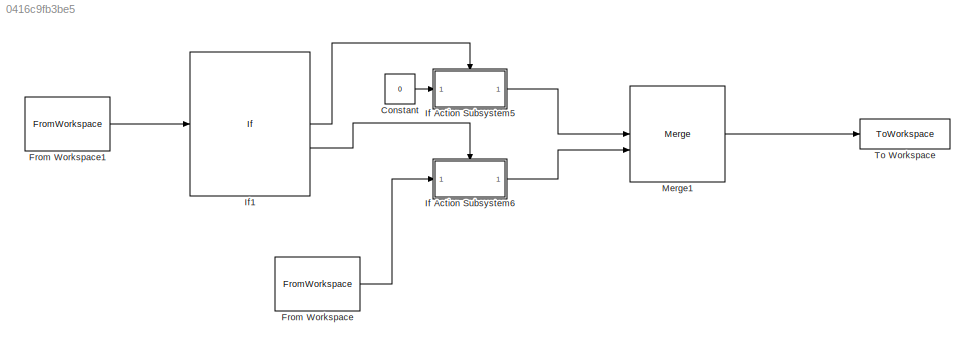
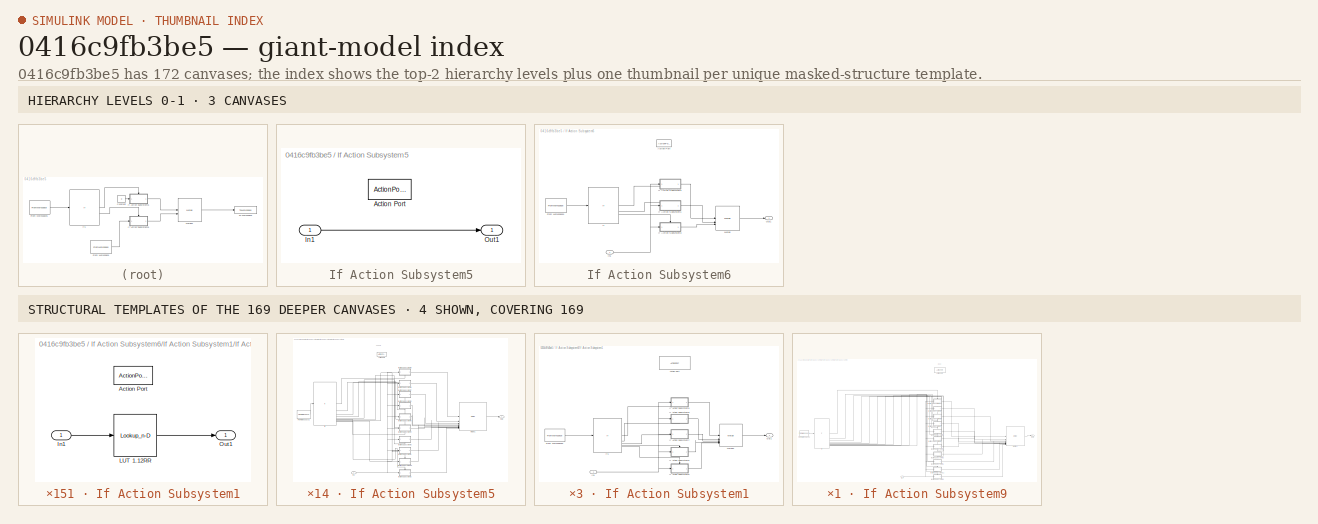
[diagram: thumbnail index - top-2 hierarchy levels (3 canvases) + 4 structural-template representatives of the remaining 169 canvases]
MODEL slx_0416c9fb3be5
KIND model
CONFIG AbsTol = auto
CONFIG EnableMultiTasking = off
CONFIG FixedStep = Timegap
CONFIG MaxStep = auto
CONFIG MinStep = auto
CONFIG RelTol = 1e-3
CONFIG SampleTimeConstraint = Unconstrained
CONFIG SolverName = FixedStepAuto
CONFIG StartTime = 0
CONFIG StopTime = 10.1
WORKSPACE source: mxarray member
WORKSPACE T1_input = 1.34
BLOCK [Constant] Constant
  Value = 0
BLOCK [FromWorkspace] From Workspace
  Interpolate = off
  OutputAfterFinalValue = Setting to zero
  VariableName = SimInputT1
BLOCK [FromWorkspace] From Workspace1
  Interpolate = off
  OutputAfterFinalValue = Setting to zero
  VariableName = SimInputT1
BLOCK [SubSystem] If Action Subsystem5
  TreatAsAtomicUnit = on
BLOCK [ActionPort] If Action Subsystem5/Action Port
  ActionPortLabel = if(u1 == 0)
BLOCK [Inport] If Action Subsystem5/In1
BLOCK [Outport] If Action Subsystem5/Out1
BLOCK [SubSystem] If Action Subsystem6
  TreatAsAtomicUnit = on
BLOCK [ActionPort] If Action Subsystem6/Action Port
  ActionPortLabel = else
BLOCK [FromWorkspace] If Action Subsystem6/From Workspace1
  Interpolate = off
  OutputAfterFinalValue = Setting to zero
  VariableName = SimInputHR
BLOCK [If] If Action Subsystem6/If
  ElseIfExpressions = u1 >= 0.995
  IfExpression = u1 >= 1.495
BLOCK [SubSystem] If Action Subsystem6/If Action Subsystem1
  TreatAsAtomicUnit = on
BLOCK [ActionPort] If Action Subsystem6/If Action Subsystem1/Action Port
  ActionPortLabel = elseif(u1 >= 0.995)
BLOCK [FromWorkspace] If Action Subsystem6/If Action Subsystem1/From Workspace2
  Interpolate = off
  OutputAfterFinalValue = Setting to zero
  VariableName = SimInputHR
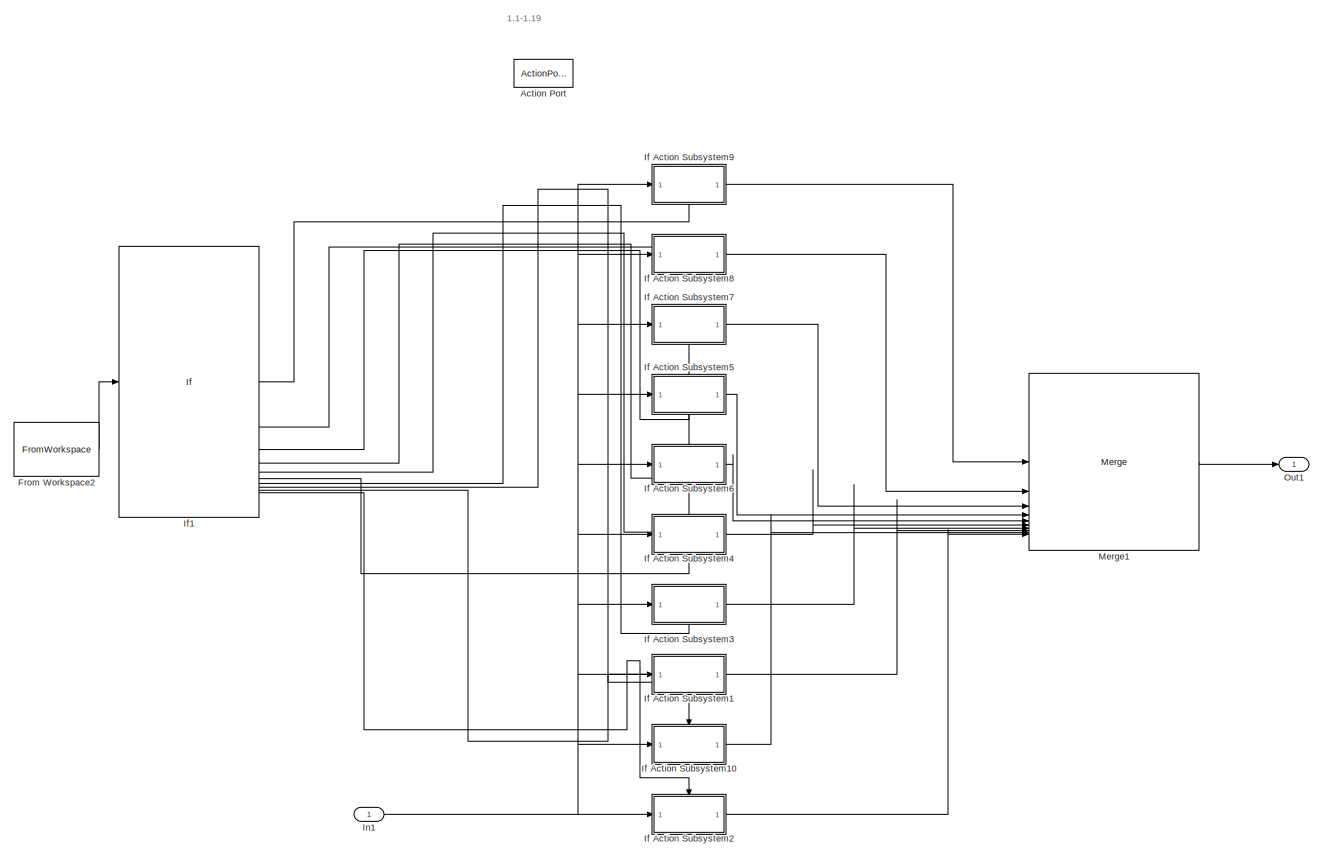
[diagram: If Action Subsystem6/If Action Subsystem1/If Action Subsystem5 - part 1/1, most of the canvas]
BLOCK [SubSystem] If Action Subsystem6/If Action Subsystem1/If Action Subsystem5
  TreatAsAtomicUnit = on
BLOCK [ActionPort] If Action Subsystem6/If Action Subsystem1/If Action Subsystem5/Action Port
  ActionPortLabel = elseif( u1 >= 1.095)
BLOCK [FromWorkspace] If Action Subsystem6/If Action Subsystem1/If Action Subsystem5/From Workspace2
  Interpolate = off
  OutputAfterFinalValue = Setting to zero
  VariableName = SimInputHR
BLOCK [SubSystem] If Action Subsystem6/If Action Subsystem1/If Action Subsystem5/If Action Subsystem1
  TreatAsAtomicUnit = on
BLOCK [ActionPort] If Action Subsystem6/If Action Subsystem1/If Action Subsystem5/If Action Subsystem1/Action Port
  ActionPortLabel = elseif( u1 >= 1.115)
BLOCK [Inport] If Action Subsystem6/If Action Subsystem1/If Action Subsystem5/If Action Subsystem1/In1
BLOCK [Lookup_n-D] If Action Subsystem6/If Action Subsystem1/If Action Subsystem5/If Action Subsystem1/LUT 1.12RR
  BreakpointsForDimension1 = [463.9927;512.1024;609.3708;706.9796;804.4876;901.8858;999.198;1096.446;1193.646;1290.809;1387.943;1485.053;1582.145;1679.221;1776.281;1873.327;1970.357]
  InputPortMap = u0
  InternalRulePriority = Speed
  NumberOfTableDimensions = 1
  RndMeth = Simplest
  Table = [400;500;600;700;800;900;1000;1100;1200;1300;1400;1500;1600;1700;1800;1900;2000]
BLOCK [Outport] If Action Subsystem6/If Action Subsystem1/If Action Subsystem5/If Action Subsystem1/Out1
BLOCK [SubSystem] If Action Subsystem6/If Action Subsystem1/If Action Subsystem5/If Action Subsystem10
  TreatAsAtomicUnit = on
BLOCK [ActionPort] If Action Subsystem6/If Action Subsystem1/If Action Subsystem5/If Action Subsystem10/Action Port
  ActionPortLabel = elseif( u1 >= 1.105)
BLOCK [Inport] If Action Subsystem6/If Action Subsystem1/If Action Subsystem5/If Action Subsystem10/In1
BLOCK [Lookup_n-D] If Action Subsystem6/If Action Subsystem1/If Action Subsystem5/If Action Subsystem10/LUT 1.11RR
  BreakpointsForDimension1 = [464.1685;512.2902;609.641;707.3412;804.9463;902.4451;999.8606;1097.214;1194.52;1291.789;1389.031;1486.25;1583.451;1680.635;1777.804;1874.959;1972.096]
  InputPortMap = u0
  InternalRulePriority = Speed
  NumberOfTableDimensions = 1
  RndMeth = Simplest
  Table = [400;500;600;700;800;900;1000;1100;1200;1300;1400;1500;1600;1700;1800;1900;2000]
BLOCK [Outport] If Action Subsystem6/If Action Subsystem1/If Action Subsystem5/If Action Subsystem10/Out1
BLOCK [SubSystem] If Action Subsystem6/If Action Subsystem1/If Action Subsystem5/If Action Subsystem2
  TreatAsAtomicUnit = on
BLOCK [ActionPort] If Action Subsystem6/If Action Subsystem1/If Action Subsystem5/If Action Subsystem2/Action Port
  ActionPortLabel = else
BLOCK [Inport] If Action Subsystem6/If Action Subsystem1/If Action Subsystem5/If Action Subsystem2/In1
BLOCK [Lookup_n-D] If Action Subsystem6/If Action Subsystem1/If Action Subsystem5/If Action Subsystem2/LUT 1.10RR
  BreakpointsForDimension1 = [464.3473;512.4817;609.9172;707.7112;805.4156;903.0173;1000.538;1097.998;1195.413;1292.792;1390.144;1487.473;1584.785;1682.08;1779.36;1876.625;1973.872]
  InputPortMap = u0
  InternalRulePriority = Speed
  NumberOfTableDimensions = 1
  RndMeth = Simplest
  Table = [400;500;600;700;800;900;1000;1100;1200;1300;1400;1500;1600;1700;1800;1900;2000]
BLOCK [Outport] If Action Subsystem6/If Action Subsystem1/If Action Subsystem5/If Action Subsystem2/Out1
BLOCK [SubSystem] If Action Subsystem6/If Action Subsystem1/If Action Subsystem5/If Action Subsystem3
  TreatAsAtomicUnit = on
BLOCK [ActionPort] If Action Subsystem6/If Action Subsystem1/If Action Subsystem5/If Action Subsystem3/Action Port
  ActionPortLabel = elseif( u1 >= 1.125)
BLOCK [Inport] If Action Subsystem6/If Action Subsystem1/If Action Subsystem5/If Action Subsystem3/In1
BLOCK [Lookup_n-D] If Action Subsystem6/If Action Subsystem1/If Action Subsystem5/If Action Subsystem3/LUT 1.13RR
  BreakpointsForDimension1 = [463.8196;511.9183;609.1066;706.6261;804.0393;901.3389;998.5502;1095.695;1192.791;1289.849;1386.877;1483.882;1580.867;1677.836;1774.79;1871.729;1968.653]
  InputPortMap = u0
  InternalRulePriority = Speed
  NumberOfTableDimensions = 1
  RndMeth = Simplest
  Table = [400;500;600;700;800;900;1000;1100;1200;1300;1400;1500;1600;1700;1800;1900;2000]
BLOCK [Outport] If Action Subsystem6/If Action Subsystem1/If Action Subsystem5/If Action Subsystem3/Out1
BLOCK [SubSystem] If Action Subsystem6/If Action Subsystem1/If Action Subsystem5/If Action Subsystem4
  TreatAsAtomicUnit = on
BLOCK [ActionPort] If Action Subsystem6/If Action Subsystem1/If Action Subsystem5/If Action Subsystem4/Action Port
  ActionPortLabel = elseif( u1 >= 1.135)
BLOCK [Inport] If Action Subsystem6/If Action Subsystem1/If Action Subsystem5/If Action Subsystem4/In1
BLOCK [Lookup_n-D] If Action Subsystem6/If Action Subsystem1/If Action Subsystem5/If Action Subsystem4/LUT 1.14RR
  BreakpointsForDimension1 = [463.6493;511.7378;608.848;706.2804;803.601;900.8043;997.9167;1094.961;1191.955;1288.91;1385.835;1482.735;1579.616;1676.48;1773.329;1870.164;1966.983]
  InputPortMap = u0
  InternalRulePriority = Speed
  NumberOfTableDimensions = 1
  RndMeth = Simplest
  Table = [400;500;600;700;800;900;1000;1100;1200;1300;1400;1500;1600;1700;1800;1900;2000]
BLOCK [Outport] If Action Subsystem6/If Action Subsystem1/If Action Subsystem5/If Action Subsystem4/Out1
BLOCK [SubSystem] If Action Subsystem6/If Action Subsystem1/If Action Subsystem5/If Action Subsystem5
  TreatAsAtomicUnit = on
BLOCK [ActionPort] If Action Subsystem6/If Action Subsystem1/If Action Subsystem5/If Action Subsystem5/Action Port
  ActionPortLabel = elseif( u1 >= 1.155)
BLOCK [Inport] If Action Subsystem6/If Action Subsystem1/If Action Subsystem5/If Action Subsystem5/In1
BLOCK [Lookup_n-D] If Action Subsystem6/If Action Subsystem1/If Action Subsystem5/If Action Subsystem5/LUT 1.16RR
  BreakpointsForDimension1 = [463.3169;511.3872;608.3477;705.6123;802.7538;899.7706;996.6913;1093.541;1190.336;1287.092;1383.815;1480.513;1577.191;1673.851;1770.496;1867.128;1963.744]
  InputPortMap = u0
  InternalRulePriority = Speed
  NumberOfTableDimensions = 1
  RndMeth = Simplest
  Table = [400;500;600;700;800;900;1000;1100;1200;1300;1400;1500;1600;1700;1800;1900;2000]
BLOCK [Outport] If Action Subsystem6/If Action Subsystem1/If Action Subsystem5/If Action Subsystem5/Out1
BLOCK [SubSystem] If Action Subsystem6/If Action Subsystem1/If Action Subsystem5/If Action Subsystem6
  TreatAsAtomicUnit = on
BLOCK [ActionPort] If Action Subsystem6/If Action Subsystem1/If Action Subsystem5/If Action Subsystem6/Action Port
  ActionPortLabel = elseif( u1 >= 1.145)
BLOCK [Inport] If Action Subsystem6/If Action Subsystem1/If Action Subsystem5/If Action Subsystem6/In1
BLOCK [Lookup_n-D] If Action Subsystem6/If Action Subsystem1/If Action Subsystem5/If Action Subsystem6/LUT 1.15RR
  BreakpointsForDimension1 = [463.4817;511.5608;608.5951;705.9426;803.1726;900.2816;997.2972;1094.243;1191.137;1287.991;1384.814;1481.612;1578.391;1675.152;1771.898;1868.63;1965.347]
  InputPortMap = u0
  InternalRulePriority = Speed
  NumberOfTableDimensions = 1
  RndMeth = Simplest
  Table = [400;500;600;700;800;900;1000;1100;1200;1300;1400;1500;1600;1700;1800;1900;2000]
BLOCK [Outport] If Action Subsystem6/If Action Subsystem1/If Action Subsystem5/If Action Subsystem6/Out1
BLOCK [SubSystem] If Action Subsystem6/If Action Subsystem1/If Action Subsystem5/If Action Subsystem7
  TreatAsAtomicUnit = on
BLOCK [ActionPort] If Action Subsystem6/If Action Subsystem1/If Action Subsystem5/If Action Subsystem7/Action Port
  ActionPortLabel = elseif( u1 >= 1.165)
BLOCK [Inport] If Action Subsystem6/If Action Subsystem1/If Action Subsystem5/If Action Subsystem7/In1
BLOCK [Lookup_n-D] If Action Subsystem6/If Action Subsystem1/If Action Subsystem5/If Action Subsystem7/LUT 1.17RR
  BreakpointsForDimension1 = [463.1547;511.217;608.1057;705.2894;802.3443;899.2708;996.0987;1092.853;1189.553;1286.211;1382.837;1479.437;1576.016;1672.577;1769.123;1865.655;1962.173]
  InputPortMap = u0
  InternalRulePriority = Speed
  NumberOfTableDimensions = 1
  RndMeth = Simplest
  Table = [400;500;600;700;800;900;1000;1100;1200;1300;1400;1500;1600;1700;1800;1900;2000]
BLOCK [Outport] If Action Subsystem6/If Action Subsystem1/If Action Subsystem5/If Action Subsystem7/Out1
BLOCK [SubSystem] If Action Subsystem6/If Action Subsystem1/If Action Subsystem5/If Action Subsystem8
  TreatAsAtomicUnit = on
BLOCK [ActionPort] If Action Subsystem6/If Action Subsystem1/If Action Subsystem5/If Action Subsystem8/Action Port
  ActionPortLabel = elseif(u1 >= 1.175)
BLOCK [Inport] If Action Subsystem6/If Action Subsystem1/If Action Subsystem5/If Action Subsystem8/In1
BLOCK [Lookup_n-D] If Action Subsystem6/If Action Subsystem1/If Action Subsystem5/If Action Subsystem8/LUT 1.18RR
  BreakpointsForDimension1 = [462.9951;511.0501;607.869;704.9737;801.944;898.7822;995.5191;1092.181;1188.787;1285.349;1381.879;1478.383;1574.865;1671.329;1767.778;1864.213;1960.634]
  InputPortMap = u0
  InternalRulePriority = Speed
  NumberOfTableDimensions = 1
  RndMeth = Simplest
  Table = [400;500;600;700;800;900;1000;1100;1200;1300;1400;1500;1600;1700;1800;1900;2000]
BLOCK [Outport] If Action Subsystem6/If Action Subsystem1/If Action Subsystem5/If Action Subsystem8/Out1
BLOCK [SubSystem] If Action Subsystem6/If Action Subsystem1/If Action Subsystem5/If Action Subsystem9
  TreatAsAtomicUnit = on
BLOCK [ActionPort] If Action Subsystem6/If Action Subsystem1/If Action Subsystem5/If Action Subsystem9/Action Port
  ActionPortLabel = if(u1 >= 1.185)
BLOCK [Inport] If Action Subsystem6/If Action Subsystem1/If Action Subsystem5/If Action Subsystem9/In1
BLOCK [Lookup_n-D] If Action Subsystem6/If Action Subsystem1/If Action Subsystem5/If Action Subsystem9/LUT 1.19RR
  BreakpointsForDimension1 = [462.8381;510.8865;607.6374;704.665;801.5527;898.3043;994.9521;1091.523;1188.036;1284.506;1380.942;1477.35;1573.737;1670.106;1766.46;1862.799;1959.125]
  InputPortMap = u0
  InternalRulePriority = Speed
  NumberOfTableDimensions = 1
  RndMeth = Simplest
  Table = [400;500;600;700;800;900;1000;1100;1200;1300;1400;1500;1600;1700;1800;1900;2000]
BLOCK [Outport] If Action Subsystem6/If Action Subsystem1/If Action Subsystem5/If Action Subsystem9/Out1
BLOCK [If] If Action Subsystem6/If Action Subsystem1/If Action Subsystem5/If1
  ElseIfExpressions = u1 >= 1.175, u1 >= 1.165, u1 >= 1.155, u1 >= 1.145, u1 >= 1.135, u1 >= 1.125, u1 >= 1.115, u1 >= 1.105
  IfExpression = u1 >= 1.185
BLOCK [Inport] If Action Subsystem6/If Action Subsystem1/If Action Subsystem5/In1
BLOCK [Merge] If Action Subsystem6/If Action Subsystem1/If Action Subsystem5/Merge1
  Inputs = 10
BLOCK [Outport] If Action Subsystem6/If Action Subsystem1/If Action Subsystem5/Out1
BLOCK [SubSystem] If Action Subsystem6/If Action Subsystem1/If Action Subsystem6
  TreatAsAtomicUnit = on
BLOCK [ActionPort] If Action Subsystem6/If Action Subsystem1/If Action Subsystem6/Action Port
  ActionPortLabel = else
BLOCK [FromWorkspace] If Action Subsystem6/If Action Subsystem1/If Action Subsystem6/From Workspace2
  Interpolate = off
  OutputAfterFinalValue = Setting to zero
  VariableName = SimInputHR
BLOCK [SubSystem] If Action Subsystem6/If Action Subsystem1/If Action Subsystem6/If Action Subsystem1
  TreatAsAtomicUnit = on
BLOCK [ActionPort] If Action Subsystem6/If Action Subsystem1/If Action Subsystem6/If Action Subsystem1/Action Port
  ActionPortLabel = elseif( u1 >= 1.015)
BLOCK [Inport] If Action Subsystem6/If Action Subsystem1/If Action Subsystem6/If Action Subsystem1/In1
BLOCK [Lookup_n-D] If Action Subsystem6/If Action Subsystem1/If Action Subsystem6/If Action Subsystem1/LUT 1.02RR
  BreakpointsForDimension1 = [465.8818;514.1538;612.3582;710.9934;809.5822;908.0965;1006.549;1104.954;1203.323;1301.663;1399.981;1498.279;1596.56;1694.825;1793.073;1891.298;1989.483]
  InputPortMap = u0
  InternalRulePriority = Speed
  NumberOfTableDimensions = 1
  RndMeth = Simplest
  Table = [400;500;600;700;800;900;1000;1100;1200;1300;1400;1500;1600;1700;1800;1900;2000]
BLOCK [Outport] If Action Subsystem6/If Action Subsystem1/If Action Subsystem6/If Action Subsystem1/Out1
BLOCK [SubSystem] If Action Subsystem6/If Action Subsystem1/If Action Subsystem6/If Action Subsystem10
  TreatAsAtomicUnit = on
BLOCK [ActionPort] If Action Subsystem6/If Action Subsystem1/If Action Subsystem6/If Action Subsystem10/Action Port
  ActionPortLabel = elseif( u1 >= 1.005)
BLOCK [Inport] If Action Subsystem6/If Action Subsystem1/If Action Subsystem6/If Action Subsystem10/In1
BLOCK [Lookup_n-D] If Action Subsystem6/If Action Subsystem1/If Action Subsystem6/If Action Subsystem10/LUT 1.01RR
  BreakpointsForDimension1 = [466.0869;514.3811;612.6941;711.4469;810.1586;908.7992;1007.38;1105.916;1204.416;1302.888;1401.338;1499.769;1598.183;1696.58;1794.959;1893.314;1991.622]
  InputPortMap = u0
  InternalRulePriority = Speed
  NumberOfTableDimensions = 1
  RndMeth = Simplest
  Table = [400;500;600;700;800;900;1000;1100;1200;1300;1400;1500;1600;1700;1800;1900;2000]
BLOCK [Outport] If Action Subsystem6/If Action Subsystem1/If Action Subsystem6/If Action Subsystem10/Out1
BLOCK [SubSystem] If Action Subsystem6/If Action Subsystem1/If Action Subsystem6/If Action Subsystem2
  TreatAsAtomicUnit = on
BLOCK [ActionPort] If Action Subsystem6/If Action Subsystem1/If Action Subsystem6/If Action Subsystem2/Action Port
  ActionPortLabel = else
BLOCK [Inport] If Action Subsystem6/If Action Subsystem1/If Action Subsystem6/If Action Subsystem2/In1
BLOCK [Lookup_n-D] If Action Subsystem6/If Action Subsystem1/If Action Subsystem6/If Action Subsystem2/LUT 1.00RR
  BreakpointsForDimension1 = [466.295;514.6125;613.0372;711.9107;810.7482;909.518;1008.231;1106.899;1205.533;1304.14;1402.726;1501.292;1599.841;1698.374;1796.887;1895.373;1993.805]
  InputPortMap = u0
  InternalRulePriority = Speed
  NumberOfTableDimensions = 1
  RndMeth = Simplest
  Table = [400;500;600;700;800;900;1000;1100;1200;1300;1400;1500;1600;1700;1800;1900;2000]
BLOCK [Outport] If Action Subsystem6/If Action Subsystem1/If Action Subsystem6/If Action Subsystem2/Out1
BLOCK [SubSystem] If Action Subsystem6/If Action Subsystem1/If Action Subsystem6/If Action Subsystem3
  TreatAsAtomicUnit = on
BLOCK [ActionPort] If Action Subsystem6/If Action Subsystem1/If Action Subsystem6/If Action Subsystem3/Action Port
  ActionPortLabel = elseif( u1 >= 1.025)
BLOCK [Inport] If Action Subsystem6/If Action Subsystem1/If Action Subsystem6/If Action Subsystem3/In1
BLOCK [Lookup_n-D] If Action Subsystem6/If Action Subsystem1/If Action Subsystem6/If Action Subsystem3/LUT 1.03RR
  BreakpointsForDimension1 = [465.6797;513.9306;612.0294;710.55;809.0188;907.4097;1005.737;1104.014;1202.255;1300.466;1398.654;1496.822;1594.973;1693.109;1791.227;1889.324;1987.387]
  InputPortMap = u0
  InternalRulePriority = Speed
  NumberOfTableDimensions = 1
  RndMeth = Simplest
  Table = [400;500;600;700;800;900;1000;1100;1200;1300;1400;1500;1600;1700;1800;1900;2000]
BLOCK [Outport] If Action Subsystem6/If Action Subsystem1/If Action Subsystem6/If Action Subsystem3/Out1
BLOCK [SubSystem] If Action Subsystem6/If Action Subsystem1/If Action Subsystem6/If Action Subsystem4
  TreatAsAtomicUnit = on
BLOCK [ActionPort] If Action Subsystem6/If Action Subsystem1/If Action Subsystem6/If Action Subsystem4/Action Port
  ActionPortLabel = elseif( u1 >= 1.035)
BLOCK [Inport] If Action Subsystem6/If Action Subsystem1/If Action Subsystem6/If Action Subsystem4/In1
BLOCK [Lookup_n-D] If Action Subsystem6/If Action Subsystem1/If Action Subsystem6/If Action Subsystem4/LUT 1.04RR
  BreakpointsForDimension1 = [465.4805;513.7116;611.7076;710.1164;808.4681;906.7384;1004.942;1103.096;1201.21;1299.295;1397.356;1495.397;1593.421;1691.429;1789.421;1887.393;1985.334]
  InputPortMap = u0
  InternalRulePriority = Speed
  NumberOfTableDimensions = 1
  RndMeth = Simplest
  Table = [400;500;600;700;800;900;1000;1100;1200;1300;1400;1500;1600;1700;1800;1900;2000]
BLOCK [Outport] If Action Subsystem6/If Action Subsystem1/If Action Subsystem6/If Action Subsystem4/Out1
BLOCK [SubSystem] If Action Subsystem6/If Action Subsystem1/If Action Subsystem6/If Action Subsystem5
  TreatAsAtomicUnit = on
BLOCK [ActionPort] If Action Subsystem6/If Action Subsystem1/If Action Subsystem6/If Action Subsystem5/Action Port
  ActionPortLabel = elseif( u1 >= 1.055)
BLOCK [Inport] If Action Subsystem6/If Action Subsystem1/If Action Subsystem6/If Action Subsystem5/In1
BLOCK [Lookup_n-D] If Action Subsystem6/If Action Subsystem1/If Action Subsystem6/If Action Subsystem5/LUT 1.06RR
  BreakpointsForDimension1 = [465.091;513.2858;611.0845;709.278;807.4037;905.441;1003.407;1101.319;1199.191;1297.031;1394.845;1492.639;1590.416;1688.177;1785.923;1883.65;1981.353]
  InputPortMap = u0
  InternalRulePriority = Speed
  NumberOfTableDimensions = 1
  RndMeth = Simplest
  Table = [400;500;600;700;800;900;1000;1100;1200;1300;1400;1500;1600;1700;1800;1900;2000]
BLOCK [Outport] If Action Subsystem6/If Action Subsystem1/If Action Subsystem6/If Action Subsystem5/Out1
BLOCK [SubSystem] If Action Subsystem6/If Action Subsystem1/If Action Subsystem6/If Action Subsystem6
  TreatAsAtomicUnit = on
BLOCK [ActionPort] If Action Subsystem6/If Action Subsystem1/If Action Subsystem6/If Action Subsystem6/Action Port
  ActionPortLabel = elseif( u1 >= 1.045)
BLOCK [Inport] If Action Subsystem6/If Action Subsystem1/If Action Subsystem6/If Action Subsystem6/In1
BLOCK [Lookup_n-D] If Action Subsystem6/If Action Subsystem1/If Action Subsystem6/If Action Subsystem6/LUT 1.05RR
  BreakpointsForDimension1 = [465.2843;513.4967;611.3927;709.6925;807.9298;906.0823;1004.166;1102.198;1200.189;1298.15;1396.087;1494.003;1591.902;1689.785;1787.653;1885.502;1983.323]
  InputPortMap = u0
  InternalRulePriority = Speed
  NumberOfTableDimensions = 1
  RndMeth = Simplest
  Table = [400;500;600;700;800;900;1000;1100;1200;1300;1400;1500;1600;1700;1800;1900;2000]
BLOCK [Outport] If Action Subsystem6/If Action Subsystem1/If Action Subsystem6/If Action Subsystem6/Out1
BLOCK [SubSystem] If Action Subsystem6/If Action Subsystem1/If Action Subsystem6/If Action Subsystem7
  TreatAsAtomicUnit = on
BLOCK [ActionPort] If Action Subsystem6/If Action Subsystem1/If Action Subsystem6/If Action Subsystem7/Action Port
  ActionPortLabel = elseif( u1 >= 1.065)
BLOCK [Inport] If Action Subsystem6/If Action Subsystem1/If Action Subsystem6/If Action Subsystem7/In1
BLOCK [Lookup_n-D] If Action Subsystem6/If Action Subsystem1/If Action Subsystem6/If Action Subsystem7/LUT 1.07RR
  BreakpointsForDimension1 = [464.9007;513.0789;610.783;708.8729;806.8895;904.8142;1002.665;1100.461;1198.214;1295.935;1393.631;1491.305;1588.962;1686.603;1784.229;1881.838;1979.424]
  InputPortMap = u0
  InternalRulePriority = Speed
  NumberOfTableDimensions = 1
  RndMeth = Simplest
  Table = [400;500;600;700;800;900;1000;1100;1200;1300;1400;1500;1600;1700;1800;1900;2000]
BLOCK [Outport] If Action Subsystem6/If Action Subsystem1/If Action Subsystem6/If Action Subsystem7/Out1
BLOCK [SubSystem] If Action Subsystem6/If Action Subsystem1/If Action Subsystem6/If Action Subsystem8
  TreatAsAtomicUnit = on
BLOCK [ActionPort] If Action Subsystem6/If Action Subsystem1/If Action Subsystem6/If Action Subsystem8/Action Port
  ActionPortLabel = elseif(u1 >= 1.075)
BLOCK [Inport] If Action Subsystem6/If Action Subsystem1/If Action Subsystem6/If Action Subsystem8/In1
BLOCK [Lookup_n-D] If Action Subsystem6/If Action Subsystem1/If Action Subsystem6/If Action Subsystem8/LUT 1.08RR
  BreakpointsForDimension1 = [464.7133;512.876;610.4881;708.4768;806.3869;904.2015;1001.94;1099.622;1197.26;1294.864;1392.443;1490;1587.539;1685.063;1782.571;1880.063;1977.535]
  InputPortMap = u0
  InternalRulePriority = Speed
  NumberOfTableDimensions = 1
  RndMeth = Simplest
  Table = [400;500;600;700;800;900;1000;1100;1200;1300;1400;1500;1600;1700;1800;1900;2000]
BLOCK [Outport] If Action Subsystem6/If Action Subsystem1/If Action Subsystem6/If Action Subsystem8/Out1
BLOCK [SubSystem] If Action Subsystem6/If Action Subsystem1/If Action Subsystem6/If Action Subsystem9
  TreatAsAtomicUnit = on
BLOCK [ActionPort] If Action Subsystem6/If Action Subsystem1/If Action Subsystem6/If Action Subsystem9/Action Port
  ActionPortLabel = if(u1 >= 1.085)
BLOCK [Inport] If Action Subsystem6/If Action Subsystem1/If Action Subsystem6/If Action Subsystem9/In1
BLOCK [Lookup_n-D] If Action Subsystem6/If Action Subsystem1/If Action Subsystem6/If Action Subsystem9/LUT 1.09RR
  BreakpointsForDimension1 = [412.0667;553.6807;651.0883;748.3345;845.4429;942.4605;1039.419;1136.338;1233.23;1330.102;1426.961;1523.81;1620.651;1717.486;1814.317;1911.142;2007.964]
  InputPortMap = u0
  InternalRulePriority = Speed
  NumberOfTableDimensions = 1
  RndMeth = Simplest
  Table = [464.5288;512.6769;610.1995;708.0897;805.8957;903.6027;1001.231;1098.801;1196.326;1293.817;1391.281;1488.723;1586.147;1683.555;1780.949;1878.326;1975.684]
BLOCK [Outport] If Action Subsystem6/If Action Subsystem1/If Action Subsystem6/If Action Subsystem9/Out1
BLOCK [If] If Action Subsystem6/If Action Subsystem1/If Action Subsystem6/If1
  ElseIfExpressions = u1 >= 1.075, u1 >= 1.065, u1 >= 1.055, u1 >= 1.045, u1 >= 1.035, u1 >= 1.025, u1 >= 1.015, u1 >= 1.005
  IfExpression = u1 >= 1.085
BLOCK [Inport] If Action Subsystem6/If Action Subsystem1/If Action Subsystem6/In1
BLOCK [Merge] If Action Subsystem6/If Action Subsystem1/If Action Subsystem6/Merge1
  Inputs = 10
BLOCK [Outport] If Action Subsystem6/If Action Subsystem1/If Action Subsystem6/Out1
BLOCK [SubSystem] If Action Subsystem6/If Action Subsystem1/If Action Subsystem7
  TreatAsAtomicUnit = on
BLOCK [ActionPort] If Action Subsystem6/If Action Subsystem1/If Action Subsystem7/Action Port
  ActionPortLabel = elseif( u1 >= 1.195)
BLOCK [FromWorkspace] If Action Subsystem6/If Action Subsystem1/If Action Subsystem7/From Workspace2
  Interpolate = off
  OutputAfterFinalValue = Setting to zero
  VariableName = SimInputHR
BLOCK [SubSystem] If Action Subsystem6/If Action Subsystem1/If Action Subsystem7/If Action Subsystem1
  TreatAsAtomicUnit = on
BLOCK [ActionPort] If Action Subsystem6/If Action Subsystem1/If Action Subsystem7/If Action Subsystem1/Action Port
  ActionPortLabel = elseif( u1 >= 1.215)
BLOCK [Inport] If Action Subsystem6/If Action Subsystem1/If Action Subsystem7/If Action Subsystem1/In1
BLOCK [Lookup_n-D] If Action Subsystem6/If Action Subsystem1/If Action Subsystem7/If Action Subsystem1/LUT 1.22RR
  BreakpointsForDimension1 = [462.3821;510.4145;606.9721;703.7795;800.4299;896.9327;993.3239;1089.632;1185.879;1282.079;1378.243;1474.378;1570.491;1666.584;1762.661;1858.723;1954.773]
  InputPortMap = u0
  InternalRulePriority = Speed
  NumberOfTableDimensions = 1
  RndMeth = Simplest
  Table = [400;500;600;700;800;900;1000;1100;1200;1300;1400;1500;1600;1700;1800;1900;2000]
BLOCK [Outport] If Action Subsystem6/If Action Subsystem1/If Action Subsystem7/If Action Subsystem1/Out1
BLOCK [SubSystem] If Action Subsystem6/If Action Subsystem1/If Action Subsystem7/If Action Subsystem10
  TreatAsAtomicUnit = on
BLOCK [ActionPort] If Action Subsystem6/If Action Subsystem1/If Action Subsystem7/If Action Subsystem10/Action Port
  ActionPortLabel = elseif( u1 >= 1.205)
BLOCK [Inport] If Action Subsystem6/If Action Subsystem1/If Action Subsystem7/If Action Subsystem10/In1
BLOCK [Lookup_n-D] If Action Subsystem6/If Action Subsystem1/If Action Subsystem7/If Action Subsystem10/LUT 1.21RR
  BreakpointsForDimension1 = [462.5316;510.5687;607.1891;704.0681;800.7958;897.3798;993.8548;1090.249;1186.583;1282.871;1379.124;1475.349;1571.551;1667.734;1763.902;1860.055;1956.195]
  InputPortMap = u0
  InternalRulePriority = Speed
  NumberOfTableDimensions = 1
  RndMeth = Simplest
  Table = [400;500;600;700;800;900;1000;1100;1200;1300;1400;1500;1600;1700;1800;1900;2000]
BLOCK [Outport] If Action Subsystem6/If Action Subsystem1/If Action Subsystem7/If Action Subsystem10/Out1
BLOCK [SubSystem] If Action Subsystem6/If Action Subsystem1/If Action Subsystem7/If Action Subsystem2
  TreatAsAtomicUnit = on
BLOCK [ActionPort] If Action Subsystem6/If Action Subsystem1/If Action Subsystem7/If Action Subsystem2/Action Port
  ActionPortLabel = else
BLOCK [Inport] If Action Subsystem6/If Action Subsystem1/If Action Subsystem7/If Action Subsystem2/In1
BLOCK [Lookup_n-D] If Action Subsystem6/If Action Subsystem1/If Action Subsystem7/If Action Subsystem2/LUT 1.20RR
  BreakpointsForDimension1 = [462.6836;510.7261;607.4108;704.3632;801.17;897.8369;994.3974;1090.879;1187.302;1283.68;1380.023;1476.339;1572.633;1668.908;1765.168;1861.413;1957.645]
  InputPortMap = u0
  InternalRulePriority = Speed
  NumberOfTableDimensions = 1
  RndMeth = Simplest
  Table = [400;500;600;700;800;900;1000;1100;1200;1300;1400;1500;1600;1700;1800;1900;2000]
BLOCK [Outport] If Action Subsystem6/If Action Subsystem1/If Action Subsystem7/If Action Subsystem2/Out1
BLOCK [SubSystem] If Action Subsystem6/If Action Subsystem1/If Action Subsystem7/If Action Subsystem3
  TreatAsAtomicUnit = on
BLOCK [ActionPort] If Action Subsystem6/If Action Subsystem1/If Action Subsystem7/If Action Subsystem3/Action Port
  ActionPortLabel = elseif( u1 >= 1.225)
BLOCK [Inport] If Action Subsystem6/If Action Subsystem1/If Action Subsystem7/If Action Subsystem3/In1
BLOCK [Lookup_n-D] If Action Subsystem6/If Action Subsystem1/If Action Subsystem7/If Action Subsystem3/LUT 1.23RR
  BreakpointsForDimension1 = [462.235;510.2632;606.7599;703.4974;800.072;896.4954;992.8044;1089.029;1185.19;1281.304;1377.38;1473.428;1569.452;1665.456;1761.444;1857.418;1953.378]
  InputPortMap = u0
  InternalRulePriority = Speed
  NumberOfTableDimensions = 1
  RndMeth = Simplest
  Table = [400;500;600;700;800;900;1000;1100;1200;1300;1400;1500;1600;1700;1800;1900;2000]
BLOCK [Outport] If Action Subsystem6/If Action Subsystem1/If Action Subsystem7/If Action Subsystem3/Out1
BLOCK [SubSystem] If Action Subsystem6/If Action Subsystem1/If Action Subsystem7/If Action Subsystem4
  TreatAsAtomicUnit = on
BLOCK [ActionPort] If Action Subsystem6/If Action Subsystem1/If Action Subsystem7/If Action Subsystem4/Action Port
  ActionPortLabel = elseif( u1 >= 1.235)
BLOCK [Inport] If Action Subsystem6/If Action Subsystem1/If Action Subsystem7/If Action Subsystem4/In1
BLOCK [Lookup_n-D] If Action Subsystem6/If Action Subsystem1/If Action Subsystem7/If Action Subsystem4/LUT 1.24RR
  BreakpointsForDimension1 = [462.0903;510.1148;606.5523;703.2214;799.7221;896.0676;992.296;1088.438;1184.516;1280.544;1376.535;1472.496;1568.433;1664.351;1760.251;1856.137;1952.01]
  InputPortMap = u0
  InternalRulePriority = Speed
  NumberOfTableDimensions = 1
  RndMeth = Simplest
  Table = [400;500;600;700;800;900;1000;1100;1200;1300;1400;1500;1600;1700;1800;1900;2000]
BLOCK [Outport] If Action Subsystem6/If Action Subsystem1/If Action Subsystem7/If Action Subsystem4/Out1
BLOCK [SubSystem] If Action Subsystem6/If Action Subsystem1/If Action Subsystem7/If Action Subsystem5
  TreatAsAtomicUnit = on
BLOCK [ActionPort] If Action Subsystem6/If Action Subsystem1/If Action Subsystem7/If Action Subsystem5/Action Port
  ActionPortLabel = elseif( u1 >= 1.255)
BLOCK [Inport] If Action Subsystem6/If Action Subsystem1/If Action Subsystem7/If Action Subsystem5/In1
BLOCK [Lookup_n-D] If Action Subsystem6/If Action Subsystem1/If Action Subsystem7/If Action Subsystem5/LUT 1.26RR
  BreakpointsForDimension1 = [461.8078;509.8267;606.1502;702.6876;799.045;895.2396;991.3117;1087.293;1183.208;1279.071;1374.896;1470.689;1566.457;1662.204;1757.935;1853.651;1949.353]
  InputPortMap = u0
  InternalRulePriority = Speed
  NumberOfTableDimensions = 1
  RndMeth = Simplest
  Table = [400;500;600;700;800;900;1000;1100;1200;1300;1400;1500;1600;1700;1800;1900;2000]
BLOCK [Outport] If Action Subsystem6/If Action Subsystem1/If Action Subsystem7/If Action Subsystem5/Out1
BLOCK [SubSystem] If Action Subsystem6/If Action Subsystem1/If Action Subsystem7/If Action Subsystem6
  TreatAsAtomicUnit = on
BLOCK [ActionPort] If Action Subsystem6/If Action Subsystem1/If Action Subsystem7/If Action Subsystem6/Action Port
  ActionPortLabel = elseif( u1 >= 1.245)
BLOCK [Inport] If Action Subsystem6/If Action Subsystem1/If Action Subsystem7/If Action Subsystem6/In1
BLOCK [Lookup_n-D] If Action Subsystem6/If Action Subsystem1/If Action Subsystem7/If Action Subsystem6/LUT 1.25RR
  BreakpointsForDimension1 = [461.9479;509.9694;606.349;702.9515;799.3798;895.6491;991.7985;1087.86;1183.855;1279.8;1375.707;1471.583;1567.435;1663.267;1759.082;1854.882;1950.669]
  InputPortMap = u0
  InternalRulePriority = Speed
  NumberOfTableDimensions = 1
  RndMeth = Simplest
  Table = [400;500;600;700;800;900;1000;1100;1200;1300;1400;1500;1600;1700;1800;1900;2000]
BLOCK [Outport] If Action Subsystem6/If Action Subsystem1/If Action Subsystem7/If Action Subsystem6/Out1
BLOCK [SubSystem] If Action Subsystem6/If Action Subsystem1/If Action Subsystem7/If Action Subsystem7
  TreatAsAtomicUnit = on
BLOCK [ActionPort] If Action Subsystem6/If Action Subsystem1/If Action Subsystem7/If Action Subsystem7/Action Port
  ActionPortLabel = elseif( u1 >= 1.265)
BLOCK [Inport] If Action Subsystem6/If Action Subsystem1/If Action Subsystem7/If Action Subsystem7/In1
BLOCK [Lookup_n-D] If Action Subsystem6/If Action Subsystem1/If Action Subsystem7/If Action Subsystem7/LUT 1.27RR
  BreakpointsForDimension1 = [461.6699;509.6867;605.9556;702.4294;798.7176;894.839;990.8352;1086.739;1182.574;1278.357;1374.1;1469.812;1565.498;1661.163;1756.81;1852.443;1948.062]
  InputPortMap = u0
  InternalRulePriority = Speed
  NumberOfTableDimensions = 1
  RndMeth = Simplest
  Table = [400;500;600;700;800;900;1000;1100;1200;1300;1400;1500;1600;1700;1800;1900;2000]
BLOCK [Outport] If Action Subsystem6/If Action Subsystem1/If Action Subsystem7/If Action Subsystem7/Out1
BLOCK [SubSystem] If Action Subsystem6/If Action Subsystem1/If Action Subsystem7/If Action Subsystem8
  TreatAsAtomicUnit = on
BLOCK [ActionPort] If Action Subsystem6/If Action Subsystem1/If Action Subsystem7/If Action Subsystem8/Action Port
  ActionPortLabel = elseif(u1 >= 1.275)
BLOCK [Inport] If Action Subsystem6/If Action Subsystem1/If Action Subsystem7/If Action Subsystem8/In1
BLOCK [Lookup_n-D] If Action Subsystem6/If Action Subsystem1/If Action Subsystem7/If Action Subsystem8/LUT 1.28RR
  BreakpointsForDimension1 = [461.5343;509.5495;605.7652;702.1769;798.3973;894.447;990.3687;1086.196;1181.954;1277.658;1373.321;1468.952;1564.557;1660.141;1755.707;1851.258;1946.796]
  InputPortMap = u0
  InternalRulePriority = Speed
  NumberOfTableDimensions = 1
  RndMeth = Simplest
  Table = [400;500;600;700;800;900;1000;1100;1200;1300;1400;1500;1600;1700;1800;1900;2000]
BLOCK [Outport] If Action Subsystem6/If Action Subsystem1/If Action Subsystem7/If Action Subsystem8/Out1
BLOCK [SubSystem] If Action Subsystem6/If Action Subsystem1/If Action Subsystem7/If Action Subsystem9
  TreatAsAtomicUnit = on
BLOCK [ActionPort] If Action Subsystem6/If Action Subsystem1/If Action Subsystem7/If Action Subsystem9/Action Port
  ActionPortLabel = if(u1 >= 1.285)
BLOCK [Inport] If Action Subsystem6/If Action Subsystem1/If Action Subsystem7/If Action Subsystem9/In1
BLOCK [Lookup_n-D] If Action Subsystem6/If Action Subsystem1/If Action Subsystem7/If Action Subsystem9/LUT 1.29RR
  BreakpointsForDimension1 = [461.4008;509.4148;605.5788;701.9299;798.084;894.0634;989.9122;1085.665;1181.346;1276.973;1372.558;1468.11;1563.635;1659.139;1754.625;1850.096;1945.553]
  InputPortMap = u0
  InternalRulePriority = Speed
  NumberOfTableDimensions = 1
  RndMeth = Simplest
  Table = [400;500;600;700;800;900;1000;1100;1200;1300;1400;1500;1600;1700;1800;1900;2000]
BLOCK [Outport] If Action Subsystem6/If Action Subsystem1/If Action Subsystem7/If Action Subsystem9/Out1
BLOCK [If] If Action Subsystem6/If Action Subsystem1/If Action Subsystem7/If1
  ElseIfExpressions = u1 >= 1.275, u1 >= 1.265, u1 >= 1.255, u1 >= 1.245, u1 >= 1.235, u1 >= 1.225, u1 >= 1.215, u1 >= 1.205
  IfExpression = u1 >= 1.285
BLOCK [Inport] If Action Subsystem6/If Action Subsystem1/If Action Subsystem7/In2
BLOCK [Merge] If Action Subsystem6/If Action Subsystem1/If Action Subsystem7/Merge1
  Inputs = 10
BLOCK [Outport] If Action Subsystem6/If Action Subsystem1/If Action Subsystem7/Out2
BLOCK [SubSystem] If Action Subsystem6/If Action Subsystem1/If Action Subsystem8
  TreatAsAtomicUnit = on
BLOCK [ActionPort] If Action Subsystem6/If Action Subsystem1/If Action Subsystem8/Action Port
  ActionPortLabel = elseif(u1 >= 1.295)
BLOCK [FromWorkspace] If Action Subsystem6/If Action Subsystem1/If Action Subsystem8/From Workspace2
  Interpolate = off
  OutputAfterFinalValue = Setting to zero
  VariableName = SimInputHR
BLOCK [SubSystem] If Action Subsystem6/If Action Subsystem1/If Action Subsystem8/If Action Subsystem1
  TreatAsAtomicUnit = on
BLOCK [ActionPort] If Action Subsystem6/If Action Subsystem1/If Action Subsystem8/If Action Subsystem1/Action Port
  ActionPortLabel = elseif( u1 >= 1.315)
BLOCK [Inport] If Action Subsystem6/If Action Subsystem1/If Action Subsystem8/If Action Subsystem1/In1
BLOCK [Lookup_n-D] If Action Subsystem6/If Action Subsystem1/If Action Subsystem8/If Action Subsystem1/LUT 1.32RR
  BreakpointsForDimension1 = [461.0128;509.0261;605.043;701.2207;797.1841;892.9612;988.5993;1084.135;1179.595;1274.998;1370.356;1465.679;1560.975;1656.247;1751.501;1846.739;1941.963]
  InputPortMap = u0
  InternalRulePriority = Speed
  NumberOfTableDimensions = 1
  RndMeth = Simplest
  Table = [400;500;600;700;800;900;1000;1100;1200;1300;1400;1500;1600;1700;1800;1900;2000]
BLOCK [Outport] If Action Subsystem6/If Action Subsystem1/If Action Subsystem8/If Action Subsystem1/Out1
BLOCK [SubSystem] If Action Subsystem6/If Action Subsystem1/If Action Subsystem8/If Action Subsystem10
  TreatAsAtomicUnit = on
BLOCK [ActionPort] If Action Subsystem6/If Action Subsystem1/If Action Subsystem8/If Action Subsystem10/Action Port
  ActionPortLabel = elseif( u1 >= 1.305)
BLOCK [Inport] If Action Subsystem6/If Action Subsystem1/If Action Subsystem8/If Action Subsystem10/In1
BLOCK [Lookup_n-D] If Action Subsystem6/If Action Subsystem1/If Action Subsystem8/If Action Subsystem10/LUT 1.31RR
  BreakpointsForDimension1 = [461.1401;509.1532;605.2178;701.452;797.4775;893.3207;989.0277;1084.635;1180.167;1275.643;1371.075;1466.474;1561.844;1657.193;1752.523;1847.837;1943.137]
  InputPortMap = u0
  InternalRulePriority = Speed
  NumberOfTableDimensions = 1
  RndMeth = Simplest
  Table = [400;500;600;700;800;900;1000;1100;1200;1300;1400;1500;1600;1700;1800;1900;2000]
BLOCK [Outport] If Action Subsystem6/If Action Subsystem1/If Action Subsystem8/If Action Subsystem10/Out1
BLOCK [SubSystem] If Action Subsystem6/If Action Subsystem1/If Action Subsystem8/If Action Subsystem2
  TreatAsAtomicUnit = on
BLOCK [ActionPort] If Action Subsystem6/If Action Subsystem1/If Action Subsystem8/If Action Subsystem2/Action Port
  ActionPortLabel = else
BLOCK [Inport] If Action Subsystem6/If Action Subsystem1/If Action Subsystem8/If Action Subsystem2/In1
BLOCK [Lookup_n-D] If Action Subsystem6/If Action Subsystem1/If Action Subsystem8/If Action Subsystem2/LUT 1.30RR
  BreakpointsForDimension1 = [461.2694;509.2828;605.3963;701.6863;797.7774;893.688;989.4652;1085.144;1180.75;1276.301;1371.809;1467.283;1562.731;1658.157;1753.564;1848.956;1944.334]
  InputPortMap = u0
  InternalRulePriority = Speed
  NumberOfTableDimensions = 1
  RndMeth = Simplest
  Table = [400;500;600;700;800;900;1000;1100;1200;1300;1400;1500;1600;1700;1800;1900;2000]
BLOCK [Outport] If Action Subsystem6/If Action Subsystem1/If Action Subsystem8/If Action Subsystem2/Out1
BLOCK [SubSystem] If Action Subsystem6/If Action Subsystem1/If Action Subsystem8/If Action Subsystem3
  TreatAsAtomicUnit = on
BLOCK [ActionPort] If Action Subsystem6/If Action Subsystem1/If Action Subsystem8/If Action Subsystem3/Action Port
  ActionPortLabel = elseif( u1 >= 1.325)
BLOCK [Inport] If Action Subsystem6/If Action Subsystem1/If Action Subsystem8/If Action Subsystem3/In1
BLOCK [Lookup_n-D] If Action Subsystem6/If Action Subsystem1/If Action Subsystem8/If Action Subsystem3/LUT 1.33RR
  BreakpointsForDimension1 = [460.8876;508.9014;604.8719;700.9945;796.897;892.6093;988.1798;1083.646;1179.035;1274.366;1369.651;1464.9;1560.122;1655.32;1750.499;1845.662;1940.81]
  InputPortMap = u0
  InternalRulePriority = Speed
  NumberOfTableDimensions = 1
  RndMeth = Simplest
  Table = [400;500;600;700;800;900;1000;1100;1200;1300;1400;1500;1600;1700;1800;1900;2000]
BLOCK [Outport] If Action Subsystem6/If Action Subsystem1/If Action Subsystem8/If Action Subsystem3/Out1
BLOCK [SubSystem] If Action Subsystem6/If Action Subsystem1/If Action Subsystem8/If Action Subsystem4
  TreatAsAtomicUnit = on
BLOCK [ActionPort] If Action Subsystem6/If Action Subsystem1/If Action Subsystem8/If Action Subsystem4/Action Port
  ActionPortLabel = elseif( u1 >= 1.335)
BLOCK [Inport] If Action Subsystem6/If Action Subsystem1/If Action Subsystem8/If Action Subsystem4/In1
BLOCK [Lookup_n-D] If Action Subsystem6/If Action Subsystem1/If Action Subsystem8/If Action Subsystem4/LUT 1.34RR
  BreakpointsForDimension1 = [460.7643;508.779;604.7044;700.7732;796.6161;892.2649;987.7691;1083.167;1178.486;1273.746;1368.959;1464.137;1559.285;1654.41;1749.515;1844.604;1939.678]
  InputPortMap = u0
  InternalRulePriority = Speed
  NumberOfTableDimensions = 1
  RndMeth = Simplest
  Table = [400;500;600;700;800;900;1000;1100;1200;1300;1400;1500;1600;1700;1800;1900;2000]
BLOCK [Outport] If Action Subsystem6/If Action Subsystem1/If Action Subsystem8/If Action Subsystem4/Out1
BLOCK [SubSystem] If Action Subsystem6/If Action Subsystem1/If Action Subsystem8/If Action Subsystem5
  TreatAsAtomicUnit = on
BLOCK [ActionPort] If Action Subsystem6/If Action Subsystem1/If Action Subsystem8/If Action Subsystem5/Action Port
  ActionPortLabel = elseif( u1 >= 1.355)
BLOCK [Inport] If Action Subsystem6/If Action Subsystem1/If Action Subsystem8/If Action Subsystem5/In1
BLOCK [Lookup_n-D] If Action Subsystem6/If Action Subsystem1/If Action Subsystem8/If Action Subsystem5/LUT 1.36RR
  BreakpointsForDimension1 = [460.5234;508.5411;604.3798;700.3447;796.0723;891.5977;986.9731;1082.238;1177.422;1272.543;1367.616;1462.652;1557.658;1652.64;1747.602;1842.547;1937.477]
  InputPortMap = u0
  InternalRulePriority = Speed
  NumberOfTableDimensions = 1
  RndMeth = Simplest
  Table = [400;500;600;700;800;900;1000;1100;1200;1300;1400;1500;1600;1700;1800;1900;2000]
BLOCK [Outport] If Action Subsystem6/If Action Subsystem1/If Action Subsystem8/If Action Subsystem5/Out1
BLOCK [SubSystem] If Action Subsystem6/If Action Subsystem1/If Action Subsystem8/If Action Subsystem6
  TreatAsAtomicUnit = on
BLOCK [ActionPort] If Action Subsystem6/If Action Subsystem1/If Action Subsystem8/If Action Subsystem6/Action Port
  ActionPortLabel = elseif( u1 >= 1.345)
BLOCK [Inport] If Action Subsystem6/If Action Subsystem1/If Action Subsystem8/If Action Subsystem6/In1
BLOCK [Lookup_n-D] If Action Subsystem6/If Action Subsystem1/If Action Subsystem8/If Action Subsystem6/LUT 1.35RR
  BreakpointsForDimension1 = [460.6429;508.6589;604.5404;700.5566;796.3413;891.9277;987.3669;1082.698;1177.949;1273.138;1368.281;1463.387;1558.464;1653.517;1748.55;1843.566;1938.567]
  InputPortMap = u0
  InternalRulePriority = Speed
  NumberOfTableDimensions = 1
  RndMeth = Simplest
  Table = [400;500;600;700;800;900;1000;1100;1200;1300;1400;1500;1600;1700;1800;1900;2000]
BLOCK [Outport] If Action Subsystem6/If Action Subsystem1/If Action Subsystem8/If Action Subsystem6/Out1
BLOCK [SubSystem] If Action Subsystem6/If Action Subsystem1/If Action Subsystem8/If Action Subsystem7
  TreatAsAtomicUnit = on
BLOCK [ActionPort] If Action Subsystem6/If Action Subsystem1/If Action Subsystem8/If Action Subsystem7/Action Port
  ActionPortLabel = elseif( u1 >= 1.365)
BLOCK [Inport] If Action Subsystem6/If Action Subsystem1/If Action Subsystem8/If Action Subsystem7/In1
BLOCK [Lookup_n-D] If Action Subsystem6/If Action Subsystem1/If Action Subsystem8/If Action Subsystem7/LUT 1.37RR
  BreakpointsForDimension1 = [460.4057;508.4254;604.2226;700.1373;795.809;891.2746;986.5873;1081.788;1176.905;1271.959;1366.964;1461.932;1556.868;1651.78;1746.672;1841.546;1936.405]
  InputPortMap = u0
  InternalRulePriority = Speed
  NumberOfTableDimensions = 1
  RndMeth = Simplest
  Table = [400;500;600;700;800;900;1000;1100;1200;1300;1400;1500;1600;1700;1800;1900;2000]
BLOCK [Outport] If Action Subsystem6/If Action Subsystem1/If Action Subsystem8/If Action Subsystem7/Out1
BLOCK [SubSystem] If Action Subsystem6/If Action Subsystem1/If Action Subsystem8/If Action Subsystem8
  TreatAsAtomicUnit = on
BLOCK [ActionPort] If Action Subsystem6/If Action Subsystem1/If Action Subsystem8/If Action Subsystem8/Action Port
  ActionPortLabel = elseif(u1 >= 1.375)
BLOCK [Inport] If Action Subsystem6/If Action Subsystem1/If Action Subsystem8/If Action Subsystem8/In1
BLOCK [Lookup_n-D] If Action Subsystem6/If Action Subsystem1/If Action Subsystem8/If Action Subsystem8/LUT 1.38RR
  BreakpointsForDimension1 = [460.2899;508.3119;604.0687;699.9344;795.5514;890.9583;986.2096;1081.347;1176.399;1271.386;1366.325;1461.224;1556.093;1650.936;1745.758;1840.564;1935.354]
  InputPortMap = u0
  InternalRulePriority = Speed
  NumberOfTableDimensions = 1
  RndMeth = Simplest
  Table = [400;500;600;700;800;900;1000;1100;1200;1300;1400;1500;1600;1700;1800;1900;2000]
BLOCK [Outport] If Action Subsystem6/If Action Subsystem1/If Action Subsystem8/If Action Subsystem8/Out1
BLOCK [SubSystem] If Action Subsystem6/If Action Subsystem1/If Action Subsystem8/If Action Subsystem9
  TreatAsAtomicUnit = on
BLOCK [ActionPort] If Action Subsystem6/If Action Subsystem1/If Action Subsystem8/If Action Subsystem9/Action Port
  ActionPortLabel = if(u1 >= 1.385)
BLOCK [Inport] If Action Subsystem6/If Action Subsystem1/If Action Subsystem8/If Action Subsystem9/In1
BLOCK [Lookup_n-D] If Action Subsystem6/If Action Subsystem1/If Action Subsystem8/If Action Subsystem9/LUT 1.39RR
  BreakpointsForDimension1 = [460.1758;508.2005;603.9179;699.7359;795.2993;890.6487;985.8396;1080.914;1175.902;1270.825;1365.698;1460.53;1555.332;1650.107;1744.862;1839.599;1934.321]
  InputPortMap = u0
  InternalRulePriority = Speed
  NumberOfTableDimensions = 1
  RndMeth = Simplest
  Table = [400;500;600;700;800;900;1000;1100;1200;1300;1400;1500;1600;1700;1800;1900;2000]
BLOCK [Outport] If Action Subsystem6/If Action Subsystem1/If Action Subsystem8/If Action Subsystem9/Out1
BLOCK [If] If Action Subsystem6/If Action Subsystem1/If Action Subsystem8/If1
  ElseIfExpressions = u1 >= 1.375, u1 >= 1.365, u1 >= 1.355, u1 >= 1.345, u1 >= 1.335, u1 >= 1.325, u1 >= 1.315, u1 >= 1.305
  IfExpression = u1 >= 1.385
BLOCK [Inport] If Action Subsystem6/If Action Subsystem1/If Action Subsystem8/In1
BLOCK [Merge] If Action Subsystem6/If Action Subsystem1/If Action Subsystem8/Merge1
  Inputs = 10
BLOCK [Outport] If Action Subsystem6/If Action Subsystem1/If Action Subsystem8/Out1
BLOCK [SubSystem] If Action Subsystem6/If Action Subsystem1/If Action Subsystem9
  TreatAsAtomicUnit = on
BLOCK [ActionPort] If Action Subsystem6/If Action Subsystem1/If Action Subsystem9/Action Port
  ActionPortLabel = if(u1 >= 1.395)
BLOCK [FromWorkspace] If Action Subsystem6/If Action Subsystem1/If Action Subsystem9/From Workspace2
  Interpolate = off
  OutputAfterFinalValue = Setting to zero
  VariableName = SimInputHR
BLOCK [SubSystem] If Action Subsystem6/If Action Subsystem1/If Action Subsystem9/If Action Subsystem1
  TreatAsAtomicUnit = on
BLOCK [ActionPort] If Action Subsystem6/If Action Subsystem1/If Action Subsystem9/If Action Subsystem1/Action Port
  ActionPortLabel = elseif( u1 >= 1.415)
BLOCK [Inport] If Action Subsystem6/If Action Subsystem1/If Action Subsystem9/If Action Subsystem1/In1
BLOCK [Lookup_n-D] If Action Subsystem6/If Action Subsystem1/If Action Subsystem9/If Action Subsystem1/LUT 1.42RR
  BreakpointsForDimension1 = [459.8439;507.8784;603.4841;699.1652;794.5746;889.758;984.7744;1079.668;1174.471;1269.205;1363.886;1458.526;1553.132;1647.711;1742.269;1836.807;1931.33]
  InputPortMap = u0
  InternalRulePriority = Speed
  NumberOfTableDimensions = 1
  RndMeth = Simplest
  Table = [400;500;600;700;800;900;1000;1100;1200;1300;1400;1500;1600;1700;1800;1900;2000]
BLOCK [Outport] If Action Subsystem6/If Action Subsystem1/If Action Subsystem9/If Action Subsystem1/Out1
BLOCK [SubSystem] If Action Subsystem6/If Action Subsystem1/If Action Subsystem9/If Action Subsystem10
  TreatAsAtomicUnit = on
BLOCK [ActionPort] If Action Subsystem6/If Action Subsystem1/If Action Subsystem9/If Action Subsystem10/Action Port
  ActionPortLabel = elseif( u1 >= 1.405)
BLOCK [Inport] If Action Subsystem6/If Action Subsystem1/If Action Subsystem9/If Action Subsystem10/In1
BLOCK [Lookup_n-D] If Action Subsystem6/If Action Subsystem1/If Action Subsystem9/If Action Subsystem10/LUT 1.41RR
  BreakpointsForDimension1 = [459.9529;507.9838;603.6257;699.3513;794.811;890.0486;985.1221;1080.075;1174.939;1269.735;1364.479;1459.181;1553.852;1648.495;1743.117;1837.721;1932.309]
  InputPortMap = u0
  InternalRulePriority = Speed
  NumberOfTableDimensions = 1
  RndMeth = Simplest
  Table = [400;500;600;700;800;900;1000;1100;1200;1300;1400;1500;1600;1700;1800;1900;2000]
BLOCK [Outport] If Action Subsystem6/If Action Subsystem1/If Action Subsystem9/If Action Subsystem10/Out1
BLOCK [SubSystem] If Action Subsystem6/If Action Subsystem1/If Action Subsystem9/If Action Subsystem2
  TreatAsAtomicUnit = on
BLOCK [ActionPort] If Action Subsystem6/If Action Subsystem1/If Action Subsystem9/If Action Subsystem2/Action Port
  ActionPortLabel = else
BLOCK [Inport] If Action Subsystem6/If Action Subsystem1/If Action Subsystem9/If Action Subsystem2/In1
BLOCK [Lookup_n-D] If Action Subsystem6/If Action Subsystem1/If Action Subsystem9/If Action Subsystem2/LUT 1.40RR
  BreakpointsForDimension1 = [460.0635;508.0912;603.7703;699.5415;795.0525;890.3455;985.4771;1080.49;1175.416;1270.275;1365.082;1459.85;1554.585;1649.294;1743.982;1838.651;1933.306]
  InputPortMap = u0
  InternalRulePriority = Speed
  NumberOfTableDimensions = 1
  RndMeth = Simplest
  Table = [400;500;600;700;800;900;1000;1100;1200;1300;1400;1500;1600;1700;1800;1900;2000]
BLOCK [Outport] If Action Subsystem6/If Action Subsystem1/If Action Subsystem9/If Action Subsystem2/Out1
BLOCK [SubSystem] If Action Subsystem6/If Action Subsystem1/If Action Subsystem9/If Action Subsystem3
  TreatAsAtomicUnit = on
BLOCK [ActionPort] If Action Subsystem6/If Action Subsystem1/If Action Subsystem9/If Action Subsystem3/Action Port
  ActionPortLabel = elseif( u1 >= 1.425)
BLOCK [Inport] If Action Subsystem6/If Action Subsystem1/If Action Subsystem9/If Action Subsystem3/In1
BLOCK [Lookup_n-D] If Action Subsystem6/If Action Subsystem1/If Action Subsystem9/If Action Subsystem3/LUT 1.43RR
  BreakpointsForDimension1 = [459.7366;507.7749;603.3454;698.9829;794.3431;889.4733;984.4337;1079.27;1174.013;1268.686;1363.305;1457.882;1552.426;1646.942;1741.435;1835.91;1930.368]
  InputPortMap = u0
  InternalRulePriority = Speed
  NumberOfTableDimensions = 1
  RndMeth = Simplest
  Table = [400;500;600;700;800;900;1000;1100;1200;1300;1400;1500;1600;1700;1800;1900;2000]
BLOCK [Outport] If Action Subsystem6/If Action Subsystem1/If Action Subsystem9/If Action Subsystem3/Out1
BLOCK [SubSystem] If Action Subsystem6/If Action Subsystem1/If Action Subsystem9/If Action Subsystem4
  TreatAsAtomicUnit = on
BLOCK [ActionPort] If Action Subsystem6/If Action Subsystem1/If Action Subsystem9/If Action Subsystem4/Action Port
  ActionPortLabel = elseif( u1 >= 1.435)
BLOCK [Inport] If Action Subsystem6/If Action Subsystem1/If Action Subsystem9/If Action Subsystem4/In1
BLOCK [Lookup_n-D] If Action Subsystem6/If Action Subsystem1/If Action Subsystem9/If Action Subsystem4/LUT 1.44RR
  BreakpointsForDimension1 = [459.6309;507.6733;603.2096;698.8046;794.1166;889.1946;984.1;1078.879;1173.563;1268.177;1362.735;1457.251;1551.732;1646.186;1740.616;1835.028;1929.423]
  InputPortMap = u0
  InternalRulePriority = Speed
  NumberOfTableDimensions = 1
  RndMeth = Simplest
  Table = [400;500;600;700;800;900;1000;1100;1200;1300;1400;1500;1600;1700;1800;1900;2000]
BLOCK [Outport] If Action Subsystem6/If Action Subsystem1/If Action Subsystem9/If Action Subsystem4/Out1
BLOCK [SubSystem] If Action Subsystem6/If Action Subsystem1/If Action Subsystem9/If Action Subsystem5
  TreatAsAtomicUnit = on
BLOCK [ActionPort] If Action Subsystem6/If Action Subsystem1/If Action Subsystem9/If Action Subsystem5/Action Port
  ActionPortLabel = elseif( u1 >= 1.455)
BLOCK [Inport] If Action Subsystem6/If Action Subsystem1/If Action Subsystem9/If Action Subsystem5/In1
BLOCK [Lookup_n-D] If Action Subsystem6/If Action Subsystem1/If Action Subsystem9/If Action Subsystem5/LUT 1.46RR
  BreakpointsForDimension1 = [459.4241;507.4755;602.9462;698.4591;793.6778;888.6544;983.4526;1078.12;1172.69;1267.187;1361.627;1456.023;1550.383;1644.714;1739.022;1833.311;1927.583]
  InputPortMap = u0
  InternalRulePriority = Speed
  NumberOfTableDimensions = 1
  RndMeth = Simplest
  Table = [400;500;600;700;800;900;1000;1100;1200;1300;1400;1500;1600;1700;1800;1900;2000]
BLOCK [Outport] If Action Subsystem6/If Action Subsystem1/If Action Subsystem9/If Action Subsystem5/Out1
BLOCK [SubSystem] If Action Subsystem6/If Action Subsystem1/If Action Subsystem9/If Action Subsystem6
  TreatAsAtomicUnit = on
BLOCK [ActionPort] If Action Subsystem6/If Action Subsystem1/If Action Subsystem9/If Action Subsystem6/Action Port
  ActionPortLabel = elseif( u1 >= 1.445)
BLOCK [Inport] If Action Subsystem6/If Action Subsystem1/If Action Subsystem9/If Action Subsystem6/In1
BLOCK [Lookup_n-D] If Action Subsystem6/If Action Subsystem1/If Action Subsystem9/If Action Subsystem6/LUT 1.45RR
  BreakpointsForDimension1 = [459.5267;507.5735;603.0765;698.63;793.8948;888.9217;983.773;1078.496;1173.123;1267.677;1362.176;1456.631;1551.051;1645.443;1739.812;1834.162;1928.495]
  InputPortMap = u0
  InternalRulePriority = Speed
  NumberOfTableDimensions = 1
  RndMeth = Simplest
  Table = [400;500;600;700;800;900;1000;1100;1200;1300;1400;1500;1600;1700;1800;1900;2000]
BLOCK [Outport] If Action Subsystem6/If Action Subsystem1/If Action Subsystem9/If Action Subsystem6/Out1
BLOCK [SubSystem] If Action Subsystem6/If Action Subsystem1/If Action Subsystem9/If Action Subsystem7
  TreatAsAtomicUnit = on
BLOCK [ActionPort] If Action Subsystem6/If Action Subsystem1/If Action Subsystem9/If Action Subsystem7/Action Port
  ActionPortLabel = elseif( u1 >= 1.465)
BLOCK [Inport] If Action Subsystem6/If Action Subsystem1/If Action Subsystem9/If Action Subsystem7/In1
BLOCK [Lookup_n-D] If Action Subsystem6/If Action Subsystem1/If Action Subsystem9/If Action Subsystem7/LUT 1.47RR
  BreakpointsForDimension1 = [459.323;507.3793;602.8185;698.2919;793.4652;888.3926;983.1387;1077.752;1172.266;1266.706;1361.088;1455.425;1549.727;1643.999;1738.247;1832.475;1926.686]
  InputPortMap = u0
  InternalRulePriority = Speed
  NumberOfTableDimensions = 1
  RndMeth = Simplest
  Table = [400;500;600;700;800;900;1000;1100;1200;1300;1400;1500;1600;1700;1800;1900;2000]
BLOCK [Outport] If Action Subsystem6/If Action Subsystem1/If Action Subsystem9/If Action Subsystem7/Out1
BLOCK [SubSystem] If Action Subsystem6/If Action Subsystem1/If Action Subsystem9/If Action Subsystem8
  TreatAsAtomicUnit = on
BLOCK [ActionPort] If Action Subsystem6/If Action Subsystem1/If Action Subsystem9/If Action Subsystem8/Action Port
  ActionPortLabel = elseif(u1 >= 1.475)
BLOCK [Inport] If Action Subsystem6/If Action Subsystem1/If Action Subsystem9/If Action Subsystem8/In1
BLOCK [Lookup_n-D] If Action Subsystem6/If Action Subsystem1/If Action Subsystem9/If Action Subsystem8/LUT 1.48RR
  BreakpointsForDimension1 = [459.2234;507.2847;602.6934;698.1281;793.2572;888.1363;982.8312;1077.391;1171.851;1266.235;1360.56;1454.839;1549.082;1643.295;1737.484;1831.653;1925.805]
  InputPortMap = u0
  InternalRulePriority = Speed
  NumberOfTableDimensions = 1
  RndMeth = Simplest
  Table = [400;500;600;700;800;900;1000;1100;1200;1300;1400;1500;1600;1700;1800;1900;2000]
BLOCK [Outport] If Action Subsystem6/If Action Subsystem1/If Action Subsystem9/If Action Subsystem8/Out1
BLOCK [SubSystem] If Action Subsystem6/If Action Subsystem1/If Action Subsystem9/If Action Subsystem9
  TreatAsAtomicUnit = on
BLOCK [ActionPort] If Action Subsystem6/If Action Subsystem1/If Action Subsystem9/If Action Subsystem9/Action Port
  ActionPortLabel = if(u1 >= 1.485)
BLOCK [Inport] If Action Subsystem6/If Action Subsystem1/If Action Subsystem9/If Action Subsystem9/In1
BLOCK [Lookup_n-D] If Action Subsystem6/If Action Subsystem1/If Action Subsystem9/If Action Subsystem9/LUT 1.49RR
  BreakpointsForDimension1 = [459.1252;507.1919;602.5709;697.9678;793.0535;887.8852;982.5299;1077.037;1171.443;1265.772;1360.041;1454.264;1548.449;1642.605;1736.735;1830.846;1924.939]
  InputPortMap = u0
  InternalRulePriority = Speed
  NumberOfTableDimensions = 1
  RndMeth = Simplest
  Table = [400;500;600;700;800;900;1000;1100;1200;1300;1400;1500;1600;1700;1800;1900;2000]
BLOCK [Outport] If Action Subsystem6/If Action Subsystem1/If Action Subsystem9/If Action Subsystem9/Out1
BLOCK [If] If Action Subsystem6/If Action Subsystem1/If Action Subsystem9/If1
  ElseIfExpressions = u1 >= 1.475, u1 >= 1.465, u1 >= 1.455, u1 >= 1.445, u1 >= 1.435, u1 >= 1.425, u1 >= 1.415, u1 >= 1.405
  IfExpression = u1 >= 1.485
BLOCK [Inport] If Action Subsystem6/If Action Subsystem1/If Action Subsystem9/In1
BLOCK [Merge] If Action Subsystem6/If Action Subsystem1/If Action Subsystem9/Merge1
  Inputs = 10
BLOCK [Outport] If Action Subsystem6/If Action Subsystem1/If Action Subsystem9/Out1
BLOCK [If] If Action Subsystem6/If Action Subsystem1/If1
  ElseIfExpressions = u1 >= 1.295, u1 >= 1.195, u1 >= 1.095
  IfExpression = u1 >= 1.395
BLOCK [Inport] If Action Subsystem6/If Action Subsystem1/In1
BLOCK [Merge] If Action Subsystem6/If Action Subsystem1/Merge1
  Inputs = 5
BLOCK [Outport] If Action Subsystem6/If Action Subsystem1/Out1
BLOCK [SubSystem] If Action Subsystem6/If Action Subsystem2
  TreatAsAtomicUnit = on
BLOCK [ActionPort] If Action Subsystem6/If Action Subsystem2/Action Port
  ActionPortLabel = if(u1 >= 1.495)
BLOCK [FromWorkspace] If Action Subsystem6/If Action Subsystem2/From Workspace2
  Interpolate = off
  OutputAfterFinalValue = Setting to zero
  VariableName = SimInputHR
BLOCK [SubSystem] If Action Subsystem6/If Action Subsystem2/If Action Subsystem5
  TreatAsAtomicUnit = on
BLOCK [ActionPort] If Action Subsystem6/If Action Subsystem2/If Action Subsystem5/Action Port
  ActionPortLabel = elseif( u1 >= 1.595)
BLOCK [FromWorkspace] If Action Subsystem6/If Action Subsystem2/If Action Subsystem5/From Workspace2
  Interpolate = off
  OutputAfterFinalValue = Setting to zero
  VariableName = SimInputHR
BLOCK [SubSystem] If Action Subsystem6/If Action Subsystem2/If Action Subsystem5/If Action Subsystem1
  TreatAsAtomicUnit = on
BLOCK [ActionPort] If Action Subsystem6/If Action Subsystem2/If Action Subsystem5/If Action Subsystem1/Action Port
  ActionPortLabel = elseif( u1 >= 1.615)
BLOCK [Inport] If Action Subsystem6/If Action Subsystem2/If Action Subsystem5/If Action Subsystem1/In1
BLOCK [Lookup_n-D] If Action Subsystem6/If Action Subsystem2/If Action Subsystem5/If Action Subsystem1/LUT 1.62RR
  BreakpointsForDimension1 = [457.9682;506.1215;601.1841;696.1646;790.7619;885.0533;979.1199;1073.022;1166.801;1260.486;1354.101;1447.659;1541.172;1634.649;1728.096;1821.519;1914.921]
  InputPortMap = u0
  InternalRulePriority = Speed
  NumberOfTableDimensions = 1
  RndMeth = Simplest
  Table = [400;500;600;700;800;900;1000;1100;1200;1300;1400;1500;1600;1700;1800;1900;2000]
BLOCK [Outport] If Action Subsystem6/If Action Subsystem2/If Action Subsystem5/If Action Subsystem1/Out1
BLOCK [SubSystem] If Action Subsystem6/If Action Subsystem2/If Action Subsystem5/If Action Subsystem10
  TreatAsAtomicUnit = on
BLOCK [ActionPort] If Action Subsystem6/If Action Subsystem2/If Action Subsystem5/If Action Subsystem10/Action Port
  ActionPortLabel = elseif( u1>= 1.605)
BLOCK [Inport] If Action Subsystem6/If Action Subsystem2/If Action Subsystem5/If Action Subsystem10/In1
BLOCK [Lookup_n-D] If Action Subsystem6/If Action Subsystem2/If Action Subsystem5/If Action Subsystem10/LUT 1.61RR
  BreakpointsForDimension1 = [458.05;506.1956;601.2784;696.2865;790.9167;885.2451;979.3517;1073.295;1167.118;1260.849;1354.509;1448.114;1541.674;1635.199;1728.694;1822.165;1915.616]
  InputPortMap = u0
  InternalRulePriority = Speed
  NumberOfTableDimensions = 1
  RndMeth = Simplest
  Table = [400;500;600;700;800;900;1000;1100;1200;1300;1400;1500;1600;1700;1800;1900;2000]
BLOCK [Outport] If Action Subsystem6/If Action Subsystem2/If Action Subsystem5/If Action Subsystem10/Out1
BLOCK [SubSystem] If Action Subsystem6/If Action Subsystem2/If Action Subsystem5/If Action Subsystem2
  TreatAsAtomicUnit = on
BLOCK [ActionPort] If Action Subsystem6/If Action Subsystem2/If Action Subsystem5/If Action Subsystem2/Action Port
  ActionPortLabel = else
BLOCK [Inport] If Action Subsystem6/If Action Subsystem2/If Action Subsystem5/If Action Subsystem2/In1
BLOCK [Lookup_n-D] If Action Subsystem6/If Action Subsystem2/If Action Subsystem5/If Action Subsystem2/LUT 1.60RR
  BreakpointsForDimension1 = [458.1329;506.271;601.3746;696.4109;791.0749;885.441;979.5882;1073.575;1167.442;1261.218;1354.925;1448.577;1542.185;1635.759;1729.303;1822.823;1916.324]
  InputPortMap = u0
  InternalRulePriority = Speed
  NumberOfTableDimensions = 1
  RndMeth = Simplest
  Table = [400;500;600;700;800;900;1000;1100;1200;1300;1400;1500;1600;1700;1800;1900;2000]
BLOCK [Outport] If Action Subsystem6/If Action Subsystem2/If Action Subsystem5/If Action Subsystem2/Out1
BLOCK [SubSystem] If Action Subsystem6/If Action Subsystem2/If Action Subsystem5/If Action Subsystem3
  TreatAsAtomicUnit = on
BLOCK [ActionPort] If Action Subsystem6/If Action Subsystem2/If Action Subsystem5/If Action Subsystem3/Action Port
  ActionPortLabel = elseif( u1 >= 1.625)
BLOCK [Inport] If Action Subsystem6/If Action Subsystem2/If Action Subsystem5/If Action Subsystem3/In1
BLOCK [Lookup_n-D] If Action Subsystem6/If Action Subsystem2/If Action Subsystem5/If Action Subsystem3/LUT 1.63RR
  BreakpointsForDimension1 = [457.8875;506.0486;601.0917;696.0453;790.6102;884.8653;978.8927;1072.753;1166.489;1260.131;1353.7;1447.211;1540.678;1634.108;1727.507;1820.882;1914.236]
  InputPortMap = u0
  InternalRulePriority = Speed
  NumberOfTableDimensions = 1
  RndMeth = Simplest
  Table = [400;500;600;700;800;900;1000;1100;1200;1300;1400;1500;1600;1700;1800;1900;2000]
BLOCK [Outport] If Action Subsystem6/If Action Subsystem2/If Action Subsystem5/If Action Subsystem3/Out1
BLOCK [SubSystem] If Action Subsystem6/If Action Subsystem2/If Action Subsystem5/If Action Subsystem4
  TreatAsAtomicUnit = on
BLOCK [ActionPort] If Action Subsystem6/If Action Subsystem2/If Action Subsystem5/If Action Subsystem4/Action Port
  ActionPortLabel = elseif( u1 >= 1.635)
BLOCK [Inport] If Action Subsystem6/If Action Subsystem2/If Action Subsystem5/If Action Subsystem4/In1
BLOCK [Lookup_n-D] If Action Subsystem6/If Action Subsystem2/If Action Subsystem5/If Action Subsystem4/LUT 1.64RR
  BreakpointsForDimension1 = [457.8079;505.9769;601.001;695.9284;790.4617;884.6812;978.6701;1072.49;1166.183;1259.781;1353.306;1446.772;1540.193;1633.576;1726.929;1820.257;1913.563]
  InputPortMap = u0
  InternalRulePriority = Speed
  NumberOfTableDimensions = 1
  RndMeth = Simplest
  Table = [400;500;600;700;800;900;1000;1100;1200;1300;1400;1500;1600;1700;1800;1900;2000]
BLOCK [Outport] If Action Subsystem6/If Action Subsystem2/If Action Subsystem5/If Action Subsystem4/Out1
BLOCK [SubSystem] If Action Subsystem6/If Action Subsystem2/If Action Subsystem5/If Action Subsystem5
  TreatAsAtomicUnit = on
BLOCK [ActionPort] If Action Subsystem6/If Action Subsystem2/If Action Subsystem5/If Action Subsystem5/Action Port
  ActionPortLabel = elseif( u1 >= 1.655)
BLOCK [Inport] If Action Subsystem6/If Action Subsystem2/If Action Subsystem5/If Action Subsystem5/In1
BLOCK [Lookup_n-D] If Action Subsystem6/If Action Subsystem2/If Action Subsystem5/If Action Subsystem5/LUT 1.66RR
  BreakpointsForDimension1 = [457.6519;505.837;600.8251;695.7019;790.1739;884.3242;978.238;1071.978;1165.589;1259.102;1352.539;1445.917;1539.247;1632.539;1725.8;1819.036;1912.249]
  InputPortMap = u0
  InternalRulePriority = Speed
  NumberOfTableDimensions = 1
  RndMeth = Simplest
  Table = [400;500;600;700;800;900;1000;1100;1200;1300;1400;1500;1600;1700;1800;1900;2000]
BLOCK [Outport] If Action Subsystem6/If Action Subsystem2/If Action Subsystem5/If Action Subsystem5/Out1
BLOCK [SubSystem] If Action Subsystem6/If Action Subsystem2/If Action Subsystem5/If Action Subsystem6
  TreatAsAtomicUnit = on
BLOCK [ActionPort] If Action Subsystem6/If Action Subsystem2/If Action Subsystem5/If Action Subsystem6/Action Port
  ActionPortLabel = elseif( u1 >= 1.645)
BLOCK [Inport] If Action Subsystem6/If Action Subsystem2/If Action Subsystem5/If Action Subsystem6/In1
BLOCK [Lookup_n-D] If Action Subsystem6/If Action Subsystem2/If Action Subsystem5/If Action Subsystem6/LUT 1.65RR
  BreakpointsForDimension1 = [457.7294;505.9064;600.9122;695.8139;790.3163;884.5009;978.4519;1072.231;1165.883;1259.438;1352.919;1446.341;1539.716;1633.053;1726.36;1819.641;1912.901]
  InputPortMap = u0
  InternalRulePriority = Speed
  NumberOfTableDimensions = 1
  RndMeth = Simplest
  Table = [400;500;600;700;800;900;1000;1100;1200;1300;1400;1500;1600;1700;1800;1900;2000]
BLOCK [Outport] If Action Subsystem6/If Action Subsystem2/If Action Subsystem5/If Action Subsystem6/Out1
BLOCK [SubSystem] If Action Subsystem6/If Action Subsystem2/If Action Subsystem5/If Action Subsystem7
  TreatAsAtomicUnit = on
BLOCK [ActionPort] If Action Subsystem6/If Action Subsystem2/If Action Subsystem5/If Action Subsystem7/Action Port
  ActionPortLabel = elseif( u1 >= 1.665)
BLOCK [Inport] If Action Subsystem6/If Action Subsystem2/If Action Subsystem5/If Action Subsystem7/In1
BLOCK [Lookup_n-D] If Action Subsystem6/If Action Subsystem2/If Action Subsystem5/If Action Subsystem7/LUT 1.67RR
  BreakpointsForDimension1 = [457.5754;505.7688;600.7396;695.5921;790.0345;884.1511;978.0284;1071.73;1165.3;1258.771;1352.166;1445.5;1538.786;1632.034;1725.25;1818.44;1911.608]
  InputPortMap = u0
  InternalRulePriority = Speed
  NumberOfTableDimensions = 1
  RndMeth = Simplest
  Table = [400;500;600;700;800;900;1000;1100;1200;1300;1400;1500;1600;1700;1800;1900;2000]
BLOCK [Outport] If Action Subsystem6/If Action Subsystem2/If Action Subsystem5/If Action Subsystem7/Out1
BLOCK [SubSystem] If Action Subsystem6/If Action Subsystem2/If Action Subsystem5/If Action Subsystem8
  TreatAsAtomicUnit = on
BLOCK [ActionPort] If Action Subsystem6/If Action Subsystem2/If Action Subsystem5/If Action Subsystem8/Action Port
  ActionPortLabel = elseif(u1 >= 1.675)
BLOCK [Inport] If Action Subsystem6/If Action Subsystem2/If Action Subsystem5/If Action Subsystem8/In1
BLOCK [Lookup_n-D] If Action Subsystem6/If Action Subsystem2/If Action Subsystem5/If Action Subsystem8/LUT 1.68RR
  BreakpointsForDimension1 = [457.4999;505.7017;600.6559;695.4847;789.898;883.9816;977.8229;1071.486;1165.017;1258.447;1351.799;1445.091;1538.334;1631.537;1724.709;1817.854;1910.977]
  InputPortMap = u0
  InternalRulePriority = Speed
  NumberOfTableDimensions = 1
  RndMeth = Simplest
  Table = [400;500;600;700;800;900;1000;1100;1200;1300;1400;1500;1600;1700;1800;1900;2000]
BLOCK [Outport] If Action Subsystem6/If Action Subsystem2/If Action Subsystem5/If Action Subsystem8/Out1
BLOCK [SubSystem] If Action Subsystem6/If Action Subsystem2/If Action Subsystem5/If Action Subsystem9
  TreatAsAtomicUnit = on
BLOCK [ActionPort] If Action Subsystem6/If Action Subsystem2/If Action Subsystem5/If Action Subsystem9/Action Port
  ActionPortLabel = if(u1 >= 1.685)
BLOCK [Inport] If Action Subsystem6/If Action Subsystem2/If Action Subsystem5/If Action Subsystem9/In1
BLOCK [Lookup_n-D] If Action Subsystem6/If Action Subsystem2/If Action Subsystem5/If Action Subsystem9/LUT 1.69RR
  BreakpointsForDimension1 = [457.4253;505.6357;600.5738;695.3794;789.7643;883.8156;977.6216;1071.247;1164.739;1258.128;1351.439;1444.689;1537.889;1631.049;1724.177;1817.278;1910.357]
  InputPortMap = u0
  InternalRulePriority = Speed
  NumberOfTableDimensions = 1
  RndMeth = Simplest
  Table = [400;500;600;700;800;900;1000;1100;1200;1300;1400;1500;1600;1700;1800;1900;2000]
BLOCK [Outport] If Action Subsystem6/If Action Subsystem2/If Action Subsystem5/If Action Subsystem9/Out1
BLOCK [If] If Action Subsystem6/If Action Subsystem2/If Action Subsystem5/If1
  ElseIfExpressions = u1 >= 1.675, u1 >= 1.665, u1 >= 1.655, u1 >= 1.645, u1 >= 1.635, u1 >= 1.625, u1 >= 1.615, u1>= 1.605
  IfExpression = u1 >= 1.685
BLOCK [Inport] If Action Subsystem6/If Action Subsystem2/If Action Subsystem5/In1
BLOCK [Merge] If Action Subsystem6/If Action Subsystem2/If Action Subsystem5/Merge1
  Inputs = 10
BLOCK [Outport] If Action Subsystem6/If Action Subsystem2/If Action Subsystem5/Out1
BLOCK [SubSystem] If Action Subsystem6/If Action Subsystem2/If Action Subsystem6
  TreatAsAtomicUnit = on
BLOCK [ActionPort] If Action Subsystem6/If Action Subsystem2/If Action Subsystem6/Action Port
  ActionPortLabel = else
BLOCK [FromWorkspace] If Action Subsystem6/If Action Subsystem2/If Action Subsystem6/From Workspace2
  Interpolate = off
  OutputAfterFinalValue = Setting to zero
  VariableName = SimInputHR
BLOCK [SubSystem] If Action Subsystem6/If Action Subsystem2/If Action Subsystem6/If Action Subsystem1
  TreatAsAtomicUnit = on
BLOCK [ActionPort] If Action Subsystem6/If Action Subsystem2/If Action Subsystem6/If Action Subsystem1/Action Port
  ActionPortLabel = elseif( u1 >= 1.515)
BLOCK [Inport] If Action Subsystem6/If Action Subsystem2/If Action Subsystem6/If Action Subsystem1/In1
BLOCK [Lookup_n-D] If Action Subsystem6/If Action Subsystem2/If Action Subsystem6/If Action Subsystem1/LUT 1.52RR
  BreakpointsForDimension1 = [458.839;506.923;602.2178;697.5067;792.4676;887.1625;981.6617;1076.017;1170.267;1264.435;1358.541;1452.599;1546.617;1640.604;1734.566;1828.506;1922.428]
  InputPortMap = u0
  InternalRulePriority = Speed
  NumberOfTableDimensions = 1
  RndMeth = Simplest
  Table = [400;500;600;700;800;900;1000;1100;1200;1300;1400;1500;1600;1700;1800;1900;2000]
BLOCK [Outport] If Action Subsystem6/If Action Subsystem2/If Action Subsystem6/If Action Subsystem1/Out1
BLOCK [SubSystem] If Action Subsystem6/If Action Subsystem2/If Action Subsystem6/If Action Subsystem10
  TreatAsAtomicUnit = on
BLOCK [ActionPort] If Action Subsystem6/If Action Subsystem2/If Action Subsystem6/If Action Subsystem10/Action Port
  ActionPortLabel = elseif( u1 >= 1.505)
BLOCK [Inport] If Action Subsystem6/If Action Subsystem2/If Action Subsystem6/If Action Subsystem10/In1
BLOCK [Lookup_n-D] If Action Subsystem6/If Action Subsystem2/If Action Subsystem6/If Action Subsystem10/LUT 1.51RR
  BreakpointsForDimension1 = [458.933;507.011;602.3331;697.6572;792.6588;887.3984;981.9452;1076.351;1170.651;1264.872;1359.032;1453.144;1547.217;1641.259;1735.276;1829.272;1923.251]
  InputPortMap = u0
  InternalRulePriority = Speed
  NumberOfTableDimensions = 1
  RndMeth = Simplest
  Table = [400;500;600;700;800;900;1000;1100;1200;1300;1400;1500;1600;1700;1800;1900;2000]
BLOCK [Outport] If Action Subsystem6/If Action Subsystem2/If Action Subsystem6/If Action Subsystem10/Out1
BLOCK [SubSystem] If Action Subsystem6/If Action Subsystem2/If Action Subsystem6/If Action Subsystem2
  TreatAsAtomicUnit = on
BLOCK [ActionPort] If Action Subsystem6/If Action Subsystem2/If Action Subsystem6/If Action Subsystem2/Action Port
  ActionPortLabel = else
BLOCK [Inport] If Action Subsystem6/If Action Subsystem2/If Action Subsystem6/If Action Subsystem2/In1
BLOCK [Lookup_n-D] If Action Subsystem6/If Action Subsystem2/If Action Subsystem6/If Action Subsystem2/LUT 1.50RR
  BreakpointsForDimension1 = [459.0284;507.1006;602.4508;697.8108;792.854;887.6393;982.2346;1076.691;1171.043;1265.318;1359.532;1453.698;1547.827;1641.926;1736;1830.052;1924.087]
  InputPortMap = u0
  InternalRulePriority = Speed
  NumberOfTableDimensions = 1
  RndMeth = Simplest
  Table = [400;500;600;700;800;900;1000;1100;1200;1300;1400;1500;1600;1700;1800;1900;2000]
BLOCK [Outport] If Action Subsystem6/If Action Subsystem2/If Action Subsystem6/If Action Subsystem2/Out1
BLOCK [SubSystem] If Action Subsystem6/If Action Subsystem2/If Action Subsystem6/If Action Subsystem3
  TreatAsAtomicUnit = on
BLOCK [ActionPort] If Action Subsystem6/If Action Subsystem2/If Action Subsystem6/If Action Subsystem3/Action Port
  ActionPortLabel = elseif( u1 >= 1.525)
BLOCK [Inport] If Action Subsystem6/If Action Subsystem2/If Action Subsystem6/If Action Subsystem3/In1
BLOCK [Lookup_n-D] If Action Subsystem6/If Action Subsystem2/If Action Subsystem6/If Action Subsystem3/LUT 1.53RR
  BreakpointsForDimension1 = [458.7464;506.8364;602.1048;697.3594;792.2804;886.9314;981.3838;1075.691;1169.889;1264.006;1358.06;1452.064;1546.028;1639.961;1733.868;1827.753;1921.619]
  InputPortMap = u0
  InternalRulePriority = Speed
  NumberOfTableDimensions = 1
  RndMeth = Simplest
  Table = [400;500;600;700;800;900;1000;1100;1200;1300;1400;1500;1600;1700;1800;1900;2000]
BLOCK [Outport] If Action Subsystem6/If Action Subsystem2/If Action Subsystem6/If Action Subsystem3/Out1
BLOCK [SubSystem] If Action Subsystem6/If Action Subsystem2/If Action Subsystem6/If Action Subsystem4
  TreatAsAtomicUnit = on
BLOCK [ActionPort] If Action Subsystem6/If Action Subsystem2/If Action Subsystem6/If Action Subsystem4/Action Port
  ActionPortLabel = elseif( u1 >= 1.535)
BLOCK [Inport] If Action Subsystem6/If Action Subsystem2/If Action Subsystem6/If Action Subsystem4/In1
BLOCK [Lookup_n-D] If Action Subsystem6/If Action Subsystem2/If Action Subsystem6/If Action Subsystem4/LUT 1.54RR
  BreakpointsForDimension1 = [458.655;506.7514;601.9941;697.2152;792.0971;886.7051;981.1115;1075.37;1169.519;1263.585;1357.587;1451.538;1545.45;1639.329;1733.181;1827.012;1920.824]
  InputPortMap = u0
  InternalRulePriority = Speed
  NumberOfTableDimensions = 1
  RndMeth = Simplest
  Table = [400;500;600;700;800;900;1000;1100;1200;1300;1400;1500;1600;1700;1800;1900;2000]
BLOCK [Outport] If Action Subsystem6/If Action Subsystem2/If Action Subsystem6/If Action Subsystem4/Out1
BLOCK [SubSystem] If Action Subsystem6/If Action Subsystem2/If Action Subsystem6/If Action Subsystem5
  TreatAsAtomicUnit = on
BLOCK [ActionPort] If Action Subsystem6/If Action Subsystem2/If Action Subsystem6/If Action Subsystem5/Action Port
  ActionPortLabel = elseif( u1 >= 1.555)
BLOCK [Inport] If Action Subsystem6/If Action Subsystem2/If Action Subsystem6/If Action Subsystem5/In1
BLOCK [Lookup_n-D] If Action Subsystem6/If Action Subsystem2/If Action Subsystem6/If Action Subsystem5/LUT 1.56RR
  BreakpointsForDimension1 = [458.4761;506.5857;601.7793;696.9358;791.7419;886.2662;980.5831;1074.748;1168.8;1262.766;1356.667;1450.515;1544.323;1638.097;1731.844;1825.568;1919.273]
  InputPortMap = u0
  InternalRulePriority = Speed
  NumberOfTableDimensions = 1
  RndMeth = Simplest
  Table = [400;500;600;700;800;900;1000;1100;1200;1300;1400;1500;1600;1700;1800;1900;2000]
BLOCK [Outport] If Action Subsystem6/If Action Subsystem2/If Action Subsystem6/If Action Subsystem5/Out1
BLOCK [SubSystem] If Action Subsystem6/If Action Subsystem2/If Action Subsystem6/If Action Subsystem6
  TreatAsAtomicUnit = on
BLOCK [ActionPort] If Action Subsystem6/If Action Subsystem2/If Action Subsystem6/If Action Subsystem6/Action Port
  ActionPortLabel = elseif( u1 >= 1.545)
BLOCK [Inport] If Action Subsystem6/If Action Subsystem2/If Action Subsystem6/If Action Subsystem6/In1
BLOCK [Lookup_n-D] If Action Subsystem6/If Action Subsystem2/If Action Subsystem6/If Action Subsystem6/LUT 1.55RR
  BreakpointsForDimension1 = [458.5649;506.6679;601.8856;697.074;791.9177;886.4833;980.8447;1075.056;1169.156;1263.172;1357.123;1451.022;1544.881;1638.708;1732.507;1826.284;1920.042]
  InputPortMap = u0
  InternalRulePriority = Speed
  NumberOfTableDimensions = 1
  RndMeth = Simplest
  Table = [400;500;600;700;800;900;1000;1100;1200;1300;1400;1500;1600;1700;1800;1900;2000]
BLOCK [Outport] If Action Subsystem6/If Action Subsystem2/If Action Subsystem6/If Action Subsystem6/Out1
BLOCK [SubSystem] If Action Subsystem6/If Action Subsystem2/If Action Subsystem6/If Action Subsystem7
  TreatAsAtomicUnit = on
BLOCK [ActionPort] If Action Subsystem6/If Action Subsystem2/If Action Subsystem6/If Action Subsystem7/Action Port
  ActionPortLabel = elseif( u1 >= 1.565)
BLOCK [Inport] If Action Subsystem6/If Action Subsystem2/If Action Subsystem6/If Action Subsystem7/In1
BLOCK [Lookup_n-D] If Action Subsystem6/If Action Subsystem2/If Action Subsystem6/If Action Subsystem7/LUT 1.57RR
  BreakpointsForDimension1 = [458.3885;506.505;601.6751;696.8004;791.5699;886.0534;980.3268;1074.446;1168.451;1262.368;1356.219;1450.018;1543.774;1637.497;1731.192;1824.865;1918.517]
  InputPortMap = u0
  InternalRulePriority = Speed
  NumberOfTableDimensions = 1
  RndMeth = Simplest
  Table = [400;500;600;700;800;900;1000;1100;1200;1300;1400;1500;1600;1700;1800;1900;2000]
BLOCK [Outport] If Action Subsystem6/If Action Subsystem2/If Action Subsystem6/If Action Subsystem7/Out1
BLOCK [SubSystem] If Action Subsystem6/If Action Subsystem2/If Action Subsystem6/If Action Subsystem8
  TreatAsAtomicUnit = on
BLOCK [ActionPort] If Action Subsystem6/If Action Subsystem2/If Action Subsystem6/If Action Subsystem8/Action Port
  ActionPortLabel = elseif(u1 >= 1.575)
BLOCK [Inport] If Action Subsystem6/If Action Subsystem2/If Action Subsystem6/If Action Subsystem8/In1
BLOCK [Lookup_n-D] If Action Subsystem6/If Action Subsystem2/If Action Subsystem6/If Action Subsystem8/LUT 1.58RR
  BreakpointsForDimension1 = [458.3021;506.4257;601.5729;696.6678;791.4014;885.8451;980.0756;1074.15;1168.108;1261.978;1355.78;1449.529;1543.235;1636.908;1730.552;1824.173;1917.774]
  InputPortMap = u0
  InternalRulePriority = Speed
  NumberOfTableDimensions = 1
  RndMeth = Simplest
  Table = [400;500;600;700;800;900;1000;1100;1200;1300;1400;1500;1600;1700;1800;1900;2000]
BLOCK [Outport] If Action Subsystem6/If Action Subsystem2/If Action Subsystem6/If Action Subsystem8/Out1
BLOCK [SubSystem] If Action Subsystem6/If Action Subsystem2/If Action Subsystem6/If Action Subsystem9
  TreatAsAtomicUnit = on
BLOCK [ActionPort] If Action Subsystem6/If Action Subsystem2/If Action Subsystem6/If Action Subsystem9/Action Port
  ActionPortLabel = if(u1 >= 1.585)
BLOCK [Inport] If Action Subsystem6/If Action Subsystem2/If Action Subsystem6/If Action Subsystem9/In1
BLOCK [Lookup_n-D] If Action Subsystem6/If Action Subsystem2/If Action Subsystem6/If Action Subsystem9/LUT 1.59RR
  BreakpointsForDimension1 = [458.2169;506.3477;601.4728;696.538;791.2364;885.6409;979.8294;1073.86;1167.772;1261.595;1355.349;1449.049;1542.706;1636.328;1729.922;1823.492;1917.043]
  InputPortMap = u0
  InternalRulePriority = Speed
  NumberOfTableDimensions = 1
  RndMeth = Simplest
  Table = [400;500;600;700;800;900;1000;1100;1200;1300;1400;1500;1600;1700;1800;1900;2000]
BLOCK [Outport] If Action Subsystem6/If Action Subsystem2/If Action Subsystem6/If Action Subsystem9/Out1
BLOCK [If] If Action Subsystem6/If Action Subsystem2/If Action Subsystem6/If1
  ElseIfExpressions = u1 >= 1.575, u1 >= 1.565, u1 >= 1.555, u1 >= 1.545, u1 >= 1.535, u1 >= 1.525, u1 >= 1.515, u1 >= 1.505
  IfExpression = u1 >= 1.585
BLOCK [Inport] If Action Subsystem6/If Action Subsystem2/If Action Subsystem6/In1
BLOCK [Merge] If Action Subsystem6/If Action Subsystem2/If Action Subsystem6/Merge1
  Inputs = 10
BLOCK [Outport] If Action Subsystem6/If Action Subsystem2/If Action Subsystem6/Out1
BLOCK [SubSystem] If Action Subsystem6/If Action Subsystem2/If Action Subsystem7
  TreatAsAtomicUnit = on
BLOCK [ActionPort] If Action Subsystem6/If Action Subsystem2/If Action Subsystem7/Action Port
  ActionPortLabel = elseif( u1 >= 1.695)
BLOCK [FromWorkspace] If Action Subsystem6/If Action Subsystem2/If Action Subsystem7/From Workspace2
  Interpolate = off
  OutputAfterFinalValue = Setting to zero
  VariableName = SimInputHR
BLOCK [SubSystem] If Action Subsystem6/If Action Subsystem2/If Action Subsystem7/If Action Subsystem1
  TreatAsAtomicUnit = on
BLOCK [ActionPort] If Action Subsystem6/If Action Subsystem2/If Action Subsystem7/If Action Subsystem1/Action Port
  ActionPortLabel = elseif( u1 >= 1.715)
BLOCK [Inport] If Action Subsystem6/If Action Subsystem2/If Action Subsystem7/If Action Subsystem1/In1
BLOCK [Lookup_n-D] If Action Subsystem6/If Action Subsystem2/If Action Subsystem7/If Action Subsystem1/LUT 1.72RR
  BreakpointsForDimension1 = [457.2074;505.4439;600.3368;695.0767;789.3798;883.3376;977.0412;1070.558;1163.936;1257.207;1350.398;1443.524;1536.599;1629.632;1722.632;1815.605;1908.553]
  InputPortMap = u0
  InternalRulePriority = Speed
  NumberOfTableDimensions = 1
  RndMeth = Simplest
  Table = [400;500;600;700;800;900;1000;1100;1200;1300;1400;1500;1600;1700;1800;1900;2000]
BLOCK [Outport] If Action Subsystem6/If Action Subsystem2/If Action Subsystem7/If Action Subsystem1/Out1
BLOCK [SubSystem] If Action Subsystem6/If Action Subsystem2/If Action Subsystem7/If Action Subsystem10
  TreatAsAtomicUnit = on
BLOCK [ActionPort] If Action Subsystem6/If Action Subsystem2/If Action Subsystem7/If Action Subsystem10/Action Port
  ActionPortLabel = elseif( u1>= 1.705)
BLOCK [Inport] If Action Subsystem6/If Action Subsystem2/If Action Subsystem7/If Action Subsystem10/In1
BLOCK [Lookup_n-D] If Action Subsystem6/If Action Subsystem2/If Action Subsystem7/If Action Subsystem10/LUT 1.71RR
  BreakpointsForDimension1 = [457.2791;505.5068;600.4143;695.1755;789.5053;883.4936;977.2308;1070.783;1164.198;1257.509;1350.739;1443.905;1537.021;1630.097;1723.139;1816.153;1909.145]
  InputPortMap = u0
  InternalRulePriority = Speed
  NumberOfTableDimensions = 1
  RndMeth = Simplest
  Table = [400;500;600;700;800;900;1000;1100;1200;1300;1400;1500;1600;1700;1800;1900;2000]
BLOCK [Outport] If Action Subsystem6/If Action Subsystem2/If Action Subsystem7/If Action Subsystem10/Out1
BLOCK [SubSystem] If Action Subsystem6/If Action Subsystem2/If Action Subsystem7/If Action Subsystem2
  TreatAsAtomicUnit = on
BLOCK [ActionPort] If Action Subsystem6/If Action Subsystem2/If Action Subsystem7/If Action Subsystem2/Action Port
  ActionPortLabel = else
BLOCK [Inport] If Action Subsystem6/If Action Subsystem2/If Action Subsystem7/If Action Subsystem2/In1
BLOCK [Lookup_n-D] If Action Subsystem6/If Action Subsystem2/If Action Subsystem7/If Action Subsystem2/LUT 1.70RR
  BreakpointsForDimension1 = [457.3518;505.5707;600.4932;695.2764;789.6334;883.6529;977.4242;1071.013;1164.466;1257.816;1351.086;1444.293;1537.451;1630.569;1723.654;1816.711;1909.746]
  InputPortMap = u0
  InternalRulePriority = Speed
  NumberOfTableDimensions = 1
  RndMeth = Simplest
  Table = [400;500;600;700;800;900;1000;1100;1200;1300;1400;1500;1600;1700;1800;1900;2000]
BLOCK [Outport] If Action Subsystem6/If Action Subsystem2/If Action Subsystem7/If Action Subsystem2/Out1
BLOCK [SubSystem] If Action Subsystem6/If Action Subsystem2/If Action Subsystem7/If Action Subsystem3
  TreatAsAtomicUnit = on
BLOCK [ActionPort] If Action Subsystem6/If Action Subsystem2/If Action Subsystem7/If Action Subsystem3/Action Port
  ActionPortLabel = elseif( u1 >= 1.725)
BLOCK [Inport] If Action Subsystem6/If Action Subsystem2/If Action Subsystem7/If Action Subsystem3/In1
BLOCK [Lookup_n-D] If Action Subsystem6/If Action Subsystem2/If Action Subsystem7/If Action Subsystem3/LUT 1.73RR
  BreakpointsForDimension1 = [457.1366;505.382;600.2609;694.9799;789.257;883.1847;976.8554;1070.337;1163.678;1256.911;1350.063;1443.149;1536.183;1629.176;1722.134;1815.065;1907.971]
  InputPortMap = u0
  InternalRulePriority = Speed
  NumberOfTableDimensions = 1
  RndMeth = Simplest
  Table = [400;500;600;700;800;900;1000;1100;1200;1300;1400;1500;1600;1700;1800;1900;2000]
BLOCK [Outport] If Action Subsystem6/If Action Subsystem2/If Action Subsystem7/If Action Subsystem3/Out1
BLOCK [SubSystem] If Action Subsystem6/If Action Subsystem2/If Action Subsystem7/If Action Subsystem4
  TreatAsAtomicUnit = on
BLOCK [ActionPort] If Action Subsystem6/If Action Subsystem2/If Action Subsystem7/If Action Subsystem4/Action Port
  ActionPortLabel = elseif( u1 >= 1.735)
BLOCK [Inport] If Action Subsystem6/If Action Subsystem2/If Action Subsystem7/If Action Subsystem4/In1
BLOCK [Lookup_n-D] If Action Subsystem6/If Action Subsystem2/If Action Subsystem7/If Action Subsystem4/LUT 1.74RR
  BreakpointsForDimension1 = [457.0667;505.3211;600.1864;694.8851;789.1367;883.035;976.6733;1070.12;1163.425;1256.621;1349.733;1442.78;1535.775;1628.727;1721.645;1814.534;1907.399]
  InputPortMap = u0
  InternalRulePriority = Speed
  NumberOfTableDimensions = 1
  RndMeth = Simplest
  Table = [400;500;600;700;800;900;1000;1100;1200;1300;1400;1500;1600;1700;1800;1900;2000]
BLOCK [Outport] If Action Subsystem6/If Action Subsystem2/If Action Subsystem7/If Action Subsystem4/Out1
BLOCK [SubSystem] If Action Subsystem6/If Action Subsystem2/If Action Subsystem7/If Action Subsystem5
  TreatAsAtomicUnit = on
BLOCK [ActionPort] If Action Subsystem6/If Action Subsystem2/If Action Subsystem7/If Action Subsystem5/Action Port
  ActionPortLabel = elseif( u1 >= 1.755)
BLOCK [Inport] If Action Subsystem6/If Action Subsystem2/If Action Subsystem7/If Action Subsystem5/In1
BLOCK [Lookup_n-D] If Action Subsystem6/If Action Subsystem2/If Action Subsystem7/If Action Subsystem5/LUT 1.76RR
  BreakpointsForDimension1 = [456.9295;505.2022;600.0418;694.7015;788.9037;882.7448;976.32;1069.7;1162.933;1256.056;1349.093;1442.062;1534.978;1627.851;1720.689;1813.497;1906.28]
  InputPortMap = u0
  InternalRulePriority = Speed
  NumberOfTableDimensions = 1
  RndMeth = Simplest
  Table = [400;500;600;700;800;900;1000;1100;1200;1300;1400;1500;1600;1700;1800;1900;2000]
BLOCK [Outport] If Action Subsystem6/If Action Subsystem2/If Action Subsystem7/If Action Subsystem5/Out1
BLOCK [SubSystem] If Action Subsystem6/If Action Subsystem2/If Action Subsystem7/If Action Subsystem6
  TreatAsAtomicUnit = on
BLOCK [ActionPort] If Action Subsystem6/If Action Subsystem2/If Action Subsystem7/If Action Subsystem6/Action Port
  ActionPortLabel = elseif( u1 >= 1.745)
BLOCK [Inport] If Action Subsystem6/If Action Subsystem2/If Action Subsystem7/If Action Subsystem6/In1
BLOCK [Lookup_n-D] If Action Subsystem6/If Action Subsystem2/If Action Subsystem7/If Action Subsystem6/LUT 1.75RR
  BreakpointsForDimension1 = [456.9977;505.2612;600.1134;694.7923;789.019;882.8884;976.4949;1069.908;1163.177;1256.336;1349.41;1442.418;1535.373;1628.285;1721.163;1814.011;1906.835]
  InputPortMap = u0
  InternalRulePriority = Speed
  NumberOfTableDimensions = 1
  RndMeth = Simplest
  Table = [400;500;600;700;800;900;1000;1100;1200;1300;1400;1500;1600;1700;1800;1900;2000]
BLOCK [Outport] If Action Subsystem6/If Action Subsystem2/If Action Subsystem7/If Action Subsystem6/Out1
BLOCK [SubSystem] If Action Subsystem6/If Action Subsystem2/If Action Subsystem7/If Action Subsystem7
  TreatAsAtomicUnit = on
BLOCK [ActionPort] If Action Subsystem6/If Action Subsystem2/If Action Subsystem7/If Action Subsystem7/Action Port
  ActionPortLabel = elseif( u1 >= 1.765)
BLOCK [Inport] If Action Subsystem6/If Action Subsystem2/If Action Subsystem7/If Action Subsystem7/In1
BLOCK [Lookup_n-D] If Action Subsystem6/If Action Subsystem2/If Action Subsystem7/If Action Subsystem7/LUT 1.77RR
  BreakpointsForDimension1 = [456.8622;505.1441;599.9715;694.6125;788.7909;882.6042;976.1487;1069.495;1162.694;1255.781;1348.781;1441.713;1534.59;1627.424;1720.222;1812.99;1905.734]
  InputPortMap = u0
  InternalRulePriority = Speed
  NumberOfTableDimensions = 1
  RndMeth = Simplest
  Table = [400;500;600;700;800;900;1000;1100;1200;1300;1400;1500;1600;1700;1800;1900;2000]
BLOCK [Outport] If Action Subsystem6/If Action Subsystem2/If Action Subsystem7/If Action Subsystem7/Out1
BLOCK [SubSystem] If Action Subsystem6/If Action Subsystem2/If Action Subsystem7/If Action Subsystem8
  TreatAsAtomicUnit = on
BLOCK [ActionPort] If Action Subsystem6/If Action Subsystem2/If Action Subsystem7/If Action Subsystem8/Action Port
  ActionPortLabel = elseif(u1 >= 1.775)
BLOCK [Inport] If Action Subsystem6/If Action Subsystem2/If Action Subsystem7/If Action Subsystem8/In1
BLOCK [Lookup_n-D] If Action Subsystem6/If Action Subsystem2/If Action Subsystem7/If Action Subsystem8/LUT 1.78RR
  BreakpointsForDimension1 = [456.7957;505.0869;599.9026;694.5254;788.6804;882.4664;975.9807;1069.295;1162.46;1255.511;1348.475;1441.369;1534.209;1627.004;1719.763;1812.492;1905.196]
  InputPortMap = u0
  InternalRulePriority = Speed
  NumberOfTableDimensions = 1
  RndMeth = Simplest
  Table = [400;500;600;700;800;900;1000;1100;1200;1300;1400;1500;1600;1700;1800;1900;2000]
BLOCK [Outport] If Action Subsystem6/If Action Subsystem2/If Action Subsystem7/If Action Subsystem8/Out1
BLOCK [SubSystem] If Action Subsystem6/If Action Subsystem2/If Action Subsystem7/If Action Subsystem9
  TreatAsAtomicUnit = on
BLOCK [ActionPort] If Action Subsystem6/If Action Subsystem2/If Action Subsystem7/If Action Subsystem9/Action Port
  ActionPortLabel = if(u1 >= 1.785)
BLOCK [Inport] If Action Subsystem6/If Action Subsystem2/If Action Subsystem7/If Action Subsystem9/In1
BLOCK [Lookup_n-D] If Action Subsystem6/If Action Subsystem2/If Action Subsystem7/If Action Subsystem9/LUT 1.79RR
  BreakpointsForDimension1 = [456.73;505.0307;599.8351;694.4401;788.5722;882.3315;975.8162;1069.099;1162.23;1255.246;1348.174;1441.032;1533.834;1626.591;1719.312;1812.002;1904.667]
  InputPortMap = u0
  InternalRulePriority = Speed
  NumberOfTableDimensions = 1
  RndMeth = Simplest
  Table = [400;500;600;700;800;900;1000;1100;1200;1300;1400;1500;1600;1700;1800;1900;2000]
BLOCK [Outport] If Action Subsystem6/If Action Subsystem2/If Action Subsystem7/If Action Subsystem9/Out1
BLOCK [If] If Action Subsystem6/If Action Subsystem2/If Action Subsystem7/If1
  ElseIfExpressions = u1 >= 1.775, u1 >= 1.765, u1 >= 1.755, u1 >= 1.745, u1 >= 1.735, u1 >= 1.725, u1 >= 1.715, u1>= 1.705
  IfExpression = u1 >= 1.785
BLOCK [Inport] If Action Subsystem6/If Action Subsystem2/If Action Subsystem7/In1
BLOCK [Merge] If Action Subsystem6/If Action Subsystem2/If Action Subsystem7/Merge1
  Inputs = 10
BLOCK [Outport] If Action Subsystem6/If Action Subsystem2/If Action Subsystem7/Out1
BLOCK [SubSystem] If Action Subsystem6/If Action Subsystem2/If Action Subsystem8
  TreatAsAtomicUnit = on
BLOCK [ActionPort] If Action Subsystem6/If Action Subsystem2/If Action Subsystem8/Action Port
  ActionPortLabel = elseif(u1 >= 1.795)
BLOCK [FromWorkspace] If Action Subsystem6/If Action Subsystem2/If Action Subsystem8/From Workspace2
  Interpolate = off
  OutputAfterFinalValue = Setting to zero
  VariableName = SimInputHR
BLOCK [SubSystem] If Action Subsystem6/If Action Subsystem2/If Action Subsystem8/If Action Subsystem1
  TreatAsAtomicUnit = on
BLOCK [ActionPort] If Action Subsystem6/If Action Subsystem2/If Action Subsystem8/If Action Subsystem1/Action Port
  ActionPortLabel = elseif( u1 >= 1.815)
BLOCK [Inport] If Action Subsystem6/If Action Subsystem2/If Action Subsystem8/If Action Subsystem1/In1
BLOCK [Lookup_n-D] If Action Subsystem6/If Action Subsystem2/If Action Subsystem8/If Action Subsystem1/LUT 1.82RR
  BreakpointsForDimension1 = [456.5376;504.8669;599.64;694.1947;788.2613;881.9435;975.3421;1068.532;1161.565;1254.48;1347.303;1440.053;1532.746;1625.393;1718.001;1810.578;1903.129]
  InputPortMap = u0
  InternalRulePriority = Speed
  NumberOfTableDimensions = 1
  RndMeth = Simplest
  Table = [400;500;600;700;800;900;1000;1100;1200;1300;1400;1500;1600;1700;1800;1900;2000]
BLOCK [Outport] If Action Subsystem6/If Action Subsystem2/If Action Subsystem8/If Action Subsystem1/Out1
BLOCK [SubSystem] If Action Subsystem6/If Action Subsystem2/If Action Subsystem8/If Action Subsystem10
  TreatAsAtomicUnit = on
BLOCK [ActionPort] If Action Subsystem6/If Action Subsystem2/If Action Subsystem8/If Action Subsystem10/Action Port
  ActionPortLabel = elseif( u1>= 1.805)
BLOCK [Inport] If Action Subsystem6/If Action Subsystem2/If Action Subsystem8/If Action Subsystem10/In1
BLOCK [Lookup_n-D] If Action Subsystem6/If Action Subsystem2/If Action Subsystem8/If Action Subsystem10/LUT 1.81RR
  BreakpointsForDimension1 = [456.6009;504.9207;599.7038;694.2748;788.3628;882.0701;975.4969;1068.717;1161.782;1254.731;1347.588;1440.374;1533.103;1625.786;1718.431;1811.045;1903.634]
  InputPortMap = u0
  InternalRulePriority = Speed
  NumberOfTableDimensions = 1
  RndMeth = Simplest
  Table = [400;500;600;700;800;900;1000;1100;1200;1300;1400;1500;1600;1700;1800;1900;2000]
BLOCK [Outport] If Action Subsystem6/If Action Subsystem2/If Action Subsystem8/If Action Subsystem10/Out1
BLOCK [SubSystem] If Action Subsystem6/If Action Subsystem2/If Action Subsystem8/If Action Subsystem2
  TreatAsAtomicUnit = on
BLOCK [ActionPort] If Action Subsystem6/If Action Subsystem2/If Action Subsystem8/If Action Subsystem2/Action Port
  ActionPortLabel = else
BLOCK [Inport] If Action Subsystem6/If Action Subsystem2/If Action Subsystem8/If Action Subsystem2/In1
BLOCK [Lookup_n-D] If Action Subsystem6/If Action Subsystem2/If Action Subsystem8/If Action Subsystem2/LUT 1.80RR
  BreakpointsForDimension1 = [456.665;504.9752;599.7688;694.3566;788.4664;882.1995;975.6549;1068.906;1162.004;1254.986;1347.878;1440.7;1533.465;1626.185;1718.868;1811.52;1904.146]
  InputPortMap = u0
  InternalRulePriority = Speed
  NumberOfTableDimensions = 1
  RndMeth = Simplest
  Table = [400;500;600;700;800;900;1000;1100;1200;1300;1400;1500;1600;1700;1800;1900;2000]
BLOCK [Outport] If Action Subsystem6/If Action Subsystem2/If Action Subsystem8/If Action Subsystem2/Out1
BLOCK [SubSystem] If Action Subsystem6/If Action Subsystem2/If Action Subsystem8/If Action Subsystem3
  TreatAsAtomicUnit = on
BLOCK [ActionPort] If Action Subsystem6/If Action Subsystem2/If Action Subsystem8/If Action Subsystem3/Action Port
  ActionPortLabel = elseif( u1 >= 1.825)
BLOCK [Inport] If Action Subsystem6/If Action Subsystem2/If Action Subsystem8/If Action Subsystem3/In1
BLOCK [Lookup_n-D] If Action Subsystem6/If Action Subsystem2/If Action Subsystem8/If Action Subsystem3/LUT 1.83RR
  BreakpointsForDimension1 = [456.475;504.814;599.5775;694.1163;788.1621;881.8195;975.1904;1068.35;1161.352;1254.234;1347.022;1439.738;1532.396;1625.006;1717.578;1810.119;1902.632]
  InputPortMap = u0
  InternalRulePriority = Speed
  NumberOfTableDimensions = 1
  RndMeth = Simplest
  Table = [400;500;600;700;800;900;1000;1100;1200;1300;1400;1500;1600;1700;1800;1900;2000]
BLOCK [Outport] If Action Subsystem6/If Action Subsystem2/If Action Subsystem8/If Action Subsystem3/Out1
BLOCK [SubSystem] If Action Subsystem6/If Action Subsystem2/If Action Subsystem8/If Action Subsystem4
  TreatAsAtomicUnit = on
BLOCK [ActionPort] If Action Subsystem6/If Action Subsystem2/If Action Subsystem8/If Action Subsystem4/Action Port
  ActionPortLabel = elseif( u1 >= 1.835)
BLOCK [Inport] If Action Subsystem6/If Action Subsystem2/If Action Subsystem8/If Action Subsystem4/In1
BLOCK [Lookup_n-D] If Action Subsystem6/If Action Subsystem2/If Action Subsystem8/If Action Subsystem4/LUT 1.84RR
  BreakpointsForDimension1 = [456.4131;504.7619;599.5161;694.0396;788.0649;881.698;975.0418;1068.172;1161.143;1253.992;1346.747;1439.429;1532.051;1624.626;1717.162;1809.666;1902.143]
  InputPortMap = u0
  InternalRulePriority = Speed
  NumberOfTableDimensions = 1
  RndMeth = Simplest
  Table = [400;500;600;700;800;900;1000;1100;1200;1300;1400;1500;1600;1700;1800;1900;2000]
BLOCK [Outport] If Action Subsystem6/If Action Subsystem2/If Action Subsystem8/If Action Subsystem4/Out1
BLOCK [SubSystem] If Action Subsystem6/If Action Subsystem2/If Action Subsystem8/If Action Subsystem5
  TreatAsAtomicUnit = on
BLOCK [ActionPort] If Action Subsystem6/If Action Subsystem2/If Action Subsystem8/If Action Subsystem5/Action Port
  ActionPortLabel = elseif( u1 >= 1.855)
BLOCK [Inport] If Action Subsystem6/If Action Subsystem2/If Action Subsystem8/If Action Subsystem5/In1
BLOCK [Lookup_n-D] If Action Subsystem6/If Action Subsystem2/If Action Subsystem8/If Action Subsystem5/LUT 1.86RR
  BreakpointsForDimension1 = [456.2916;504.66;599.3969;693.8908;787.8768;881.4628;974.7536;1067.826;1160.736;1253.522;1346.211;1438.825;1531.379;1623.885;1716.35;1808.783;1901.188]
  InputPortMap = u0
  InternalRulePriority = Speed
  NumberOfTableDimensions = 1
  RndMeth = Simplest
  Table = [400;500;600;700;800;900;1000;1100;1200;1300;1400;1500;1600;1700;1800;1900;2000]
BLOCK [Outport] If Action Subsystem6/If Action Subsystem2/If Action Subsystem8/If Action Subsystem5/Out1
BLOCK [SubSystem] If Action Subsystem6/If Action Subsystem2/If Action Subsystem8/If Action Subsystem6
  TreatAsAtomicUnit = on
BLOCK [ActionPort] If Action Subsystem6/If Action Subsystem2/If Action Subsystem8/If Action Subsystem6/Action Port
  ActionPortLabel = elseif( u1 >= 1.845)
BLOCK [Inport] If Action Subsystem6/If Action Subsystem2/If Action Subsystem8/If Action Subsystem6/In1
BLOCK [Lookup_n-D] If Action Subsystem6/If Action Subsystem2/If Action Subsystem8/If Action Subsystem6/LUT 1.85RR
  BreakpointsForDimension1 = [456.352;504.7106;599.4559;693.9644;787.9699;881.5792;974.8962;1067.998;1160.937;1253.755;1346.477;1439.124;1531.712;1624.252;1716.753;1809.221;1901.662]
  InputPortMap = u0
  InternalRulePriority = Speed
  NumberOfTableDimensions = 1
  RndMeth = Simplest
  Table = [400;500;600;700;800;900;1000;1100;1200;1300;1400;1500;1600;1700;1800;1900;2000]
BLOCK [Outport] If Action Subsystem6/If Action Subsystem2/If Action Subsystem8/If Action Subsystem6/Out1
BLOCK [SubSystem] If Action Subsystem6/If Action Subsystem2/If Action Subsystem8/If Action Subsystem7
  TreatAsAtomicUnit = on
BLOCK [ActionPort] If Action Subsystem6/If Action Subsystem2/If Action Subsystem8/If Action Subsystem7/Action Port
  ActionPortLabel = elseif( u1 >= 1.865)
BLOCK [Inport] If Action Subsystem6/If Action Subsystem2/If Action Subsystem8/If Action Subsystem7/In1
BLOCK [Lookup_n-D] If Action Subsystem6/If Action Subsystem2/If Action Subsystem8/If Action Subsystem7/LUT 1.87RR
  BreakpointsForDimension1 = [456.2319;504.6102;599.339;693.8188;787.7858;881.3489;974.6138;1067.659;1160.539;1253.293;1345.951;1438.532;1531.052;1623.523;1715.954;1808.351;1900.721]
  InputPortMap = u0
  InternalRulePriority = Speed
  NumberOfTableDimensions = 1
  RndMeth = Simplest
  Table = [400;500;600;700;800;900;1000;1100;1200;1300;1400;1500;1600;1700;1800;1900;2000]
BLOCK [Outport] If Action Subsystem6/If Action Subsystem2/If Action Subsystem8/If Action Subsystem7/Out1
BLOCK [SubSystem] If Action Subsystem6/If Action Subsystem2/If Action Subsystem8/If Action Subsystem8
  TreatAsAtomicUnit = on
BLOCK [ActionPort] If Action Subsystem6/If Action Subsystem2/If Action Subsystem8/If Action Subsystem8/Action Port
  ActionPortLabel = elseif(u1 >= 1.875)
BLOCK [Inport] If Action Subsystem6/If Action Subsystem2/If Action Subsystem8/If Action Subsystem8/In1
BLOCK [Lookup_n-D] If Action Subsystem6/If Action Subsystem2/If Action Subsystem8/If Action Subsystem8/LUT 1.88RR
  BreakpointsForDimension1 = [456.1729;504.5612;599.2822;693.7483;787.6967;881.2374;974.477;1067.494;1160.345;1253.069;1345.694;1438.243;1530.73;1623.167;1715.564;1807.927;1900.261]
  InputPortMap = u0
  InternalRulePriority = Speed
  NumberOfTableDimensions = 1
  RndMeth = Simplest
  Table = [400;500;600;700;800;900;1000;1100;1200;1300;1400;1500;1600;1700;1800;1900;2000]
BLOCK [Outport] If Action Subsystem6/If Action Subsystem2/If Action Subsystem8/If Action Subsystem8/Out1
BLOCK [SubSystem] If Action Subsystem6/If Action Subsystem2/If Action Subsystem8/If Action Subsystem9
  TreatAsAtomicUnit = on
BLOCK [ActionPort] If Action Subsystem6/If Action Subsystem2/If Action Subsystem8/If Action Subsystem9/Action Port
  ActionPortLabel = if(u1 >= 1.885)
BLOCK [Inport] If Action Subsystem6/If Action Subsystem2/If Action Subsystem8/If Action Subsystem9/In1
BLOCK [Lookup_n-D] If Action Subsystem6/If Action Subsystem2/If Action Subsystem8/If Action Subsystem9/LUT 1.89RR
  BreakpointsForDimension1 = [456.1145;504.5128;599.2265;693.6793;787.6095;881.1282;974.3429;1067.333;1160.155;1252.848;1345.443;1437.959;1530.413;1622.817;1715.18;1807.509;1899.809]
  InputPortMap = u0
  InternalRulePriority = Speed
  NumberOfTableDimensions = 1
  RndMeth = Simplest
  Table = [400;500;600;700;800;900;1000;1100;1200;1300;1400;1500;1600;1700;1800;1900;2000]
BLOCK [Outport] If Action Subsystem6/If Action Subsystem2/If Action Subsystem8/If Action Subsystem9/Out1
BLOCK [If] If Action Subsystem6/If Action Subsystem2/If Action Subsystem8/If1
  ElseIfExpressions = u1 >= 1.875, u1 >= 1.865, u1 >= 1.855, u1 >= 1.845, u1 >= 1.835, u1 >= 1.825, u1 >= 1.815, u1>= 1.805
  IfExpression = u1 >= 1.885
BLOCK [Inport] If Action Subsystem6/If Action Subsystem2/If Action Subsystem8/In1
BLOCK [Merge] If Action Subsystem6/If Action Subsystem2/If Action Subsystem8/Merge1
  Inputs = 10
BLOCK [Outport] If Action Subsystem6/If Action Subsystem2/If Action Subsystem8/Out1
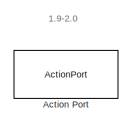
[diagram: If Action Subsystem6/If Action Subsystem2/If Action Subsystem9 - part 1/3, top center region]
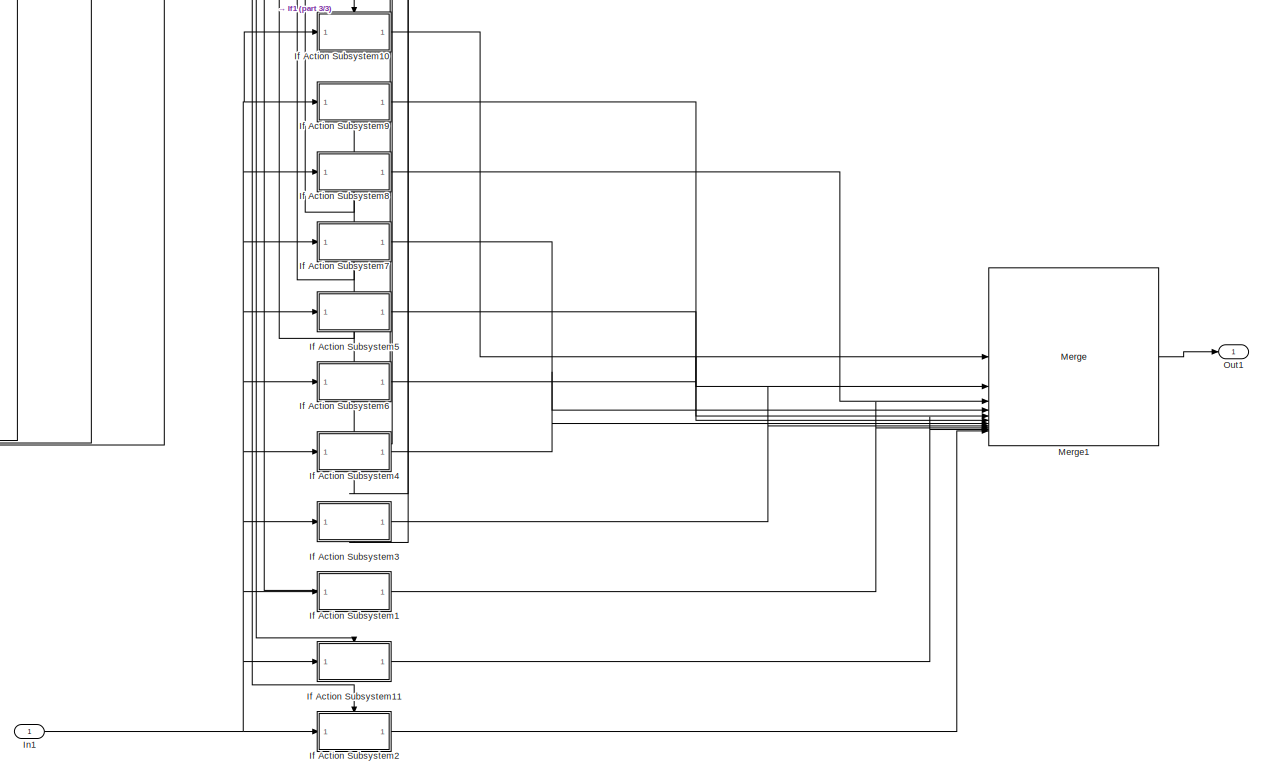
[diagram: If Action Subsystem6/If Action Subsystem2/If Action Subsystem9 - part 2/3, middle right region]
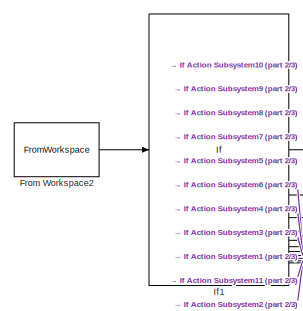
[diagram: If Action Subsystem6/If Action Subsystem2/If Action Subsystem9 - part 3/3, middle left region]
BLOCK [SubSystem] If Action Subsystem6/If Action Subsystem2/If Action Subsystem9
  TreatAsAtomicUnit = on
BLOCK [ActionPort] If Action Subsystem6/If Action Subsystem2/If Action Subsystem9/Action Port
  ActionPortLabel = if(u1 >= 1.895)
BLOCK [FromWorkspace] If Action Subsystem6/If Action Subsystem2/If Action Subsystem9/From Workspace2
  Interpolate = off
  OutputAfterFinalValue = Setting to zero
  VariableName = SimInputHR
BLOCK [SubSystem] If Action Subsystem6/If Action Subsystem2/If Action Subsystem9/If Action Subsystem1
  TreatAsAtomicUnit = on
BLOCK [ActionPort] If Action Subsystem6/If Action Subsystem2/If Action Subsystem9/If Action Subsystem1/Action Port
  ActionPortLabel = elseif( u1 >= 1.915)
BLOCK [Inport] If Action Subsystem6/If Action Subsystem2/If Action Subsystem9/If Action Subsystem1/In1
BLOCK [Lookup_n-D] If Action Subsystem6/If Action Subsystem2/If Action Subsystem9/If Action Subsystem1/LUT 1.92RR
  BreakpointsForDimension1 = [455.9435;504.372;599.0655;693.4809;787.3591;880.8145;973.957;1066.868;1159.606;1252.211;1344.714;1437.137;1529.495;1621.801;1714.065;1806.294;1898.493]
  InputPortMap = u0
  InternalRulePriority = Speed
  NumberOfTableDimensions = 1
  RndMeth = Simplest
  Table = [400;500;600;700;800;900;1000;1100;1200;1300;1400;1500;1600;1700;1800;1900;2000]
BLOCK [Outport] If Action Subsystem6/If Action Subsystem2/If Action Subsystem9/If Action Subsystem1/Out1
BLOCK [SubSystem] If Action Subsystem6/If Action Subsystem2/If Action Subsystem9/If Action Subsystem10
  TreatAsAtomicUnit = on
BLOCK [ActionPort] If Action Subsystem6/If Action Subsystem2/If Action Subsystem9/If Action Subsystem10/Action Port
  ActionPortLabel = if(u1 >= 1.995)
BLOCK [Inport] If Action Subsystem6/If Action Subsystem2/If Action Subsystem9/If Action Subsystem10/In1
BLOCK [Lookup_n-D] If Action Subsystem6/If Action Subsystem2/If Action Subsystem9/If Action Subsystem10/LUT 2.00RR
  BreakpointsForDimension1 = [455.5145;504.0254;598.6788;693.0105;786.7675;880.0716;973.0395;1065.758;1158.289;1250.677;1342.954;1435.143;1527.263;1619.326;1711.343;1803.322;1895.269]
  InputPortMap = u0
  InternalRulePriority = Speed
  NumberOfTableDimensions = 1
  RndMeth = Simplest
  Table = [400;500;600;700;800;900;1000;1100;1200;1300;1400;1500;1600;1700;1800;1900;2000]
BLOCK [Outport] If Action Subsystem6/If Action Subsystem2/If Action Subsystem9/If Action Subsystem10/Out1
BLOCK [SubSystem] If Action Subsystem6/If Action Subsystem2/If Action Subsystem9/If Action Subsystem11
  TreatAsAtomicUnit = on
BLOCK [ActionPort] If Action Subsystem6/If Action Subsystem2/If Action Subsystem9/If Action Subsystem11/Action Port
  ActionPortLabel = elseif( u1 >= 1.905)
BLOCK [Inport] If Action Subsystem6/If Action Subsystem2/If Action Subsystem9/If Action Subsystem11/In1
BLOCK [Lookup_n-D] If Action Subsystem6/If Action Subsystem2/If Action Subsystem9/If Action Subsystem11/LUT 1.91RR
  BreakpointsForDimension1 = [455.9998;504.4183;599.1181;693.5456;787.4408;880.9168;974.083;1067.02;1159.785;1252.42;1344.953;1437.406;1529.796;1622.134;1714.431;1806.692;1898.925]
  InputPortMap = u0
  InternalRulePriority = Speed
  NumberOfTableDimensions = 1
  RndMeth = Simplest
  Table = [400;500;600;700;800;900;1000;1100;1200;1300;1400;1500;1600;1700;1800;1900;2000]
BLOCK [Outport] If Action Subsystem6/If Action Subsystem2/If Action Subsystem9/If Action Subsystem11/Out1
BLOCK [SubSystem] If Action Subsystem6/If Action Subsystem2/If Action Subsystem9/If Action Subsystem2
  TreatAsAtomicUnit = on
BLOCK [ActionPort] If Action Subsystem6/If Action Subsystem2/If Action Subsystem9/If Action Subsystem2/Action Port
  ActionPortLabel = else
BLOCK [Inport] If Action Subsystem6/If Action Subsystem2/If Action Subsystem9/If Action Subsystem2/In1
BLOCK [Lookup_n-D] If Action Subsystem6/If Action Subsystem2/If Action Subsystem9/If Action Subsystem2/LUT 1.90RR
  BreakpointsForDimension1 = [456.0568;504.4652;599.1718;693.6118;787.5242;881.0214;974.2116;1067.175;1159.968;1252.632;1345.195;1437.68;1530.102;1622.473;1714.802;1807.097;1899.364]
  InputPortMap = u0
  InternalRulePriority = Speed
  NumberOfTableDimensions = 1
  RndMeth = Simplest
  Table = [400;500;600;700;800;900;1000;1100;1200;1300;1400;1500;1600;1700;1800;1900;2000]
BLOCK [Outport] If Action Subsystem6/If Action Subsystem2/If Action Subsystem9/If Action Subsystem2/Out1
BLOCK [SubSystem] If Action Subsystem6/If Action Subsystem2/If Action Subsystem9/If Action Subsystem3
  TreatAsAtomicUnit = on
BLOCK [ActionPort] If Action Subsystem6/If Action Subsystem2/If Action Subsystem9/If Action Subsystem3/Action Port
  ActionPortLabel = elseif( u1 >= 1.925)
BLOCK [Inport] If Action Subsystem6/If Action Subsystem2/If Action Subsystem9/If Action Subsystem3/In1
BLOCK [Lookup_n-D] If Action Subsystem6/If Action Subsystem2/If Action Subsystem9/If Action Subsystem3/LUT 1.93RR
  BreakpointsForDimension1 = [455.8877;504.3265;599.0139;693.4176;787.2793;880.7143;973.8337;1066.719;1159.43;1252.007;1344.48;1436.872;1529.199;1621.474;1713.705;1805.902;1898.068]
  InputPortMap = u0
  InternalRulePriority = Speed
  NumberOfTableDimensions = 1
  RndMeth = Simplest
  Table = [400;500;600;700;800;900;1000;1100;1200;1300;1400;1500;1600;1700;1800;1900;2000]
BLOCK [Outport] If Action Subsystem6/If Action Subsystem2/If Action Subsystem9/If Action Subsystem3/Out1
BLOCK [SubSystem] If Action Subsystem6/If Action Subsystem2/If Action Subsystem9/If Action Subsystem4
  TreatAsAtomicUnit = on
BLOCK [ActionPort] If Action Subsystem6/If Action Subsystem2/If Action Subsystem9/If Action Subsystem4/Action Port
  ActionPortLabel = elseif( u1 >= 1.935)
BLOCK [Inport] If Action Subsystem6/If Action Subsystem2/If Action Subsystem9/If Action Subsystem4/In1
BLOCK [Lookup_n-D] If Action Subsystem6/If Action Subsystem2/If Action Subsystem9/If Action Subsystem4/LUT 1.94RR
  BreakpointsForDimension1 = [455.8326;504.2816;598.9633;693.3556;787.2012;880.6164;973.7129;1066.573;1159.257;1251.806;1344.25;1436.612;1528.908;1621.152;1713.351;1805.515;1897.649]
  InputPortMap = u0
  InternalRulePriority = Speed
  NumberOfTableDimensions = 1
  RndMeth = Simplest
  Table = [400;500;600;700;800;900;1000;1100;1200;1300;1400;1500;1600;1700;1800;1900;2000]
BLOCK [Outport] If Action Subsystem6/If Action Subsystem2/If Action Subsystem9/If Action Subsystem4/Out1
BLOCK [SubSystem] If Action Subsystem6/If Action Subsystem2/If Action Subsystem9/If Action Subsystem5
  TreatAsAtomicUnit = on
BLOCK [ActionPort] If Action Subsystem6/If Action Subsystem2/If Action Subsystem9/If Action Subsystem5/Action Port
  ActionPortLabel = elseif( u1 >= 1.955)
BLOCK [Inport] If Action Subsystem6/If Action Subsystem2/If Action Subsystem9/If Action Subsystem5/In1
BLOCK [Lookup_n-D] If Action Subsystem6/If Action Subsystem2/If Action Subsystem9/If Action Subsystem5/LUT 1.96RR
  BreakpointsForDimension1 = [455.7242;504.1937;598.8648;693.2355;787.0501;880.4267;973.4788;1066.29;1158.922;1251.415;1343.802;1436.105;1528.341;1620.523;1712.66;1804.761;1896.831]
  InputPortMap = u0
  InternalRulePriority = Speed
  NumberOfTableDimensions = 1
  RndMeth = Simplest
  Table = [400;500;600;700;800;900;1000;1100;1200;1300;1400;1500;1600;1700;1800;1900;2000]
BLOCK [Outport] If Action Subsystem6/If Action Subsystem2/If Action Subsystem9/If Action Subsystem5/Out1
BLOCK [SubSystem] If Action Subsystem6/If Action Subsystem2/If Action Subsystem9/If Action Subsystem6
  TreatAsAtomicUnit = on
BLOCK [ActionPort] If Action Subsystem6/If Action Subsystem2/If Action Subsystem9/If Action Subsystem6/Action Port
  ActionPortLabel = elseif( u1 >= 1.945)
BLOCK [Inport] If Action Subsystem6/If Action Subsystem2/If Action Subsystem9/If Action Subsystem6/In1
BLOCK [Lookup_n-D] If Action Subsystem6/If Action Subsystem2/If Action Subsystem9/If Action Subsystem6/LUT 1.95RR
  BreakpointsForDimension1 = [455.7781;504.2373;598.9136;693.2949;787.1248;880.5205;973.5946;1066.431;1159.088;1251.609;1344.024;1436.356;1528.622;1620.835;1713.003;1805.135;1897.237]
  InputPortMap = u0
  InternalRulePriority = Speed
  NumberOfTableDimensions = 1
  RndMeth = Simplest
  Table = [400;500;600;700;800;900;1000;1100;1200;1300;1400;1500;1600;1700;1800;1900;2000]
BLOCK [Outport] If Action Subsystem6/If Action Subsystem2/If Action Subsystem9/If Action Subsystem6/Out1
BLOCK [SubSystem] If Action Subsystem6/If Action Subsystem2/If Action Subsystem9/If Action Subsystem7
  TreatAsAtomicUnit = on
BLOCK [ActionPort] If Action Subsystem6/If Action Subsystem2/If Action Subsystem9/If Action Subsystem7/Action Port
  ActionPortLabel = elseif( u1 >= 1.965)
BLOCK [Inport] If Action Subsystem6/If Action Subsystem2/If Action Subsystem9/If Action Subsystem7/In1
BLOCK [Lookup_n-D] If Action Subsystem6/If Action Subsystem2/If Action Subsystem9/If Action Subsystem7/LUT 1.97RR
  BreakpointsForDimension1 = [455.6709;504.1507;598.817;693.1774;786.9771;880.335;973.3654;1066.153;1158.759;1251.225;1343.584;1435.858;1528.065;1620.216;1712.323;1804.393;1896.431]
  InputPortMap = u0
  InternalRulePriority = Speed
  NumberOfTableDimensions = 1
  RndMeth = Simplest
  Table = [400;500;600;700;800;900;1000;1100;1200;1300;1400;1500;1600;1700;1800;1900;2000]
BLOCK [Outport] If Action Subsystem6/If Action Subsystem2/If Action Subsystem9/If Action Subsystem7/Out1
BLOCK [SubSystem] If Action Subsystem6/If Action Subsystem2/If Action Subsystem9/If Action Subsystem8
  TreatAsAtomicUnit = on
BLOCK [ActionPort] If Action Subsystem6/If Action Subsystem2/If Action Subsystem9/If Action Subsystem8/Action Port
  ActionPortLabel = elseif( u1 >= 1.975)
BLOCK [Inport] If Action Subsystem6/If Action Subsystem2/If Action Subsystem9/If Action Subsystem8/In1
BLOCK [Lookup_n-D] If Action Subsystem6/If Action Subsystem2/If Action Subsystem9/If Action Subsystem8/LUT 1.98RR
  BreakpointsForDimension1 = [455.6182;504.1083;598.7701;693.1206;786.9056;880.2452;973.2545;1066.019;1158.599;1251.039;1343.37;1435.616;1527.793;1619.915;1711.991;1804.03;1896.038]
  InputPortMap = u0
  InternalRulePriority = Speed
  NumberOfTableDimensions = 1
  RndMeth = Simplest
  Table = [400;500;600;700;800;900;1000;1100;1200;1300;1400;1500;1600;1700;1800;1900;2000]
BLOCK [Outport] If Action Subsystem6/If Action Subsystem2/If Action Subsystem9/If Action Subsystem8/Out1
BLOCK [SubSystem] If Action Subsystem6/If Action Subsystem2/If Action Subsystem9/If Action Subsystem9
  TreatAsAtomicUnit = on
BLOCK [ActionPort] If Action Subsystem6/If Action Subsystem2/If Action Subsystem9/If Action Subsystem9/Action Port
  ActionPortLabel = elseif(u1 >= 1.985)
BLOCK [Inport] If Action Subsystem6/If Action Subsystem2/If Action Subsystem9/If Action Subsystem9/In1
BLOCK [Lookup_n-D] If Action Subsystem6/If Action Subsystem2/If Action Subsystem9/If Action Subsystem9/LUT 1.99RR
  BreakpointsForDimension1 = [455.5661;504.0666;598.724;693.065;786.8358;880.1575;973.1458;1065.887;1158.442;1250.856;1343.16;1435.377;1527.526;1619.618;1711.664;1803.673;1895.65]
  InputPortMap = u0
  InternalRulePriority = Speed
  NumberOfTableDimensions = 1
  RndMeth = Simplest
  Table = [400;500;600;700;800;900;1000;1100;1200;1300;1400;1500;1600;1700;1800;1900;2000]
BLOCK [Outport] If Action Subsystem6/If Action Subsystem2/If Action Subsystem9/If Action Subsystem9/Out1
BLOCK [If] If Action Subsystem6/If Action Subsystem2/If Action Subsystem9/If1
  ElseIfExpressions = u1 >= 1.985, u1 >= 1.975, u1 >= 1.965, u1 >= 1.955, u1 >= 1.945, u1 >= 1.935, u1 >= 1.925, u1 >= 1.915, u1 >= 1.905
  IfExpression = u1 >= 1.995
BLOCK [Inport] If Action Subsystem6/If Action Subsystem2/If Action Subsystem9/In1
BLOCK [Merge] If Action Subsystem6/If Action Subsystem2/If Action Subsystem9/Merge1
  Inputs = 11
BLOCK [Outport] If Action Subsystem6/If Action Subsystem2/If Action Subsystem9/Out1
BLOCK [If] If Action Subsystem6/If Action Subsystem2/If1
  ElseIfExpressions = u1 >= 1.795, u1 >= 1.695, u1 >= 1.595
  IfExpression = u1 >= 1.895
BLOCK [Inport] If Action Subsystem6/If Action Subsystem2/In1
BLOCK [Merge] If Action Subsystem6/If Action Subsystem2/Merge1
  Inputs = 5
BLOCK [Outport] If Action Subsystem6/If Action Subsystem2/Out1
BLOCK [SubSystem] If Action Subsystem6/If Action Subsystem3
  TreatAsAtomicUnit = on
BLOCK [ActionPort] If Action Subsystem6/If Action Subsystem3/Action Port
  ActionPortLabel = else
BLOCK [FromWorkspace] If Action Subsystem6/If Action Subsystem3/From Workspace2
  Interpolate = off
  OutputAfterFinalValue = Setting to zero
  VariableName = SimInputHR
BLOCK [SubSystem] If Action Subsystem6/If Action Subsystem3/If Action Subsystem5
  TreatAsAtomicUnit = on
BLOCK [ActionPort] If Action Subsystem6/If Action Subsystem3/If Action Subsystem5/Action Port
  ActionPortLabel = elseif( u1 >= 0595)
BLOCK [FromWorkspace] If Action Subsystem6/If Action Subsystem3/If Action Subsystem5/From Workspace2
  Interpolate = off
  OutputAfterFinalValue = Setting to zero
  VariableName = SimInputHR
BLOCK [SubSystem] If Action Subsystem6/If Action Subsystem3/If Action Subsystem5/If Action Subsystem1
  TreatAsAtomicUnit = on
BLOCK [ActionPort] If Action Subsystem6/If Action Subsystem3/If Action Subsystem5/If Action Subsystem1/Action Port
  ActionPortLabel = elseif( u1 >= 0.615)
BLOCK [Inport] If Action Subsystem6/If Action Subsystem3/If Action Subsystem5/If Action Subsystem1/In1
BLOCK [Lookup_n-D] If Action Subsystem6/If Action Subsystem3/If Action Subsystem5/If Action Subsystem1/LUT 0.62RR
  BreakpointsForDimension1 = [474.416;523.9877;628.6715;734.4256;840.4801;946.6435;1052.814;1158.916;1264.875;1370.592;1475.677;1583.601;1687.634;1792.249;1896.633;2000.682;2104.35]
  InputPortMap = u0
  InternalRulePriority = Speed
  NumberOfTableDimensions = 1
  RndMeth = Simplest
  Table = [400;500;600;700;800;900;1000;1100;1200;1300;1400;1500;1600;1700;1800;1900;2000]
BLOCK [Outport] If Action Subsystem6/If Action Subsystem3/If Action Subsystem5/If Action Subsystem1/Out1
BLOCK [SubSystem] If Action Subsystem6/If Action Subsystem3/If Action Subsystem5/If Action Subsystem10
  TreatAsAtomicUnit = on
BLOCK [ActionPort] If Action Subsystem6/If Action Subsystem3/If Action Subsystem5/If Action Subsystem10/Action Port
  ActionPortLabel = elseif( u1 >= 0.605)
BLOCK [Inport] If Action Subsystem6/If Action Subsystem3/If Action Subsystem5/If Action Subsystem10/In1
BLOCK [Lookup_n-D] If Action Subsystem6/If Action Subsystem3/If Action Subsystem5/If Action Subsystem10/LUT 0.61RR
  BreakpointsForDimension1 = [474.5062;524.0083;628.793;734.7015;840.9386;947.2965;1053.661;1159.944;1266.062;1371.887;1476.748;1584.656;1689.15;1793.79;1898.122;2002.06;2105.559]
  InputPortMap = u0
  InternalRulePriority = Speed
  NumberOfTableDimensions = 1
  RndMeth = Simplest
  Table = [400;500;600;700;800;900;1000;1100;1200;1300;1400;1500;1600;1700;1800;1900;2000]
BLOCK [Outport] If Action Subsystem6/If Action Subsystem3/If Action Subsystem5/If Action Subsystem10/Out1
BLOCK [SubSystem] If Action Subsystem6/If Action Subsystem3/If Action Subsystem5/If Action Subsystem2
  TreatAsAtomicUnit = on
BLOCK [ActionPort] If Action Subsystem6/If Action Subsystem3/If Action Subsystem5/If Action Subsystem2/Action Port
  ActionPortLabel = else
BLOCK [Inport] If Action Subsystem6/If Action Subsystem3/If Action Subsystem5/If Action Subsystem2/In1
BLOCK [Lookup_n-D] If Action Subsystem6/If Action Subsystem3/If Action Subsystem5/If Action Subsystem2/LUT 0.6RR
  BreakpointsForDimension1 = [474.5798;523.9872;628.8477;734.8914;841.2953;947.8326;1054.375;1160.822;1267.075;1372.968;1477.18;1585.674;1690.376;1794.983;1899.206;2002.969;2106.229]
  InputPortMap = u0
  InternalRulePriority = Speed
  NumberOfTableDimensions = 1
  RndMeth = Simplest
  Table = [400;500;600;700;800;900;1000;1100;1200;1300;1400;1500;1600;1700;1800;1900;2000]
BLOCK [Outport] If Action Subsystem6/If Action Subsystem3/If Action Subsystem5/If Action Subsystem2/Out1
BLOCK [SubSystem] If Action Subsystem6/If Action Subsystem3/If Action Subsystem5/If Action Subsystem3
  TreatAsAtomicUnit = on
BLOCK [ActionPort] If Action Subsystem6/If Action Subsystem3/If Action Subsystem5/If Action Subsystem3/Action Port
  ActionPortLabel = elseif( u1 >= 0.625)
BLOCK [Inport] If Action Subsystem6/If Action Subsystem3/If Action Subsystem5/If Action Subsystem3/In1
BLOCK [Lookup_n-D] If Action Subsystem6/If Action Subsystem3/If Action Subsystem5/If Action Subsystem3/LUT 0.63RR
  BreakpointsForDimension1 = [474.3098;523.9296;628.4913;734.0752;839.9339;945.8908;1051.855;1157.76;1263.543;1369.122;1474.249;1582.938;1685.883;1790.418;1894.805;1998.91;2102.686]
  InputPortMap = u0
  InternalRulePriority = Speed
  NumberOfTableDimensions = 1
  RndMeth = Simplest
  Table = [400;500;600;700;800;900;1000;1100;1200;1300;1400;1500;1600;1700;1800;1900;2000]
BLOCK [Outport] If Action Subsystem6/If Action Subsystem3/If Action Subsystem5/If Action Subsystem3/Out1
BLOCK [SubSystem] If Action Subsystem6/If Action Subsystem3/If Action Subsystem5/If Action Subsystem4
  TreatAsAtomicUnit = on
BLOCK [ActionPort] If Action Subsystem6/If Action Subsystem3/If Action Subsystem5/If Action Subsystem4/Action Port
  ActionPortLabel = elseif( u1 >= 0.635)
BLOCK [Inport] If Action Subsystem6/If Action Subsystem3/If Action Subsystem5/If Action Subsystem4/In1
BLOCK [Lookup_n-D] If Action Subsystem6/If Action Subsystem3/If Action Subsystem5/If Action Subsystem4/LUT 0.64RR
  BreakpointsForDimension1 = [474.1884;523.8379;628.2596;733.6604;839.313;945.0537;1050.802;1156.498;1262.089;1367.508;1472.584;1574.402;1683.952;1788.347;1892.694;1996.809;2100.64]
  InputPortMap = u0
  InternalRulePriority = Speed
  NumberOfTableDimensions = 1
  RndMeth = Simplest
  Table = [400;500;600;700;800;900;1000;1100;1200;1300;1400;1500;1600;1700;1800;1900;2000]
BLOCK [Outport] If Action Subsystem6/If Action Subsystem3/If Action Subsystem5/If Action Subsystem4/Out1
BLOCK [SubSystem] If Action Subsystem6/If Action Subsystem3/If Action Subsystem5/If Action Subsystem5
  TreatAsAtomicUnit = on
BLOCK [ActionPort] If Action Subsystem6/If Action Subsystem3/If Action Subsystem5/If Action Subsystem5/Action Port
  ActionPortLabel = elseif( u1 >= 0.655)
BLOCK [Inport] If Action Subsystem6/If Action Subsystem3/If Action Subsystem5/If Action Subsystem5/In1
BLOCK [Lookup_n-D] If Action Subsystem6/If Action Subsystem3/If Action Subsystem5/If Action Subsystem5/LUT 0.66RR
  BreakpointsForDimension1 = [473.9037;523.5678;627.668;732.6733;837.8912;943.1792;1048.473;1153.727;1258.902;1363.951;1468.782;1572.784;1679.806;1783.66;1887.816;1991.837;2095.654]
  InputPortMap = u0
  InternalRulePriority = Speed
  NumberOfTableDimensions = 1
  RndMeth = Simplest
  Table = [400;500;600;700;800;900;1000;1100;1200;1300;1400;1500;1600;1700;1800;1900;2000]
BLOCK [Outport] If Action Subsystem6/If Action Subsystem3/If Action Subsystem5/If Action Subsystem5/Out1
BLOCK [SubSystem] If Action Subsystem6/If Action Subsystem3/If Action Subsystem5/If Action Subsystem6
  TreatAsAtomicUnit = on
BLOCK [ActionPort] If Action Subsystem6/If Action Subsystem3/If Action Subsystem5/If Action Subsystem6/Action Port
  ActionPortLabel = elseif( u1 >= 0.645)
BLOCK [Inport] If Action Subsystem6/If Action Subsystem3/If Action Subsystem5/If Action Subsystem6/In1
BLOCK [Lookup_n-D] If Action Subsystem6/If Action Subsystem3/If Action Subsystem5/If Action Subsystem6/LUT 0.65RR
  BreakpointsForDimension1 = [474.0528;523.7162;627.9832;733.1903;838.6287;944.1458;1049.669;1155.148;1260.536;1365.777;1470.748;1574.214;1681.9;1786.081;1890.35;1994.435;2098.278]
  InputPortMap = u0
  InternalRulePriority = Speed
  NumberOfTableDimensions = 1
  RndMeth = Simplest
  Table = [400;500;600;700;800;900;1000;1100;1200;1300;1400;1500;1600;1700;1800;1900;2000]
BLOCK [Outport] If Action Subsystem6/If Action Subsystem3/If Action Subsystem5/If Action Subsystem6/Out1
BLOCK [SubSystem] If Action Subsystem6/If Action Subsystem3/If Action Subsystem5/If Action Subsystem7
  TreatAsAtomicUnit = on
BLOCK [ActionPort] If Action Subsystem6/If Action Subsystem3/If Action Subsystem5/If Action Subsystem7/Action Port
  ActionPortLabel = elseif( u1 >= 0.665)
BLOCK [Inport] If Action Subsystem6/If Action Subsystem3/If Action Subsystem5/If Action Subsystem7/In1
BLOCK [Lookup_n-D] If Action Subsystem6/If Action Subsystem3/If Action Subsystem5/If Action Subsystem7/LUT 0.67RR
  BreakpointsForDimension1 = [473.7423;523.3958;627.3195;732.1167;837.1095;942.1646;1047.224;1152.249;1257.204;1362.051;1466.718;1570.857;1677.824;1781.119;1885.13;1989.059;2092.817]
  InputPortMap = u0
  InternalRulePriority = Speed
  NumberOfTableDimensions = 1
  RndMeth = Simplest
  Table = [400;500;600;700;800;900;1000;1100;1200;1300;1400;1500;1600;1700;1800;1900;2000]
BLOCK [Outport] If Action Subsystem6/If Action Subsystem3/If Action Subsystem5/If Action Subsystem7/Out1
BLOCK [SubSystem] If Action Subsystem6/If Action Subsystem3/If Action Subsystem5/If Action Subsystem8
  TreatAsAtomicUnit = on
BLOCK [ActionPort] If Action Subsystem6/If Action Subsystem3/If Action Subsystem5/If Action Subsystem8/Action Port
  ActionPortLabel = elseif(u1 >= 0.675)
BLOCK [Inport] If Action Subsystem6/If Action Subsystem3/If Action Subsystem5/If Action Subsystem8/In1
BLOCK [Lookup_n-D] If Action Subsystem6/If Action Subsystem3/If Action Subsystem5/If Action Subsystem8/LUT 0.68RR
  BreakpointsForDimension1 = [473.5695;523.203;626.9426;731.527;836.2917;941.1114;1045.934;1150.726;1255.457;1360.093;1464.579;1568.697;1676.389;1778.492;1882.325;1986.137;2089.81]
  InputPortMap = u0
  InternalRulePriority = Speed
  NumberOfTableDimensions = 1
  RndMeth = Simplest
  Table = [400;500;600;700;800;900;1000;1100;1200;1300;1400;1500;1600;1700;1800;1900;2000]
BLOCK [Outport] If Action Subsystem6/If Action Subsystem3/If Action Subsystem5/If Action Subsystem8/Out1
BLOCK [SubSystem] If Action Subsystem6/If Action Subsystem3/If Action Subsystem5/If Action Subsystem9
  TreatAsAtomicUnit = on
BLOCK [ActionPort] If Action Subsystem6/If Action Subsystem3/If Action Subsystem5/If Action Subsystem9/Action Port
  ActionPortLabel = if(u1 >= 0.685)
BLOCK [Inport] If Action Subsystem6/If Action Subsystem3/If Action Subsystem5/If Action Subsystem9/In1
BLOCK [Lookup_n-D] If Action Subsystem6/If Action Subsystem3/If Action Subsystem5/If Action Subsystem9/LUT 0.69RR
  BreakpointsForDimension1 = [473.3863;522.992;626.5416;730.9101;835.4449;940.028;1044.613;1149.17;1253.672;1358.092;1462.386;1566.406;1667.106;1775.814;1879.429;1983.102;2086.667]
  InputPortMap = u0
  InternalRulePriority = Speed
  NumberOfTableDimensions = 1
  RndMeth = Simplest
  Table = [400;500;600;700;800;900;1000;1100;1200;1300;1400;1500;1600;1700;1800;1900;2000]
BLOCK [Outport] If Action Subsystem6/If Action Subsystem3/If Action Subsystem5/If Action Subsystem9/Out1
BLOCK [If] If Action Subsystem6/If Action Subsystem3/If Action Subsystem5/If1
  ElseIfExpressions = u1 >= 0.675, u1 >= 0.665, u1 >= 0.655, u1 >= 0.645, u1 >= 0.635, u1 >= 0.625, u1 >= 0.615, u1 >= 0.605
  IfExpression = u1 >= 0.685
BLOCK [Inport] If Action Subsystem6/If Action Subsystem3/If Action Subsystem5/In1
BLOCK [Merge] If Action Subsystem6/If Action Subsystem3/If Action Subsystem5/Merge1
  Inputs = 10
BLOCK [Outport] If Action Subsystem6/If Action Subsystem3/If Action Subsystem5/Out1
BLOCK [SubSystem] If Action Subsystem6/If Action Subsystem3/If Action Subsystem6
  TreatAsAtomicUnit = on
BLOCK [ActionPort] If Action Subsystem6/If Action Subsystem3/If Action Subsystem6/Action Port
  ActionPortLabel = else
BLOCK [FromWorkspace] If Action Subsystem6/If Action Subsystem3/If Action Subsystem6/From Workspace2
  Interpolate = off
  OutputAfterFinalValue = Setting to zero
  VariableName = SimInputHR
BLOCK [SubSystem] If Action Subsystem6/If Action Subsystem3/If Action Subsystem6/If Action Subsystem1
  TreatAsAtomicUnit = on
BLOCK [ActionPort] If Action Subsystem6/If Action Subsystem3/If Action Subsystem6/If Action Subsystem1/Action Port
  ActionPortLabel = elseif( u1 >= 0.515)
BLOCK [Inport] If Action Subsystem6/If Action Subsystem3/If Action Subsystem6/If Action Subsystem1/In1
BLOCK [Lookup_n-D] If Action Subsystem6/If Action Subsystem3/If Action Subsystem6/If Action Subsystem1/LUT 0.52RR
  BreakpointsForDimension1 = [474.5762;521.7393;625.6496;731.5358;838.1904;945.1164;1051.969;1158.437;1263.932;1371.564;1475.254;1578.61;1680.944;1782.085;1881.929;1980.397;2077.433]
  InputPortMap = u0
  InternalRulePriority = Speed
  NumberOfTableDimensions = 1
  RndMeth = Simplest
  Table = [400;500;600;700;800;900;1000;1100;1200;1300;1400;1500;1600;1700;1800;1900;2000]
BLOCK [Outport] If Action Subsystem6/If Action Subsystem3/If Action Subsystem6/If Action Subsystem1/Out1
BLOCK [SubSystem] If Action Subsystem6/If Action Subsystem3/If Action Subsystem6/If Action Subsystem10
  TreatAsAtomicUnit = on
BLOCK [ActionPort] If Action Subsystem6/If Action Subsystem3/If Action Subsystem6/If Action Subsystem10/Action Port
  ActionPortLabel = elseif( u1 >= 0.505)
BLOCK [Inport] If Action Subsystem6/If Action Subsystem3/If Action Subsystem6/If Action Subsystem10/In1
BLOCK [Lookup_n-D] If Action Subsystem6/If Action Subsystem3/If Action Subsystem6/If Action Subsystem10/LUT 0.51RR
  BreakpointsForDimension1 = [474.5205;521.1183;624.6064;730.2245;836.688;943.4438;1050.1;1156.292;1261.116;1368.302;1471.738;1574.405;1675.861;1775.944;1874.546;1971.588;2067.015]
  InputPortMap = u0
  InternalRulePriority = Speed
  NumberOfTableDimensions = 1
  RndMeth = Simplest
  Table = [400;500;600;700;800;900;1000;1100;1200;1300;1400;1500;1600;1700;1800;1900;2000]
BLOCK [Outport] If Action Subsystem6/If Action Subsystem3/If Action Subsystem6/If Action Subsystem10/Out1
BLOCK [SubSystem] If Action Subsystem6/If Action Subsystem3/If Action Subsystem6/If Action Subsystem2
  TreatAsAtomicUnit = on
BLOCK [ActionPort] If Action Subsystem6/If Action Subsystem3/If Action Subsystem6/If Action Subsystem2/Action Port
  ActionPortLabel = else
BLOCK [Inport] If Action Subsystem6/If Action Subsystem3/If Action Subsystem6/If Action Subsystem2/In1
BLOCK [Lookup_n-D] If Action Subsystem6/If Action Subsystem3/If Action Subsystem6/If Action Subsystem2/LUT 0.50RR
  BreakpointsForDimension1 = [474.463;520.4034;623.3708;728.6386;834.8363;941.3471;1047.726;1153.541;1257.231;1364.382;1467.272;1569.079;1669.469;1768.286;1865.417;1960.783;2054.337]
  InputPortMap = u0
  InternalRulePriority = Speed
  NumberOfTableDimensions = 1
  RndMeth = Simplest
  Table = [400;500;600;700;800;900;1000;1100;1200;1300;1400;1500;1600;1700;1800;1900;2000]
BLOCK [Outport] If Action Subsystem6/If Action Subsystem3/If Action Subsystem6/If Action Subsystem2/Out1
BLOCK [SubSystem] If Action Subsystem6/If Action Subsystem3/If Action Subsystem6/If Action Subsystem3
  TreatAsAtomicUnit = on
BLOCK [ActionPort] If Action Subsystem6/If Action Subsystem3/If Action Subsystem6/If Action Subsystem3/Action Port
  ActionPortLabel = elseif( u1 >= 0.525)
BLOCK [Inport] If Action Subsystem6/If Action Subsystem3/If Action Subsystem6/If Action Subsystem3/In1
BLOCK [Lookup_n-D] If Action Subsystem6/If Action Subsystem3/If Action Subsystem6/If Action Subsystem3/LUT 0.53RR
  BreakpointsForDimension1 = [474.6253;522.2718;626.5165;732.598;839.3776;946.4084;1053.386;1160.044;1265.963;1365.661;1477.938;1581.826;1684.873;1786.888;1887.77;1987.443;2085.85]
  InputPortMap = u0
  InternalRulePriority = Speed
  NumberOfTableDimensions = 1
  RndMeth = Simplest
  Table = [400;500;600;700;800;900;1000;1100;1200;1300;1400;1500;1600;1700;1800;1900;2000]
BLOCK [Outport] If Action Subsystem6/If Action Subsystem3/If Action Subsystem6/If Action Subsystem3/Out1
BLOCK [SubSystem] If Action Subsystem6/If Action Subsystem3/If Action Subsystem6/If Action Subsystem4
  TreatAsAtomicUnit = on
BLOCK [ActionPort] If Action Subsystem6/If Action Subsystem3/If Action Subsystem6/If Action Subsystem4/Action Port
  ActionPortLabel = elseif( u1 >= 0.535)
BLOCK [Inport] If Action Subsystem6/If Action Subsystem3/If Action Subsystem6/If Action Subsystem4/In1
BLOCK [Lookup_n-D] If Action Subsystem6/If Action Subsystem3/If Action Subsystem6/If Action Subsystem4/LUT 0.54RR
  BreakpointsForDimension1 = [474.6644;522.7214;627.2226;733.4352;840.282;947.3604;1054.402;1161.177;1267.368;1369.963;1479.904;1584.175;1687.789;1790.518;1892.259;1992.94;2092.504]
  InputPortMap = u0
  InternalRulePriority = Speed
  NumberOfTableDimensions = 1
  RndMeth = Simplest
  Table = [400;500;600;700;800;900;1000;1100;1200;1300;1400;1500;1600;1700;1800;1900;2000]
BLOCK [Outport] If Action Subsystem6/If Action Subsystem3/If Action Subsystem6/If Action Subsystem4/Out1
BLOCK [SubSystem] If Action Subsystem6/If Action Subsystem3/If Action Subsystem6/If Action Subsystem5
  TreatAsAtomicUnit = on
BLOCK [ActionPort] If Action Subsystem6/If Action Subsystem3/If Action Subsystem6/If Action Subsystem5/Action Port
  ActionPortLabel = elseif( u1 >= 0.555)
BLOCK [Inport] If Action Subsystem6/If Action Subsystem3/If Action Subsystem6/If Action Subsystem5/In1
BLOCK [Lookup_n-D] If Action Subsystem6/If Action Subsystem3/If Action Subsystem6/If Action Subsystem5/LUT 0.56RR
  BreakpointsForDimension1 = [474.702;523.3943;628.2103;734.5232;841.36;948.3917;1055.409;1162.239;1268.68;1373.96;1482.145;1586.707;1691.087;1794.838;1897.845;2000.041;2101.376]
  InputPortMap = u0
  InternalRulePriority = Speed
  NumberOfTableDimensions = 1
  RndMeth = Simplest
  Table = [400;500;600;700;800;900;1000;1100;1200;1300;1400;1500;1600;1700;1800;1900;2000]
BLOCK [Outport] If Action Subsystem6/If Action Subsystem3/If Action Subsystem6/If Action Subsystem5/Out1
BLOCK [SubSystem] If Action Subsystem6/If Action Subsystem3/If Action Subsystem6/If Action Subsystem6
  TreatAsAtomicUnit = on
BLOCK [ActionPort] If Action Subsystem6/If Action Subsystem3/If Action Subsystem6/If Action Subsystem6/Action Port
  ActionPortLabel = elseif( u1 >= 0.545)
BLOCK [Inport] If Action Subsystem6/If Action Subsystem3/If Action Subsystem6/If Action Subsystem6/In1
BLOCK [Lookup_n-D] If Action Subsystem6/If Action Subsystem3/If Action Subsystem6/If Action Subsystem6/LUT 0.55RR
  BreakpointsForDimension1 = [474.6906;523.0937;627.7826;734.0699;840.9336;948.01;1055.062;1161.891;1268.247;1372.673;1481.264;1585.769;1689.822;1793.124;1895.566;1997.081;2097.613]
  InputPortMap = u0
  InternalRulePriority = Speed
  NumberOfTableDimensions = 1
  RndMeth = Simplest
  Table = [400;500;600;700;800;900;1000;1100;1200;1300;1400;1500;1600;1700;1800;1900;2000]
BLOCK [Outport] If Action Subsystem6/If Action Subsystem3/If Action Subsystem6/If Action Subsystem6/Out1
BLOCK [SubSystem] If Action Subsystem6/If Action Subsystem3/If Action Subsystem6/If Action Subsystem7
  TreatAsAtomicUnit = on
BLOCK [ActionPort] If Action Subsystem6/If Action Subsystem3/If Action Subsystem6/If Action Subsystem7/Action Port
  ActionPortLabel = elseif( u1 >= 0.565)
BLOCK [Inport] If Action Subsystem6/If Action Subsystem3/If Action Subsystem6/If Action Subsystem7/In1
BLOCK [Lookup_n-D] If Action Subsystem6/If Action Subsystem3/If Action Subsystem6/If Action Subsystem7/LUT 0.57RR
  BreakpointsForDimension1 = [474.6972;523.6287;628.519;734.8148;841.587;948.5373;1055.481;1162.266;1268.728;1374.402;1482.732;1587.083;1691.687;1795.78;1899.232;2001.978;2103.969]
  InputPortMap = u0
  InternalRulePriority = Speed
  NumberOfTableDimensions = 1
  RndMeth = Simplest
  Table = [400;500;600;700;800;900;1000;1100;1200;1300;1400;1500;1600;1700;1800;1900;2000]
BLOCK [Outport] If Action Subsystem6/If Action Subsystem3/If Action Subsystem6/If Action Subsystem7/Out1
BLOCK [SubSystem] If Action Subsystem6/If Action Subsystem3/If Action Subsystem6/If Action Subsystem8
  TreatAsAtomicUnit = on
BLOCK [ActionPort] If Action Subsystem6/If Action Subsystem3/If Action Subsystem6/If Action Subsystem8/Action Port
  ActionPortLabel = elseif(u1 >= 0.575)
BLOCK [Inport] If Action Subsystem6/If Action Subsystem3/If Action Subsystem6/If Action Subsystem8/In1
BLOCK [Lookup_n-D] If Action Subsystem6/If Action Subsystem3/If Action Subsystem6/If Action Subsystem8/LUT 0.58RR
  BreakpointsForDimension1 = [474.6754;523.8022;628.7207;734.9626;841.638;948.4755;1055.312;1162.015;1268.446;1374.298;1473.533;1586.981;1691.715;1796.057;1899.852;2003.032;2105.551]
  InputPortMap = u0
  InternalRulePriority = Speed
  NumberOfTableDimensions = 1
  RndMeth = Simplest
  Table = [400;500;600;700;800;900;1000;1100;1200;1300;1400;1500;1600;1700;1800;1900;2000]
BLOCK [Outport] If Action Subsystem6/If Action Subsystem3/If Action Subsystem6/If Action Subsystem8/Out1
BLOCK [SubSystem] If Action Subsystem6/If Action Subsystem3/If Action Subsystem6/If Action Subsystem9
  TreatAsAtomicUnit = on
BLOCK [ActionPort] If Action Subsystem6/If Action Subsystem3/If Action Subsystem6/If Action Subsystem9/Action Port
  ActionPortLabel = if(u1 >= 0.585)
BLOCK [Inport] If Action Subsystem6/If Action Subsystem3/If Action Subsystem6/If Action Subsystem9/In1
BLOCK [Lookup_n-D] If Action Subsystem6/If Action Subsystem3/If Action Subsystem6/If Action Subsystem9/LUT 0.59RR
  BreakpointsForDimension1 = [474.6363;523.9201;628.8268;734.9831;841.5343;948.2328;1054.934;1161.522;1267.881;1373.792;1476.295;1586.484;1691.253;1795.763;1899.811;2003.325;2106.263]
  InputPortMap = u0
  InternalRulePriority = Speed
  NumberOfTableDimensions = 1
  RndMeth = Simplest
  Table = [400;500;600;700;800;900;1000;1100;1200;1300;1400;1500;1600;1700;1800;1900;2000]
BLOCK [Outport] If Action Subsystem6/If Action Subsystem3/If Action Subsystem6/If Action Subsystem9/Out1
BLOCK [If] If Action Subsystem6/If Action Subsystem3/If Action Subsystem6/If1
  ElseIfExpressions = u1 >= 0.575, u1 >= 0.565, u1 >= 0.555, u1 >= 0.545, u1 >= 0.535, u1 >= 0.525, u1 >= 0.515, u1 >= 0.505
  IfExpression = u1 >= 0.585
BLOCK [Inport] If Action Subsystem6/If Action Subsystem3/If Action Subsystem6/In1
BLOCK [Merge] If Action Subsystem6/If Action Subsystem3/If Action Subsystem6/Merge1
  Inputs = 10
BLOCK [Outport] If Action Subsystem6/If Action Subsystem3/If Action Subsystem6/Out1
BLOCK [SubSystem] If Action Subsystem6/If Action Subsystem3/If Action Subsystem7
  TreatAsAtomicUnit = on
BLOCK [ActionPort] If Action Subsystem6/If Action Subsystem3/If Action Subsystem7/Action Port
  ActionPortLabel = elseif( u1 >= 0.695)
BLOCK [FromWorkspace] If Action Subsystem6/If Action Subsystem3/If Action Subsystem7/From Workspace2
  Interpolate = off
  OutputAfterFinalValue = Setting to zero
  VariableName = SimInputHR
BLOCK [SubSystem] If Action Subsystem6/If Action Subsystem3/If Action Subsystem7/If Action Subsystem1
  TreatAsAtomicUnit = on
BLOCK [ActionPort] If Action Subsystem6/If Action Subsystem3/If Action Subsystem7/If Action Subsystem1/Action Port
  ActionPortLabel = elseif( u1 >= 0.715)
BLOCK [Inport] If Action Subsystem6/If Action Subsystem3/If Action Subsystem7/If Action Subsystem1/In1
BLOCK [Lookup_n-D] If Action Subsystem6/If Action Subsystem3/If Action Subsystem7/If Action Subsystem1/LUT 0.72RR
  BreakpointsForDimension1 = [472.7837;522.2728;625.232;728.945;832.7895;936.6649;1040.537;1144.387;1248.198;1351.952;1455.625;1559.161;1662.226;1768.021;1870.441;1973.584;2076.721]
  InputPortMap = u0
  InternalRulePriority = Speed
  NumberOfTableDimensions = 1
  RndMeth = Simplest
  Table = [400;500;600;700;800;900;1000;1100;1200;1300;1400;1500;1600;1700;1800;1900;2000]
BLOCK [Outport] If Action Subsystem6/If Action Subsystem3/If Action Subsystem7/If Action Subsystem1/Out1
BLOCK [SubSystem] If Action Subsystem6/If Action Subsystem3/If Action Subsystem7/If Action Subsystem10
  TreatAsAtomicUnit = on
BLOCK [ActionPort] If Action Subsystem6/If Action Subsystem3/If Action Subsystem7/If Action Subsystem10/Action Port
  ActionPortLabel = elseif( u1 >= 0.705)
BLOCK [Inport] If Action Subsystem6/If Action Subsystem3/If Action Subsystem7/If Action Subsystem10/In1
BLOCK [Lookup_n-D] If Action Subsystem6/If Action Subsystem3/If Action Subsystem7/If Action Subsystem10/LUT 0.71RR
  BreakpointsForDimension1 = [472.9925;522.5248;625.683;729.6147;833.6886;937.7988;1041.908;1145.992;1250.034;1354.012;1457.896;1561.613;1664.565;1770.484;1873.466;1976.804;2080.098]
  InputPortMap = u0
  InternalRulePriority = Speed
  NumberOfTableDimensions = 1
  RndMeth = Simplest
  Table = [400;500;600;700;800;900;1000;1100;1200;1300;1400;1500;1600;1700;1800;1900;2000]
BLOCK [Outport] If Action Subsystem6/If Action Subsystem3/If Action Subsystem7/If Action Subsystem10/Out1
BLOCK [SubSystem] If Action Subsystem6/If Action Subsystem3/If Action Subsystem7/If Action Subsystem2
  TreatAsAtomicUnit = on
BLOCK [ActionPort] If Action Subsystem6/If Action Subsystem3/If Action Subsystem7/If Action Subsystem2/Action Port
  ActionPortLabel = else
BLOCK [Inport] If Action Subsystem6/If Action Subsystem3/If Action Subsystem7/If Action Subsystem2/In1
BLOCK [Lookup_n-D] If Action Subsystem6/If Action Subsystem3/If Action Subsystem7/If Action Subsystem2/LUT 0.70RR
  BreakpointsForDimension1 = [473.1936;522.7652;626.1206;730.2711;834.5754;938.9217;1043.268;1147.589;1251.861;1356.062;1460.154;1564.034;1666.473;1773.124;1876.469;1979.983;2083.421]
  InputPortMap = u0
  InternalRulePriority = Speed
  NumberOfTableDimensions = 1
  RndMeth = Simplest
  Table = [400;500;600;700;800;900;1000;1100;1200;1300;1400;1500;1600;1700;1800;1900;2000]
BLOCK [Outport] If Action Subsystem6/If Action Subsystem3/If Action Subsystem7/If Action Subsystem2/Out1
BLOCK [SubSystem] If Action Subsystem6/If Action Subsystem3/If Action Subsystem7/If Action Subsystem3
  TreatAsAtomicUnit = on
BLOCK [ActionPort] If Action Subsystem6/If Action Subsystem3/If Action Subsystem7/If Action Subsystem3/Action Port
  ActionPortLabel = elseif( u1 >= 0.725)
BLOCK [Inport] If Action Subsystem6/If Action Subsystem3/If Action Subsystem7/If Action Subsystem3/In1
BLOCK [Lookup_n-D] If Action Subsystem6/If Action Subsystem3/If Action Subsystem7/If Action Subsystem3/LUT 0.73RR
  BreakpointsForDimension1 = [472.5683;522.011;624.7704;728.2654;831.8822;935.5249;1039.163;1142.779;1246.36;1349.89;1453.35;1556.696;1659.72;1766.121;1867.415;1970.342;2073.311]
  InputPortMap = u0
  InternalRulePriority = Speed
  NumberOfTableDimensions = 1
  RndMeth = Simplest
  Table = [400;500;600;700;800;900;1000;1100;1200;1300;1400;1500;1600;1700;1800;1900;2000]
BLOCK [Outport] If Action Subsystem6/If Action Subsystem3/If Action Subsystem7/If Action Subsystem3/Out1
BLOCK [SubSystem] If Action Subsystem6/If Action Subsystem3/If Action Subsystem7/If Action Subsystem4
  TreatAsAtomicUnit = on
BLOCK [ActionPort] If Action Subsystem6/If Action Subsystem3/If Action Subsystem7/If Action Subsystem4/Action Port
  ActionPortLabel = elseif( u1 >= 0.735)
BLOCK [Inport] If Action Subsystem6/If Action Subsystem3/If Action Subsystem7/If Action Subsystem4/In1
BLOCK [Lookup_n-D] If Action Subsystem6/If Action Subsystem3/If Action Subsystem7/If Action Subsystem4/LUT 0.74RR
  BreakpointsForDimension1 = [472.3471;521.741;624.3008;727.5792;830.9705;934.3829;1037.789;1141.174;1244.526;1347.833;1451.079;1554.227;1657.143;1766.068;1864.407;1967.093;2069.882]
  InputPortMap = u0
  InternalRulePriority = Speed
  NumberOfTableDimensions = 1
  RndMeth = Simplest
  Table = [400;500;600;700;800;900;1000;1100;1200;1300;1400;1500;1600;1700;1800;1900;2000]
BLOCK [Outport] If Action Subsystem6/If Action Subsystem3/If Action Subsystem7/If Action Subsystem4/Out1
BLOCK [SubSystem] If Action Subsystem6/If Action Subsystem3/If Action Subsystem7/If Action Subsystem5
  TreatAsAtomicUnit = on
BLOCK [ActionPort] If Action Subsystem6/If Action Subsystem3/If Action Subsystem7/If Action Subsystem5/Action Port
  ActionPortLabel = elseif( u1 >= 0.755)
BLOCK [Inport] If Action Subsystem6/If Action Subsystem3/If Action Subsystem7/If Action Subsystem5/In1
BLOCK [Lookup_n-D] If Action Subsystem6/If Action Subsystem3/If Action Subsystem7/If Action Subsystem5/LUT 0.76RR
  BreakpointsForDimension1 = [471.8903;521.182;623.3456;726.1977;829.1462;932.1073;1035.058;1137.989;1240.892;1343.757;1446.574;1549.319;1651.925;1753.767;1858.578;1960.627;2063.029]
  InputPortMap = u0
  InternalRulePriority = Speed
  NumberOfTableDimensions = 1
  RndMeth = Simplest
  Table = [400;500;600;700;800;900;1000;1100;1200;1300;1400;1500;1600;1700;1800;1900;2000]
BLOCK [Outport] If Action Subsystem6/If Action Subsystem3/If Action Subsystem7/If Action Subsystem5/Out1
BLOCK [SubSystem] If Action Subsystem6/If Action Subsystem3/If Action Subsystem7/If Action Subsystem6
  TreatAsAtomicUnit = on
BLOCK [ActionPort] If Action Subsystem6/If Action Subsystem3/If Action Subsystem7/If Action Subsystem6/Action Port
  ActionPortLabel = elseif( u1 >= 0.745)
BLOCK [Inport] If Action Subsystem6/If Action Subsystem3/If Action Subsystem7/If Action Subsystem6/In1
BLOCK [Lookup_n-D] If Action Subsystem6/If Action Subsystem3/If Action Subsystem7/If Action Subsystem6/LUT 0.75RR
  BreakpointsForDimension1 = [472.1208;521.4642;623.8252;726.8892;830.0576;933.2427;1036.42;1139.576;1242.702;1345.787;1448.818;1551.766;1654.537;1755.796;1861.447;1963.851;2066.451]
  InputPortMap = u0
  InternalRulePriority = Speed
  NumberOfTableDimensions = 1
  RndMeth = Simplest
  Table = [400;500;600;700;800;900;1000;1100;1200;1300;1400;1500;1600;1700;1800;1900;2000]
BLOCK [Outport] If Action Subsystem6/If Action Subsystem3/If Action Subsystem7/If Action Subsystem6/Out1
BLOCK [SubSystem] If Action Subsystem6/If Action Subsystem3/If Action Subsystem7/If Action Subsystem7
  TreatAsAtomicUnit = on
BLOCK [ActionPort] If Action Subsystem6/If Action Subsystem3/If Action Subsystem7/If Action Subsystem7/Action Port
  ActionPortLabel = elseif( u1 >= 0.765)
BLOCK [Inport] If Action Subsystem6/If Action Subsystem3/If Action Subsystem7/If Action Subsystem7/In1
BLOCK [Lookup_n-D] If Action Subsystem6/If Action Subsystem3/If Action Subsystem7/If Action Subsystem7/LUT 0.77RR
  BreakpointsForDimension1 = [471.6561;520.8957;622.8639;725.5068;828.2389;930.9794;1033.708;1136.417;1239.099;1341.746;1444.35;1546.892;1649.322;1751.296;1855.899;1957.433;2059.627]
  InputPortMap = u0
  InternalRulePriority = Speed
  NumberOfTableDimensions = 1
  RndMeth = Simplest
  Table = [400;500;600;700;800;900;1000;1100;1200;1300;1400;1500;1600;1700;1800;1900;2000]
BLOCK [Outport] If Action Subsystem6/If Action Subsystem3/If Action Subsystem7/If Action Subsystem7/Out1
BLOCK [SubSystem] If Action Subsystem6/If Action Subsystem3/If Action Subsystem7/If Action Subsystem8
  TreatAsAtomicUnit = on
BLOCK [ActionPort] If Action Subsystem6/If Action Subsystem3/If Action Subsystem7/If Action Subsystem8/Action Port
  ActionPortLabel = elseif(u1 >= 0.775)
BLOCK [Inport] If Action Subsystem6/If Action Subsystem3/If Action Subsystem7/If Action Subsystem8/In1
BLOCK [Lookup_n-D] If Action Subsystem6/If Action Subsystem3/If Action Subsystem7/If Action Subsystem8/LUT 0.78RR
  BreakpointsForDimension1 = [471.4191;520.6062;622.3814;724.8183;827.3375;929.8614;1032.372;1134.862;1237.326;1339.759;1442.152;1544.491;1646.737;1748.681;1853.716;1954.282;2056.254]
  InputPortMap = u0
  InternalRulePriority = Speed
  NumberOfTableDimensions = 1
  RndMeth = Simplest
  Table = [400;500;600;700;800;900;1000;1100;1200;1300;1400;1500;1600;1700;1800;1900;2000]
BLOCK [Outport] If Action Subsystem6/If Action Subsystem3/If Action Subsystem7/If Action Subsystem8/Out1
BLOCK [SubSystem] If Action Subsystem6/If Action Subsystem3/If Action Subsystem7/If Action Subsystem9
  TreatAsAtomicUnit = on
BLOCK [ActionPort] If Action Subsystem6/If Action Subsystem3/If Action Subsystem7/If Action Subsystem9/Action Port
  ActionPortLabel = if(u1 >= 0.785)
BLOCK [Inport] If Action Subsystem6/If Action Subsystem3/If Action Subsystem7/If Action Subsystem9/In1
BLOCK [Lookup_n-D] If Action Subsystem6/If Action Subsystem3/If Action Subsystem7/If Action Subsystem9/LUT 0.79RR
  BreakpointsForDimension1 = [471.1797;520.3146;621.8995;724.1339;826.444;928.7551;1031.051;1133.326;1235.576;1337.797;1439.982;1542.119;1644.179;1746.023;1853.155;1951.185;2052.917]
  InputPortMap = u0
  InternalRulePriority = Speed
  NumberOfTableDimensions = 1
  RndMeth = Simplest
  Table = [400;500;600;700;800;900;1000;1100;1200;1300;1400;1500;1600;1700;1800;1900;2000]
BLOCK [Outport] If Action Subsystem6/If Action Subsystem3/If Action Subsystem7/If Action Subsystem9/Out1
BLOCK [If] If Action Subsystem6/If Action Subsystem3/If Action Subsystem7/If1
  ElseIfExpressions = u1 >= 0.775, u1 >= 0.765, u1 >= 0.755, u1 >= 0.745, u1 >= 0.735, u1 >= 0.725, u1 >= 0.715, u1 >= 0.705
  IfExpression = u1 >= 0.785
BLOCK [Inport] If Action Subsystem6/If Action Subsystem3/If Action Subsystem7/In1
BLOCK [Merge] If Action Subsystem6/If Action Subsystem3/If Action Subsystem7/Merge1
  Inputs = 10
BLOCK [Outport] If Action Subsystem6/If Action Subsystem3/If Action Subsystem7/Out1
BLOCK [SubSystem] If Action Subsystem6/If Action Subsystem3/If Action Subsystem8
  TreatAsAtomicUnit = on
BLOCK [ActionPort] If Action Subsystem6/If Action Subsystem3/If Action Subsystem8/Action Port
  ActionPortLabel = elseif(u1 >= 0.795)
BLOCK [FromWorkspace] If Action Subsystem6/If Action Subsystem3/If Action Subsystem8/From Workspace2
  Interpolate = off
  OutputAfterFinalValue = Setting to zero
  VariableName = SimInputHR
BLOCK [SubSystem] If Action Subsystem6/If Action Subsystem3/If Action Subsystem8/If Action Subsystem1
  TreatAsAtomicUnit = on
BLOCK [ActionPort] If Action Subsystem6/If Action Subsystem3/If Action Subsystem8/If Action Subsystem1/Action Port
  ActionPortLabel = elseif( u1 >= 0.815)
BLOCK [Inport] If Action Subsystem6/If Action Subsystem3/If Action Subsystem8/If Action Subsystem1/In1
BLOCK [Lookup_n-D] If Action Subsystem6/If Action Subsystem3/If Action Subsystem8/If Action Subsystem1/LUT 0.82RR
  BreakpointsForDimension1 = [470.4531;519.4351;620.4683;722.1174;823.8242;925.5214;1027.198;1128.852;1230.483;1332.089;1433.666;1535.209;1636.702;1738.096;1839.013;1942.508;2043.189]
  InputPortMap = u0
  InternalRulePriority = Speed
  NumberOfTableDimensions = 1
  RndMeth = Simplest
  Table = [400;500;600;700;800;900;1000;1100;1200;1300;1400;1500;1600;1700;1800;1900;2000]
BLOCK [Outport] If Action Subsystem6/If Action Subsystem3/If Action Subsystem8/If Action Subsystem1/Out1
BLOCK [SubSystem] If Action Subsystem6/If Action Subsystem3/If Action Subsystem8/If Action Subsystem10
  TreatAsAtomicUnit = on
BLOCK [ActionPort] If Action Subsystem6/If Action Subsystem3/If Action Subsystem8/If Action Subsystem10/Action Port
  ActionPortLabel = elseif( u1 >= 0.805)
BLOCK [Inport] If Action Subsystem6/If Action Subsystem3/If Action Subsystem8/If Action Subsystem10/In1
BLOCK [Lookup_n-D] If Action Subsystem6/If Action Subsystem3/If Action Subsystem8/If Action Subsystem10/LUT 0.81RR
  BreakpointsForDimension1 = [470.6962;519.7283;620.942;722.7824;824.6862;926.5838;1028.463;1130.32;1232.153;1333.96;1435.737;1537.476;1639.158;1740.714;1841.442;1945.245;2046.378]
  InputPortMap = u0
  InternalRulePriority = Speed
  NumberOfTableDimensions = 1
  RndMeth = Simplest
  Table = [400;500;600;700;800;900;1000;1100;1200;1300;1400;1500;1600;1700;1800;1900;2000]
BLOCK [Outport] If Action Subsystem6/If Action Subsystem3/If Action Subsystem8/If Action Subsystem10/Out1
BLOCK [SubSystem] If Action Subsystem6/If Action Subsystem3/If Action Subsystem8/If Action Subsystem2
  TreatAsAtomicUnit = on
BLOCK [ActionPort] If Action Subsystem6/If Action Subsystem3/If Action Subsystem8/If Action Subsystem2/Action Port
  ActionPortLabel = else
BLOCK [Inport] If Action Subsystem6/If Action Subsystem3/If Action Subsystem8/If Action Subsystem2/In1
BLOCK [Lookup_n-D] If Action Subsystem6/If Action Subsystem3/If Action Subsystem8/If Action Subsystem2/LUT 0.80RR
  BreakpointsForDimension1 = [470.9386;520.0217;621.4194;723.4549;825.5598;927.6621;1029.747;1131.811;1233.851;1335.864;1437.843;1539.78;1641.651;1743.36;1843.325;1948.162;2049.623]
  InputPortMap = u0
  InternalRulePriority = Speed
  NumberOfTableDimensions = 1
  RndMeth = Simplest
  Table = [400;500;600;700;800;900;1000;1100;1200;1300;1400;1500;1600;1700;1800;1900;2000]
BLOCK [Outport] If Action Subsystem6/If Action Subsystem3/If Action Subsystem8/If Action Subsystem2/Out1
BLOCK [SubSystem] If Action Subsystem6/If Action Subsystem3/If Action Subsystem8/If Action Subsystem3
  TreatAsAtomicUnit = on
BLOCK [ActionPort] If Action Subsystem6/If Action Subsystem3/If Action Subsystem8/If Action Subsystem3/Action Port
  ActionPortLabel = elseif( u1 >= 0.825)
BLOCK [Inport] If Action Subsystem6/If Action Subsystem3/If Action Subsystem8/If Action Subsystem3/In1
BLOCK [Lookup_n-D] If Action Subsystem6/If Action Subsystem3/If Action Subsystem8/If Action Subsystem3/LUT 0.83RR
  BreakpointsForDimension1 = [470.2097;519.1426;619.999;721.4608;822.9747;924.4756;1025.954;1127.409;1228.841;1330.25;1431.631;1532.981;1634.287;1735.512;1836.429;1940.169;2040.062]
  InputPortMap = u0
  InternalRulePriority = Speed
  NumberOfTableDimensions = 1
  RndMeth = Simplest
  Table = [400;500;600;700;800;900;1000;1100;1200;1300;1400;1500;1600;1700;1800;1900;2000]
BLOCK [Outport] If Action Subsystem6/If Action Subsystem3/If Action Subsystem8/If Action Subsystem3/Out1
BLOCK [SubSystem] If Action Subsystem6/If Action Subsystem3/If Action Subsystem8/If Action Subsystem4
  TreatAsAtomicUnit = on
BLOCK [ActionPort] If Action Subsystem6/If Action Subsystem3/If Action Subsystem8/If Action Subsystem4/Action Port
  ActionPortLabel = elseif( u1 >= 0.835)
BLOCK [Inport] If Action Subsystem6/If Action Subsystem3/If Action Subsystem8/If Action Subsystem4/In1
BLOCK [Lookup_n-D] If Action Subsystem6/If Action Subsystem3/If Action Subsystem8/If Action Subsystem4/LUT 0.84RR
  BreakpointsForDimension1 = [469.9663;518.8514;619.5346;720.8133;822.1384;923.4473;1024.732;1125.992;1227.23;1328.444;1429.633;1530.793;1631.914;1732.967;1833.806;1939.076;2037.006]
  InputPortMap = u0
  InternalRulePriority = Speed
  NumberOfTableDimensions = 1
  RndMeth = Simplest
  Table = [400;500;600;700;800;900;1000;1100;1200;1300;1400;1500;1600;1700;1800;1900;2000]
BLOCK [Outport] If Action Subsystem6/If Action Subsystem3/If Action Subsystem8/If Action Subsystem4/Out1
BLOCK [SubSystem] If Action Subsystem6/If Action Subsystem3/If Action Subsystem8/If Action Subsystem5
  TreatAsAtomicUnit = on
BLOCK [ActionPort] If Action Subsystem6/If Action Subsystem3/If Action Subsystem8/If Action Subsystem5/Action Port
  ActionPortLabel = elseif( u1 >= 0.855)
BLOCK [Inport] If Action Subsystem6/If Action Subsystem3/If Action Subsystem8/If Action Subsystem5/In1
BLOCK [Lookup_n-D] If Action Subsystem6/If Action Subsystem3/If Action Subsystem8/If Action Subsystem5/LUT 0.86RR
  BreakpointsForDimension1 = [469.4814;518.2747;618.6232;719.5475;820.5076;921.4451;1022.355;1123.238;1224.098;1324.935;1425.75;1526.54;1627.298;1728.006;1828.594;1928.211;2031.167]
  InputPortMap = u0
  InternalRulePriority = Speed
  NumberOfTableDimensions = 1
  RndMeth = Simplest
  Table = [400;500;600;700;800;900;1000;1100;1200;1300;1400;1500;1600;1700;1800;1900;2000]
BLOCK [Outport] If Action Subsystem6/If Action Subsystem3/If Action Subsystem8/If Action Subsystem5/Out1
BLOCK [SubSystem] If Action Subsystem6/If Action Subsystem3/If Action Subsystem8/If Action Subsystem6
  TreatAsAtomicUnit = on
BLOCK [ActionPort] If Action Subsystem6/If Action Subsystem3/If Action Subsystem8/If Action Subsystem6/Action Port
  ActionPortLabel = elseif( u1 >= 0.845)
BLOCK [Inport] If Action Subsystem6/If Action Subsystem3/If Action Subsystem8/If Action Subsystem6/In1
BLOCK [Lookup_n-D] If Action Subsystem6/If Action Subsystem3/If Action Subsystem8/If Action Subsystem6/LUT 0.85RR
  BreakpointsForDimension1 = [469.7235;518.5619;619.0759;720.1753;821.3159;922.437;1023.532;1124.602;1225.649;1326.672;1427.673;1528.646;1629.584;1730.465;1831.188;1941.317;2034.033]
  InputPortMap = u0
  InternalRulePriority = Speed
  NumberOfTableDimensions = 1
  RndMeth = Simplest
  Table = [400;500;600;700;800;900;1000;1100;1200;1300;1400;1500;1600;1700;1800;1900;2000]
BLOCK [Outport] If Action Subsystem6/If Action Subsystem3/If Action Subsystem8/If Action Subsystem6/Out1
BLOCK [SubSystem] If Action Subsystem6/If Action Subsystem3/If Action Subsystem8/If Action Subsystem7
  TreatAsAtomicUnit = on
BLOCK [ActionPort] If Action Subsystem6/If Action Subsystem3/If Action Subsystem8/If Action Subsystem7/Action Port
  ActionPortLabel = elseif( u1 >= 0.865)
BLOCK [Inport] If Action Subsystem6/If Action Subsystem3/If Action Subsystem8/If Action Subsystem7/In1
BLOCK [Lookup_n-D] If Action Subsystem6/If Action Subsystem3/If Action Subsystem8/If Action Subsystem7/LUT 0.87RR
  BreakpointsForDimension1 = [469.2404;517.99;618.1768;718.93;819.7139;920.4719;1021.2;1121.901;1222.578;1323.233;1423.866;1524.475;1625.056;1725.593;1826.035;1925.946;2028.461]
  InputPortMap = u0
  InternalRulePriority = Speed
  NumberOfTableDimensions = 1
  RndMeth = Simplest
  Table = [400;500;600;700;800;900;1000;1100;1200;1300;1400;1500;1600;1700;1800;1900;2000]
BLOCK [Outport] If Action Subsystem6/If Action Subsystem3/If Action Subsystem8/If Action Subsystem7/Out1
BLOCK [SubSystem] If Action Subsystem6/If Action Subsystem3/If Action Subsystem8/If Action Subsystem8
  TreatAsAtomicUnit = on
BLOCK [ActionPort] If Action Subsystem6/If Action Subsystem3/If Action Subsystem8/If Action Subsystem8/Action Port
  ActionPortLabel = elseif(u1 >= 0.875)
BLOCK [Inport] If Action Subsystem6/If Action Subsystem3/If Action Subsystem8/If Action Subsystem8/In1
BLOCK [Lookup_n-D] If Action Subsystem6/If Action Subsystem3/If Action Subsystem8/If Action Subsystem8/LUT 0.88RR
  BreakpointsForDimension1 = [469.0007;517.7081;617.7372;718.3234;818.935;919.5176;1020.068;1120.591;1221.089;1321.565;1422.02;1522.452;1622.858;1723.226;1823.517;1923.475;2026.064]
  InputPortMap = u0
  InternalRulePriority = Speed
  NumberOfTableDimensions = 1
  RndMeth = Simplest
  Table = [400;500;600;700;800;900;1000;1100;1200;1300;1400;1500;1600;1700;1800;1900;2000]
BLOCK [Outport] If Action Subsystem6/If Action Subsystem3/If Action Subsystem8/If Action Subsystem8/Out1
BLOCK [SubSystem] If Action Subsystem6/If Action Subsystem3/If Action Subsystem8/If Action Subsystem9
  TreatAsAtomicUnit = on
BLOCK [ActionPort] If Action Subsystem6/If Action Subsystem3/If Action Subsystem8/If Action Subsystem9/Action Port
  ActionPortLabel = if(u1 >= 0.885)
BLOCK [Inport] If Action Subsystem6/If Action Subsystem3/If Action Subsystem8/If Action Subsystem9/In1
BLOCK [Lookup_n-D] If Action Subsystem6/If Action Subsystem3/If Action Subsystem8/If Action Subsystem9/LUT 0.89RR
  BreakpointsForDimension1 = [468.7627;517.4293;617.3046;717.7277;818.171;918.5823;1018.96;1119.308;1219.631;1319.932;1420.212;1520.471;1620.705;1720.905;1821.042;1920.953;2024.538]
  InputPortMap = u0
  InternalRulePriority = Speed
  NumberOfTableDimensions = 1
  RndMeth = Simplest
  Table = [400;500;600;700;800;900;1000;1100;1200;1300;1400;1500;1600;1700;1800;1900;2000]
BLOCK [Outport] If Action Subsystem6/If Action Subsystem3/If Action Subsystem8/If Action Subsystem9/Out1
BLOCK [If] If Action Subsystem6/If Action Subsystem3/If Action Subsystem8/If1
  ElseIfExpressions = u1 >= 0.875, u1 >= 0.865, u1 >= 0.855, u1 >= 0.845, u1 >= 0.835, u1 >= 0.825, u1 >= 0.815, u1 >= 0.805
  IfExpression = u1 >= 0.885
BLOCK [Inport] If Action Subsystem6/If Action Subsystem3/If Action Subsystem8/In1
BLOCK [Merge] If Action Subsystem6/If Action Subsystem3/If Action Subsystem8/Merge1
  Inputs = 10
BLOCK [Outport] If Action Subsystem6/If Action Subsystem3/If Action Subsystem8/Out1
BLOCK [SubSystem] If Action Subsystem6/If Action Subsystem3/If Action Subsystem9
  TreatAsAtomicUnit = on
BLOCK [ActionPort] If Action Subsystem6/If Action Subsystem3/If Action Subsystem9/Action Port
  ActionPortLabel = if(u1 >= 0.895)
BLOCK [FromWorkspace] If Action Subsystem6/If Action Subsystem3/If Action Subsystem9/From Workspace2
  Interpolate = off
  OutputAfterFinalValue = Setting to zero
  VariableName = SimInputHR
BLOCK [SubSystem] If Action Subsystem6/If Action Subsystem3/If Action Subsystem9/If Action Subsystem1
  TreatAsAtomicUnit = on
BLOCK [ActionPort] If Action Subsystem6/If Action Subsystem3/If Action Subsystem9/If Action Subsystem1/Action Port
  ActionPortLabel = elseif( u1 >= 0.915)
BLOCK [Inport] If Action Subsystem6/If Action Subsystem3/If Action Subsystem9/If Action Subsystem1/In1
BLOCK [Lookup_n-D] If Action Subsystem6/If Action Subsystem3/If Action Subsystem9/If Action Subsystem1/LUT 0.92RR
  BreakpointsForDimension1 = [468.06;516.6138;616.0504;716.0075;815.9697;915.8904;1015.771;1115.619;1215.44;1315.238;1415.016;1514.774;1614.512;1714.224;1813.897;1913.473;2012.422]
  InputPortMap = u0
  InternalRulePriority = Speed
  NumberOfTableDimensions = 1
  RndMeth = Simplest
  Table = [400;500;600;700;800;900;1000;1100;1200;1300;1400;1500;1600;1700;1800;1900;2000]
BLOCK [Outport] If Action Subsystem6/If Action Subsystem3/If Action Subsystem9/If Action Subsystem1/Out1
BLOCK [SubSystem] If Action Subsystem6/If Action Subsystem3/If Action Subsystem9/If Action Subsystem10
  TreatAsAtomicUnit = on
BLOCK [ActionPort] If Action Subsystem6/If Action Subsystem3/If Action Subsystem9/If Action Subsystem10/Action Port
  ActionPortLabel = elseif( u1 >= 0.905)
BLOCK [Inport] If Action Subsystem6/If Action Subsystem3/If Action Subsystem9/If Action Subsystem10/In1
BLOCK [Lookup_n-D] If Action Subsystem6/If Action Subsystem3/If Action Subsystem9/If Action Subsystem10/LUT 0.91RR
  BreakpointsForDimension1 = [468.2921;516.882;616.4611;716.5697;816.6884;916.7688;1016.811;1116.822;1216.807;1316.769;1416.711;1516.632;1616.532;1716.405;1816.231;1915.935;2014.415]
  InputPortMap = u0
  InternalRulePriority = Speed
  NumberOfTableDimensions = 1
  RndMeth = Simplest
  Table = [400;500;600;700;800;900;1000;1100;1200;1300;1400;1500;1600;1700;1800;1900;2000]
BLOCK [Outport] If Action Subsystem6/If Action Subsystem3/If Action Subsystem9/If Action Subsystem10/Out1
BLOCK [SubSystem] If Action Subsystem6/If Action Subsystem3/If Action Subsystem9/If Action Subsystem2
  TreatAsAtomicUnit = on
BLOCK [ActionPort] If Action Subsystem6/If Action Subsystem3/If Action Subsystem9/If Action Subsystem2/Action Port
  ActionPortLabel = else
BLOCK [Inport] If Action Subsystem6/If Action Subsystem3/If Action Subsystem9/If Action Subsystem2/In1
BLOCK [Lookup_n-D] If Action Subsystem6/If Action Subsystem3/If Action Subsystem9/If Action Subsystem2/LUT 0.90RR
  BreakpointsForDimension1 = [468.5264;517.1539;616.8792;717.1431;817.4222;917.6661;1017.874;1118.052;1218.204;1318.333;1418.443;1518.531;1618.597;1718.632;1818.613;1918.432;2025.833]
  InputPortMap = u0
  InternalRulePriority = Speed
  NumberOfTableDimensions = 1
  RndMeth = Simplest
  Table = [400;500;600;700;800;900;1000;1100;1200;1300;1400;1500;1600;1700;1800;1900;2000]
BLOCK [Outport] If Action Subsystem6/If Action Subsystem3/If Action Subsystem9/If Action Subsystem2/Out1
BLOCK [SubSystem] If Action Subsystem6/If Action Subsystem3/If Action Subsystem9/If Action Subsystem3
  TreatAsAtomicUnit = on
BLOCK [ActionPort] If Action Subsystem6/If Action Subsystem3/If Action Subsystem9/If Action Subsystem3/Action Port
  ActionPortLabel = elseif( u1 >= 0.925)
BLOCK [Inport] If Action Subsystem6/If Action Subsystem3/If Action Subsystem9/If Action Subsystem3/In1
BLOCK [Lookup_n-D] If Action Subsystem6/If Action Subsystem3/If Action Subsystem9/If Action Subsystem3/LUT 0.93RR
  BreakpointsForDimension1 = [467.8302;516.3494;615.6473;715.4567;815.2661;915.0307;1014.753;1114.442;1214.102;1313.74;1413.357;1512.956;1612.534;1712.089;1811.609;1911.052;2010.117]
  InputPortMap = u0
  InternalRulePriority = Speed
  NumberOfTableDimensions = 1
  RndMeth = Simplest
  Table = [400;500;600;700;800;900;1000;1100;1200;1300;1400;1500;1600;1700;1800;1900;2000]
BLOCK [Outport] If Action Subsystem6/If Action Subsystem3/If Action Subsystem9/If Action Subsystem3/Out1
BLOCK [SubSystem] If Action Subsystem6/If Action Subsystem3/If Action Subsystem9/If Action Subsystem4
  TreatAsAtomicUnit = on
BLOCK [ActionPort] If Action Subsystem6/If Action Subsystem3/If Action Subsystem9/If Action Subsystem4/Action Port
  ActionPortLabel = elseif( u1 >= 0.935)
BLOCK [Inport] If Action Subsystem6/If Action Subsystem3/If Action Subsystem9/If Action Subsystem4/In1
BLOCK [Lookup_n-D] If Action Subsystem6/If Action Subsystem3/If Action Subsystem9/If Action Subsystem4/LUT 0.94RR
  BreakpointsForDimension1 = [467.6029;516.089;615.2518;714.9171;814.5773;914.1896;1013.758;1113.29;1212.794;1312.275;1411.735;1511.177;1610.599;1710;1809.369;1908.675;2007.731]
  InputPortMap = u0
  InternalRulePriority = Speed
  NumberOfTableDimensions = 1
  RndMeth = Simplest
  Table = [400;500;600;700;800;900;1000;1100;1200;1300;1400;1500;1600;1700;1800;1900;2000]
BLOCK [Outport] If Action Subsystem6/If Action Subsystem3/If Action Subsystem9/If Action Subsystem4/Out1
BLOCK [SubSystem] If Action Subsystem6/If Action Subsystem3/If Action Subsystem9/If Action Subsystem5
  TreatAsAtomicUnit = on
BLOCK [ActionPort] If Action Subsystem6/If Action Subsystem3/If Action Subsystem9/If Action Subsystem5/Action Port
  ActionPortLabel = elseif( u1 >= 0.955)
BLOCK [Inport] If Action Subsystem6/If Action Subsystem3/If Action Subsystem9/If Action Subsystem5/In1
BLOCK [Lookup_n-D] If Action Subsystem6/If Action Subsystem3/If Action Subsystem9/If Action Subsystem5/LUT 0.96RR
  BreakpointsForDimension1 = [467.1559;515.5802;614.4835;713.8713;813.2439;912.5621;1011.832;1111.063;1210.264;1309.441;1408.597;1507.735;1606.854;1705.954;1805.028;1904.058;2002.955]
  InputPortMap = u0
  InternalRulePriority = Speed
  NumberOfTableDimensions = 1
  RndMeth = Simplest
  Table = [400;500;600;700;800;900;1000;1100;1200;1300;1400;1500;1600;1700;1800;1900;2000]
BLOCK [Outport] If Action Subsystem6/If Action Subsystem3/If Action Subsystem9/If Action Subsystem5/Out1
BLOCK [SubSystem] If Action Subsystem6/If Action Subsystem3/If Action Subsystem9/If Action Subsystem6
  TreatAsAtomicUnit = on
BLOCK [ActionPort] If Action Subsystem6/If Action Subsystem3/If Action Subsystem9/If Action Subsystem6/Action Port
  ActionPortLabel = elseif( u1 >= 0.945)
BLOCK [Inport] If Action Subsystem6/If Action Subsystem3/If Action Subsystem9/If Action Subsystem6/In1
BLOCK [Lookup_n-D] If Action Subsystem6/If Action Subsystem3/If Action Subsystem9/If Action Subsystem6/LUT 0.95RR
  BreakpointsForDimension1 = [467.378;515.8325;614.8638;714.3886;813.9033;913.3668;1012.784;1112.164;1211.515;1310.842;1410.149;1509.437;1608.706;1707.955;1807.176;1906.343;2005.334]
  InputPortMap = u0
  InternalRulePriority = Speed
  NumberOfTableDimensions = 1
  RndMeth = Simplest
  Table = [400;500;600;700;800;900;1000;1100;1200;1300;1400;1500;1600;1700;1800;1900;2000]
BLOCK [Outport] If Action Subsystem6/If Action Subsystem3/If Action Subsystem9/If Action Subsystem6/Out1
BLOCK [SubSystem] If Action Subsystem6/If Action Subsystem3/If Action Subsystem9/If Action Subsystem7
  TreatAsAtomicUnit = on
BLOCK [ActionPort] If Action Subsystem6/If Action Subsystem3/If Action Subsystem9/If Action Subsystem7/Action Port
  ActionPortLabel = elseif( u1 >= 0.965)
BLOCK [Inport] If Action Subsystem6/If Action Subsystem3/If Action Subsystem9/If Action Subsystem7/In1
BLOCK [Lookup_n-D] If Action Subsystem6/If Action Subsystem3/If Action Subsystem9/If Action Subsystem7/LUT 0.97RR
  BreakpointsForDimension1 = [466.9364;515.332;614.1107;713.365;812.5989;911.7751;1010.901;1109.987;1209.041;1308.071;1407.08;1506.07;1605.042;1703.996;1802.927;1901.818;2000.608]
  InputPortMap = u0
  InternalRulePriority = Speed
  NumberOfTableDimensions = 1
  RndMeth = Simplest
  Table = [400;500;600;700;800;900;1000;1100;1200;1300;1400;1500;1600;1700;1800;1900;2000]
BLOCK [Outport] If Action Subsystem6/If Action Subsystem3/If Action Subsystem9/If Action Subsystem7/Out1
BLOCK [SubSystem] If Action Subsystem6/If Action Subsystem3/If Action Subsystem9/If Action Subsystem8
  TreatAsAtomicUnit = on
BLOCK [ActionPort] If Action Subsystem6/If Action Subsystem3/If Action Subsystem9/If Action Subsystem8/Action Port
  ActionPortLabel = elseif(u1 >= 0.975)
BLOCK [Inport] If Action Subsystem6/If Action Subsystem3/If Action Subsystem9/If Action Subsystem8/In1
BLOCK [Lookup_n-D] If Action Subsystem6/If Action Subsystem3/If Action Subsystem9/If Action Subsystem8/LUT 0.98RR
  BreakpointsForDimension1 = [466.7197;515.088;613.7454;712.8695;811.9681;911.0057;1009.99;1108.934;1207.845;1306.731;1405.596;1504.442;1603.27;1702.081;1800.87;1899.624;1998.299]
  InputPortMap = u0
  InternalRulePriority = Speed
  NumberOfTableDimensions = 1
  RndMeth = Simplest
  Table = [400;500;600;700;800;900;1000;1100;1200;1300;1400;1500;1600;1700;1800;1900;2000]
BLOCK [Outport] If Action Subsystem6/If Action Subsystem3/If Action Subsystem9/If Action Subsystem8/Out1
BLOCK [SubSystem] If Action Subsystem6/If Action Subsystem3/If Action Subsystem9/If Action Subsystem9
  TreatAsAtomicUnit = on
BLOCK [ActionPort] If Action Subsystem6/If Action Subsystem3/If Action Subsystem9/If Action Subsystem9/Action Port
  ActionPortLabel = if(u1 >= 0.985)
BLOCK [Inport] If Action Subsystem6/If Action Subsystem3/If Action Subsystem9/If Action Subsystem9/In1
BLOCK [Lookup_n-D] If Action Subsystem6/If Action Subsystem3/If Action Subsystem9/If Action Subsystem9/LUT 0.99RR
  BreakpointsForDimension1 = [466.5059;514.8482;613.3876;712.3848;811.3513;910.2534;1009.101;1107.905;1206.676;1305.421;1404.145;1502.849;1601.537;1700.207;1798.857;1897.476;1996.03]
  InputPortMap = u0
  InternalRulePriority = Speed
  NumberOfTableDimensions = 1
  RndMeth = Simplest
  Table = [400;500;600;700;800;900;1000;1100;1200;1300;1400;1500;1600;1700;1800;1900;2000]
BLOCK [Outport] If Action Subsystem6/If Action Subsystem3/If Action Subsystem9/If Action Subsystem9/Out1
BLOCK [If] If Action Subsystem6/If Action Subsystem3/If Action Subsystem9/If1
  ElseIfExpressions = u1 >= 0.975, u1 >= 0.965, u1 >= 0.955, u1 >= 0.945, u1 >= 0.935, u1 >= 0.925, u1 >= 0.915, u1 >= 0.905
  IfExpression = u1 >= 0.985
BLOCK [Inport] If Action Subsystem6/If Action Subsystem3/If Action Subsystem9/In2
BLOCK [Merge] If Action Subsystem6/If Action Subsystem3/If Action Subsystem9/Merge1
  Inputs = 10
BLOCK [Outport] If Action Subsystem6/If Action Subsystem3/If Action Subsystem9/Out2
BLOCK [If] If Action Subsystem6/If Action Subsystem3/If1
  ElseIfExpressions = u1 >= 0.795, u1 >= 0.695, u1 >= 0595
  IfExpression = u1 >= 0.895
BLOCK [Inport] If Action Subsystem6/If Action Subsystem3/In1
BLOCK [Merge] If Action Subsystem6/If Action Subsystem3/Merge1
  Inputs = 5
BLOCK [Outport] If Action Subsystem6/If Action Subsystem3/Out1
BLOCK [Inport] If Action Subsystem6/In1
BLOCK [Merge] If Action Subsystem6/Merge
  Inputs = 3
BLOCK [Outport] If Action Subsystem6/Out1
BLOCK [If] If1
  IfExpression = u1 == 0
BLOCK [Merge] Merge1
BLOCK [ToWorkspace] To Workspace
  FixptAsFi = on
  MaxDataPoints = inf
  VariableName = simout
ANNOTATION If Action Subsystem6/If Action Subsystem1/If Action Subsystem5: 1.1-1.19
ANNOTATION If Action Subsystem6/If Action Subsystem1/If Action Subsystem6: 1.0-1.09
ANNOTATION If Action Subsystem6/If Action Subsystem1/If Action Subsystem7: 1.2-1.29
ANNOTATION If Action Subsystem6/If Action Subsystem1/If Action Subsystem8: 1.3-1.39
ANNOTATION If Action Subsystem6/If Action Subsystem1/If Action Subsystem9: 1.4-1.49
ANNOTATION If Action Subsystem6/If Action Subsystem2/If Action Subsystem5: 1.6-1.69
ANNOTATION If Action Subsystem6/If Action Subsystem2/If Action Subsystem6: 1.5-1.59
ANNOTATION If Action Subsystem6/If Action Subsystem2/If Action Subsystem7: 1.7-1.79
ANNOTATION If Action Subsystem6/If Action Subsystem2/If Action Subsystem8: 1.8-1.89
ANNOTATION If Action Subsystem6/If Action Subsystem2/If Action Subsystem9: 1.9-2.0
ANNOTATION If Action Subsystem6/If Action Subsystem3/If Action Subsystem5: 0.6-0.69
ANNOTATION If Action Subsystem6/If Action Subsystem3/If Action Subsystem6: 0.5-0.59
ANNOTATION If Action Subsystem6/If Action Subsystem3/If Action Subsystem7: 0.7-0.79
ANNOTATION If Action Subsystem6/If Action Subsystem3/If Action Subsystem8: 0.8-0.89
ANNOTATION If Action Subsystem6/If Action Subsystem3/If Action Subsystem9: 0.9-0.99
LINE Constant:1 -> If Action Subsystem5:1
LINE From Workspace1:1 -> If1:1
LINE From Workspace:1 -> If Action Subsystem6:1
LINE If Action Subsystem5/In1:1 -> If Action Subsystem5/Out1:1
LINE If Action Subsystem5:1 -> Merge1:1
LINE If Action Subsystem6/From Workspace1:1 -> If Action Subsystem6/If:1
LINE If Action Subsystem6/If Action Subsystem1/From Workspace2:1 -> If Action Subsystem6/If Action Subsystem1/If1:1
LINE If Action Subsystem6/If Action Subsystem1/If Action Subsystem5/From Workspace2:1 -> If Action Subsystem6/If Action Subsystem1/If Action Subsystem5/If1:1
LINE If Action Subsystem6/If Action Subsystem1/If Action Subsystem5/If Action Subsystem1/In1:1 -> If Action Subsystem6/If Action Subsystem1/If Action Subsystem5/If Action Subsystem1/LUT 1.12RR:1
LINE If Action Subsystem6/If Action Subsystem1/If Action Subsystem5/If Action Subsystem1/LUT 1.12RR:1 -> If Action Subsystem6/If Action Subsystem1/If Action Subsystem5/If Action Subsystem1/Out1:1
LINE If Action Subsystem6/If Action Subsystem1/If Action Subsystem5/If Action Subsystem10/In1:1 -> If Action Subsystem6/If Action Subsystem1/If Action Subsystem5/If Action Subsystem10/LUT 1.11RR:1
LINE If Action Subsystem6/If Action Subsystem1/If Action Subsystem5/If Action Subsystem10/LUT 1.11RR:1 -> If Action Subsystem6/If Action Subsystem1/If Action Subsystem5/If Action Subsystem10/Out1:1
LINE If Action Subsystem6/If Action Subsystem1/If Action Subsystem5/If Action Subsystem10:1 -> If Action Subsystem6/If Action Subsystem1/If Action Subsystem5/Merge1:9
LINE If Action Subsystem6/If Action Subsystem1/If Action Subsystem5/If Action Subsystem1:1 -> If Action Subsystem6/If Action Subsystem1/If Action Subsystem5/Merge1:8
LINE If Action Subsystem6/If Action Subsystem1/If Action Subsystem5/If Action Subsystem2/In1:1 -> If Action Subsystem6/If Action Subsystem1/If Action Subsystem5/If Action Subsystem2/LUT 1.10RR:1
LINE If Action Subsystem6/If Action Subsystem1/If Action Subsystem5/If Action Subsystem2/LUT 1.10RR:1 -> If Action Subsystem6/If Action Subsystem1/If Action Subsystem5/If Action Subsystem2/Out1:1
LINE If Action Subsystem6/If Action Subsystem1/If Action Subsystem5/If Action Subsystem2:1 -> If Action Subsystem6/If Action Subsystem1/If Action Subsystem5/Merge1:10
LINE If Action Subsystem6/If Action Subsystem1/If Action Subsystem5/If Action Subsystem3/In1:1 -> If Action Subsystem6/If Action Subsystem1/If Action Subsystem5/If Action Subsystem3/LUT 1.13RR:1
LINE If Action Subsystem6/If Action Subsystem1/If Action Subsystem5/If Action Subsystem3/LUT 1.13RR:1 -> If Action Subsystem6/If Action Subsystem1/If Action Subsystem5/If Action Subsystem3/Out1:1
LINE If Action Subsystem6/If Action Subsystem1/If Action Subsystem5/If Action Subsystem3:1 -> If Action Subsystem6/If Action Subsystem1/If Action Subsystem5/Merge1:7
LINE If Action Subsystem6/If Action Subsystem1/If Action Subsystem5/If Action Subsystem4/In1:1 -> If Action Subsystem6/If Action Subsystem1/If Action Subsystem5/If Action Subsystem4/LUT 1.14RR:1
LINE If Action Subsystem6/If Action Subsystem1/If Action Subsystem5/If Action Subsystem4/LUT 1.14RR:1 -> If Action Subsystem6/If Action Subsystem1/If Action Subsystem5/If Action Subsystem4/Out1:1
LINE If Action Subsystem6/If Action Subsystem1/If Action Subsystem5/If Action Subsystem4:1 -> If Action Subsystem6/If Action Subsystem1/If Action Subsystem5/Merge1:6
LINE If Action Subsystem6/If Action Subsystem1/If Action Subsystem5/If Action Subsystem5/In1:1 -> If Action Subsystem6/If Action Subsystem1/If Action Subsystem5/If Action Subsystem5/LUT 1.16RR:1
LINE If Action Subsystem6/If Action Subsystem1/If Action Subsystem5/If Action Subsystem5/LUT 1.16RR:1 -> If Action Subsystem6/If Action Subsystem1/If Action Subsystem5/If Action Subsystem5/Out1:1
LINE If Action Subsystem6/If Action Subsystem1/If Action Subsystem5/If Action Subsystem5:1 -> If Action Subsystem6/If Action Subsystem1/If Action Subsystem5/Merge1:4
LINE If Action Subsystem6/If Action Subsystem1/If Action Subsystem5/If Action Subsystem6/In1:1 -> If Action Subsystem6/If Action Subsystem1/If Action Subsystem5/If Action Subsystem6/LUT 1.15RR:1
LINE If Action Subsystem6/If Action Subsystem1/If Action Subsystem5/If Action Subsystem6/LUT 1.15RR:1 -> If Action Subsystem6/If Action Subsystem1/If Action Subsystem5/If Action Subsystem6/Out1:1
LINE If Action Subsystem6/If Action Subsystem1/If Action Subsystem5/If Action Subsystem6:1 -> If Action Subsystem6/If Action Subsystem1/If Action Subsystem5/Merge1:5
LINE If Action Subsystem6/If Action Subsystem1/If Action Subsystem5/If Action Subsystem7/In1:1 -> If Action Subsystem6/If Action Subsystem1/If Action Subsystem5/If Action Subsystem7/LUT 1.17RR:1
LINE If Action Subsystem6/If Action Subsystem1/If Action Subsystem5/If Action Subsystem7/LUT 1.17RR:1 -> If Action Subsystem6/If Action Subsystem1/If Action Subsystem5/If Action Subsystem7/Out1:1
LINE If Action Subsystem6/If Action Subsystem1/If Action Subsystem5/If Action Subsystem7:1 -> If Action Subsystem6/If Action Subsystem1/If Action Subsystem5/Merge1:3
LINE If Action Subsystem6/If Action Subsystem1/If Action Subsystem5/If Action Subsystem8/In1:1 -> If Action Subsystem6/If Action Subsystem1/If Action Subsystem5/If Action Subsystem8/LUT 1.18RR:1
LINE If Action Subsystem6/If Action Subsystem1/If Action Subsystem5/If Action Subsystem8/LUT 1.18RR:1 -> If Action Subsystem6/If Action Subsystem1/If Action Subsystem5/If Action Subsystem8/Out1:1
LINE If Action Subsystem6/If Action Subsystem1/If Action Subsystem5/If Action Subsystem8:1 -> If Action Subsystem6/If Action Subsystem1/If Action Subsystem5/Merge1:2
LINE If Action Subsystem6/If Action Subsystem1/If Action Subsystem5/If Action Subsystem9/In1:1 -> If Action Subsystem6/If Action Subsystem1/If Action Subsystem5/If Action Subsystem9/LUT 1.19RR:1
LINE If Action Subsystem6/If Action Subsystem1/If Action Subsystem5/If Action Subsystem9/LUT 1.19RR:1 -> If Action Subsystem6/If Action Subsystem1/If Action Subsystem5/If Action Subsystem9/Out1:1
LINE If Action Subsystem6/If Action Subsystem1/If Action Subsystem5/If Action Subsystem9:1 -> If Action Subsystem6/If Action Subsystem1/If Action Subsystem5/Merge1:1
LINE If Action Subsystem6/If Action Subsystem1/If Action Subsystem5/If1:1 -> If Action Subsystem6/If Action Subsystem1/If Action Subsystem5/If Action Subsystem9:ifaction
LINE If Action Subsystem6/If Action Subsystem1/If Action Subsystem5/If1:10 -> If Action Subsystem6/If Action Subsystem1/If Action Subsystem5/If Action Subsystem2:ifaction
LINE If Action Subsystem6/If Action Subsystem1/If Action Subsystem5/If1:2 -> If Action Subsystem6/If Action Subsystem1/If Action Subsystem5/If Action Subsystem8:ifaction
LINE If Action Subsystem6/If Action Subsystem1/If Action Subsystem5/If1:3 -> If Action Subsystem6/If Action Subsystem1/If Action Subsystem5/If Action Subsystem7:ifaction
LINE If Action Subsystem6/If Action Subsystem1/If Action Subsystem5/If1:4 -> If Action Subsystem6/If Action Subsystem1/If Action Subsystem5/If Action Subsystem5:ifaction
LINE If Action Subsystem6/If Action Subsystem1/If Action Subsystem5/If1:5 -> If Action Subsystem6/If Action Subsystem1/If Action Subsystem5/If Action Subsystem6:ifaction
LINE If Action Subsystem6/If Action Subsystem1/If Action Subsystem5/If1:6 -> If Action Subsystem6/If Action Subsystem1/If Action Subsystem5/If Action Subsystem4:ifaction
LINE If Action Subsystem6/If Action Subsystem1/If Action Subsystem5/If1:7 -> If Action Subsystem6/If Action Subsystem1/If Action Subsystem5/If Action Subsystem3:ifaction
LINE If Action Subsystem6/If Action Subsystem1/If Action Subsystem5/If1:8 -> If Action Subsystem6/If Action Subsystem1/If Action Subsystem5/If Action Subsystem1:ifaction
LINE If Action Subsystem6/If Action Subsystem1/If Action Subsystem5/If1:9 -> If Action Subsystem6/If Action Subsystem1/If Action Subsystem5/If Action Subsystem10:ifaction
NET If Action Subsystem6/If Action Subsystem1/If Action Subsystem5/In1:1 -> If Action Subsystem6/If Action Subsystem1/If Action Subsystem5/If Action Subsystem10:1, If Action Subsystem6/If Action Subsystem1/If Action Subsystem5/If Action Subsystem1:1, If Action Subsystem6/If Action Subsystem1/If Action Subsystem5/If Action Subsystem2:1, If Action Subsystem6/If Action Subsystem1/If Action Subsystem5/If Action Subsystem3:1, If Action Subsystem6/If Action Subsystem1/If Action Subsystem5/If Action Subsystem4:1, If Action Subsystem6/If Action Subsystem1/If Action Subsystem5/If Action Subsystem5:1, If Action Subsystem6/If Action Subsystem1/If Action Subsystem5/If Action Subsystem6:1, If Action Subsystem6/If Action Subsystem1/If Action Subsystem5/If Action Subsystem7:1, If Action Subsystem6/If Action Subsystem1/If Action Subsystem5/If Action Subsystem8:1, If Action Subsystem6/If Action Subsystem1/If Action Subsystem5/If Action Subsystem9:1
LINE If Action Subsystem6/If Action Subsystem1/If Action Subsystem5/Merge1:1 -> If Action Subsystem6/If Action Subsystem1/If Action Subsystem5/Out1:1
LINE If Action Subsystem6/If Action Subsystem1/If Action Subsystem5:1 -> If Action Subsystem6/If Action Subsystem1/Merge1:4
LINE If Action Subsystem6/If Action Subsystem1/If Action Subsystem6/From Workspace2:1 -> If Action Subsystem6/If Action Subsystem1/If Action Subsystem6/If1:1
LINE If Action Subsystem6/If Action Subsystem1/If Action Subsystem6/If Action Subsystem1/In1:1 -> If Action Subsystem6/If Action Subsystem1/If Action Subsystem6/If Action Subsystem1/LUT 1.02RR:1
LINE If Action Subsystem6/If Action Subsystem1/If Action Subsystem6/If Action Subsystem1/LUT 1.02RR:1 -> If Action Subsystem6/If Action Subsystem1/If Action Subsystem6/If Action Subsystem1/Out1:1
LINE If Action Subsystem6/If Action Subsystem1/If Action Subsystem6/If Action Subsystem10/In1:1 -> If Action Subsystem6/If Action Subsystem1/If Action Subsystem6/If Action Subsystem10/LUT 1.01RR:1
LINE If Action Subsystem6/If Action Subsystem1/If Action Subsystem6/If Action Subsystem10/LUT 1.01RR:1 -> If Action Subsystem6/If Action Subsystem1/If Action Subsystem6/If Action Subsystem10/Out1:1
LINE If Action Subsystem6/If Action Subsystem1/If Action Subsystem6/If Action Subsystem10:1 -> If Action Subsystem6/If Action Subsystem1/If Action Subsystem6/Merge1:9
LINE If Action Subsystem6/If Action Subsystem1/If Action Subsystem6/If Action Subsystem1:1 -> If Action Subsystem6/If Action Subsystem1/If Action Subsystem6/Merge1:8
LINE If Action Subsystem6/If Action Subsystem1/If Action Subsystem6/If Action Subsystem2/In1:1 -> If Action Subsystem6/If Action Subsystem1/If Action Subsystem6/If Action Subsystem2/LUT 1.00RR:1
LINE If Action Subsystem6/If Action Subsystem1/If Action Subsystem6/If Action Subsystem2/LUT 1.00RR:1 -> If Action Subsystem6/If Action Subsystem1/If Action Subsystem6/If Action Subsystem2/Out1:1
LINE If Action Subsystem6/If Action Subsystem1/If Action Subsystem6/If Action Subsystem2:1 -> If Action Subsystem6/If Action Subsystem1/If Action Subsystem6/Merge1:10
LINE If Action Subsystem6/If Action Subsystem1/If Action Subsystem6/If Action Subsystem3/In1:1 -> If Action Subsystem6/If Action Subsystem1/If Action Subsystem6/If Action Subsystem3/LUT 1.03RR:1
LINE If Action Subsystem6/If Action Subsystem1/If Action Subsystem6/If Action Subsystem3/LUT 1.03RR:1 -> If Action Subsystem6/If Action Subsystem1/If Action Subsystem6/If Action Subsystem3/Out1:1
LINE If Action Subsystem6/If Action Subsystem1/If Action Subsystem6/If Action Subsystem3:1 -> If Action Subsystem6/If Action Subsystem1/If Action Subsystem6/Merge1:7
LINE If Action Subsystem6/If Action Subsystem1/If Action Subsystem6/If Action Subsystem4/In1:1 -> If Action Subsystem6/If Action Subsystem1/If Action Subsystem6/If Action Subsystem4/LUT 1.04RR:1
LINE If Action Subsystem6/If Action Subsystem1/If Action Subsystem6/If Action Subsystem4/LUT 1.04RR:1 -> If Action Subsystem6/If Action Subsystem1/If Action Subsystem6/If Action Subsystem4/Out1:1
LINE If Action Subsystem6/If Action Subsystem1/If Action Subsystem6/If Action Subsystem4:1 -> If Action Subsystem6/If Action Subsystem1/If Action Subsystem6/Merge1:6
LINE If Action Subsystem6/If Action Subsystem1/If Action Subsystem6/If Action Subsystem5/In1:1 -> If Action Subsystem6/If Action Subsystem1/If Action Subsystem6/If Action Subsystem5/LUT 1.06RR:1
LINE If Action Subsystem6/If Action Subsystem1/If Action Subsystem6/If Action Subsystem5/LUT 1.06RR:1 -> If Action Subsystem6/If Action Subsystem1/If Action Subsystem6/If Action Subsystem5/Out1:1
LINE If Action Subsystem6/If Action Subsystem1/If Action Subsystem6/If Action Subsystem5:1 -> If Action Subsystem6/If Action Subsystem1/If Action Subsystem6/Merge1:4
LINE If Action Subsystem6/If Action Subsystem1/If Action Subsystem6/If Action Subsystem6/In1:1 -> If Action Subsystem6/If Action Subsystem1/If Action Subsystem6/If Action Subsystem6/LUT 1.05RR:1
LINE If Action Subsystem6/If Action Subsystem1/If Action Subsystem6/If Action Subsystem6/LUT 1.05RR:1 -> If Action Subsystem6/If Action Subsystem1/If Action Subsystem6/If Action Subsystem6/Out1:1
LINE If Action Subsystem6/If Action Subsystem1/If Action Subsystem6/If Action Subsystem6:1 -> If Action Subsystem6/If Action Subsystem1/If Action Subsystem6/Merge1:5
LINE If Action Subsystem6/If Action Subsystem1/If Action Subsystem6/If Action Subsystem7/In1:1 -> If Action Subsystem6/If Action Subsystem1/If Action Subsystem6/If Action Subsystem7/LUT 1.07RR:1
LINE If Action Subsystem6/If Action Subsystem1/If Action Subsystem6/If Action Subsystem7/LUT 1.07RR:1 -> If Action Subsystem6/If Action Subsystem1/If Action Subsystem6/If Action Subsystem7/Out1:1
LINE If Action Subsystem6/If Action Subsystem1/If Action Subsystem6/If Action Subsystem7:1 -> If Action Subsystem6/If Action Subsystem1/If Action Subsystem6/Merge1:3
LINE If Action Subsystem6/If Action Subsystem1/If Action Subsystem6/If Action Subsystem8/In1:1 -> If Action Subsystem6/If Action Subsystem1/If Action Subsystem6/If Action Subsystem8/LUT 1.08RR:1
LINE If Action Subsystem6/If Action Subsystem1/If Action Subsystem6/If Action Subsystem8/LUT 1.08RR:1 -> If Action Subsystem6/If Action Subsystem1/If Action Subsystem6/If Action Subsystem8/Out1:1
LINE If Action Subsystem6/If Action Subsystem1/If Action Subsystem6/If Action Subsystem8:1 -> If Action Subsystem6/If Action Subsystem1/If Action Subsystem6/Merge1:2
LINE If Action Subsystem6/If Action Subsystem1/If Action Subsystem6/If Action Subsystem9/In1:1 -> If Action Subsystem6/If Action Subsystem1/If Action Subsystem6/If Action Subsystem9/LUT 1.09RR:1
LINE If Action Subsystem6/If Action Subsystem1/If Action Subsystem6/If Action Subsystem9/LUT 1.09RR:1 -> If Action Subsystem6/If Action Subsystem1/If Action Subsystem6/If Action Subsystem9/Out1:1
LINE If Action Subsystem6/If Action Subsystem1/If Action Subsystem6/If Action Subsystem9:1 -> If Action Subsystem6/If Action Subsystem1/If Action Subsystem6/Merge1:1
LINE If Action Subsystem6/If Action Subsystem1/If Action Subsystem6/If1:1 -> If Action Subsystem6/If Action Subsystem1/If Action Subsystem6/If Action Subsystem9:ifaction
LINE If Action Subsystem6/If Action Subsystem1/If Action Subsystem6/If1:10 -> If Action Subsystem6/If Action Subsystem1/If Action Subsystem6/If Action Subsystem2:ifaction
LINE If Action Subsystem6/If Action Subsystem1/If Action Subsystem6/If1:2 -> If Action Subsystem6/If Action Subsystem1/If Action Subsystem6/If Action Subsystem8:ifaction
LINE If Action Subsystem6/If Action Subsystem1/If Action Subsystem6/If1:3 -> If Action Subsystem6/If Action Subsystem1/If Action Subsystem6/If Action Subsystem7:ifaction
LINE If Action Subsystem6/If Action Subsystem1/If Action Subsystem6/If1:4 -> If Action Subsystem6/If Action Subsystem1/If Action Subsystem6/If Action Subsystem5:ifaction
LINE If Action Subsystem6/If Action Subsystem1/If Action Subsystem6/If1:5 -> If Action Subsystem6/If Action Subsystem1/If Action Subsystem6/If Action Subsystem6:ifaction
LINE If Action Subsystem6/If Action Subsystem1/If Action Subsystem6/If1:6 -> If Action Subsystem6/If Action Subsystem1/If Action Subsystem6/If Action Subsystem4:ifaction
LINE If Action Subsystem6/If Action Subsystem1/If Action Subsystem6/If1:7 -> If Action Subsystem6/If Action Subsystem1/If Action Subsystem6/If Action Subsystem3:ifaction
LINE If Action Subsystem6/If Action Subsystem1/If Action Subsystem6/If1:8 -> If Action Subsystem6/If Action Subsystem1/If Action Subsystem6/If Action Subsystem1:ifaction
LINE If Action Subsystem6/If Action Subsystem1/If Action Subsystem6/If1:9 -> If Action Subsystem6/If Action Subsystem1/If Action Subsystem6/If Action Subsystem10:ifaction
NET If Action Subsystem6/If Action Subsystem1/If Action Subsystem6/In1:1 -> If Action Subsystem6/If Action Subsystem1/If Action Subsystem6/If Action Subsystem10:1, If Action Subsystem6/If Action Subsystem1/If Action Subsystem6/If Action Subsystem1:1, If Action Subsystem6/If Action Subsystem1/If Action Subsystem6/If Action Subsystem2:1, If Action Subsystem6/If Action Subsystem1/If Action Subsystem6/If Action Subsystem3:1, If Action Subsystem6/If Action Subsystem1/If Action Subsystem6/If Action Subsystem4:1, If Action Subsystem6/If Action Subsystem1/If Action Subsystem6/If Action Subsystem5:1, If Action Subsystem6/If Action Subsystem1/If Action Subsystem6/If Action Subsystem6:1, If Action Subsystem6/If Action Subsystem1/If Action Subsystem6/If Action Subsystem7:1, If Action Subsystem6/If Action Subsystem1/If Action Subsystem6/If Action Subsystem8:1, If Action Subsystem6/If Action Subsystem1/If Action Subsystem6/If Action Subsystem9:1
LINE If Action Subsystem6/If Action Subsystem1/If Action Subsystem6/Merge1:1 -> If Action Subsystem6/If Action Subsystem1/If Action Subsystem6/Out1:1
LINE If Action Subsystem6/If Action Subsystem1/If Action Subsystem6:1 -> If Action Subsystem6/If Action Subsystem1/Merge1:5
LINE If Action Subsystem6/If Action Subsystem1/If Action Subsystem7/From Workspace2:1 -> If Action Subsystem6/If Action Subsystem1/If Action Subsystem7/If1:1
LINE If Action Subsystem6/If Action Subsystem1/If Action Subsystem7/If Action Subsystem1/In1:1 -> If Action Subsystem6/If Action Subsystem1/If Action Subsystem7/If Action Subsystem1/LUT 1.22RR:1
LINE If Action Subsystem6/If Action Subsystem1/If Action Subsystem7/If Action Subsystem1/LUT 1.22RR:1 -> If Action Subsystem6/If Action Subsystem1/If Action Subsystem7/If Action Subsystem1/Out1:1
LINE If Action Subsystem6/If Action Subsystem1/If Action Subsystem7/If Action Subsystem10/In1:1 -> If Action Subsystem6/If Action Subsystem1/If Action Subsystem7/If Action Subsystem10/LUT 1.21RR:1
LINE If Action Subsystem6/If Action Subsystem1/If Action Subsystem7/If Action Subsystem10/LUT 1.21RR:1 -> If Action Subsystem6/If Action Subsystem1/If Action Subsystem7/If Action Subsystem10/Out1:1
LINE If Action Subsystem6/If Action Subsystem1/If Action Subsystem7/If Action Subsystem10:1 -> If Action Subsystem6/If Action Subsystem1/If Action Subsystem7/Merge1:9
LINE If Action Subsystem6/If Action Subsystem1/If Action Subsystem7/If Action Subsystem1:1 -> If Action Subsystem6/If Action Subsystem1/If Action Subsystem7/Merge1:8
LINE If Action Subsystem6/If Action Subsystem1/If Action Subsystem7/If Action Subsystem2/In1:1 -> If Action Subsystem6/If Action Subsystem1/If Action Subsystem7/If Action Subsystem2/LUT 1.20RR:1
LINE If Action Subsystem6/If Action Subsystem1/If Action Subsystem7/If Action Subsystem2/LUT 1.20RR:1 -> If Action Subsystem6/If Action Subsystem1/If Action Subsystem7/If Action Subsystem2/Out1:1
LINE If Action Subsystem6/If Action Subsystem1/If Action Subsystem7/If Action Subsystem2:1 -> If Action Subsystem6/If Action Subsystem1/If Action Subsystem7/Merge1:10
LINE If Action Subsystem6/If Action Subsystem1/If Action Subsystem7/If Action Subsystem3/In1:1 -> If Action Subsystem6/If Action Subsystem1/If Action Subsystem7/If Action Subsystem3/LUT 1.23RR:1
LINE If Action Subsystem6/If Action Subsystem1/If Action Subsystem7/If Action Subsystem3/LUT 1.23RR:1 -> If Action Subsystem6/If Action Subsystem1/If Action Subsystem7/If Action Subsystem3/Out1:1
LINE If Action Subsystem6/If Action Subsystem1/If Action Subsystem7/If Action Subsystem3:1 -> If Action Subsystem6/If Action Subsystem1/If Action Subsystem7/Merge1:7
LINE If Action Subsystem6/If Action Subsystem1/If Action Subsystem7/If Action Subsystem4/In1:1 -> If Action Subsystem6/If Action Subsystem1/If Action Subsystem7/If Action Subsystem4/LUT 1.24RR:1
LINE If Action Subsystem6/If Action Subsystem1/If Action Subsystem7/If Action Subsystem4/LUT 1.24RR:1 -> If Action Subsystem6/If Action Subsystem1/If Action Subsystem7/If Action Subsystem4/Out1:1
LINE If Action Subsystem6/If Action Subsystem1/If Action Subsystem7/If Action Subsystem4:1 -> If Action Subsystem6/If Action Subsystem1/If Action Subsystem7/Merge1:6
LINE If Action Subsystem6/If Action Subsystem1/If Action Subsystem7/If Action Subsystem5/In1:1 -> If Action Subsystem6/If Action Subsystem1/If Action Subsystem7/If Action Subsystem5/LUT 1.26RR:1
LINE If Action Subsystem6/If Action Subsystem1/If Action Subsystem7/If Action Subsystem5/LUT 1.26RR:1 -> If Action Subsystem6/If Action Subsystem1/If Action Subsystem7/If Action Subsystem5/Out1:1
LINE If Action Subsystem6/If Action Subsystem1/If Action Subsystem7/If Action Subsystem5:1 -> If Action Subsystem6/If Action Subsystem1/If Action Subsystem7/Merge1:4
LINE If Action Subsystem6/If Action Subsystem1/If Action Subsystem7/If Action Subsystem6/In1:1 -> If Action Subsystem6/If Action Subsystem1/If Action Subsystem7/If Action Subsystem6/LUT 1.25RR:1
LINE If Action Subsystem6/If Action Subsystem1/If Action Subsystem7/If Action Subsystem6/LUT 1.25RR:1 -> If Action Subsystem6/If Action Subsystem1/If Action Subsystem7/If Action Subsystem6/Out1:1
LINE If Action Subsystem6/If Action Subsystem1/If Action Subsystem7/If Action Subsystem6:1 -> If Action Subsystem6/If Action Subsystem1/If Action Subsystem7/Merge1:5
LINE If Action Subsystem6/If Action Subsystem1/If Action Subsystem7/If Action Subsystem7/In1:1 -> If Action Subsystem6/If Action Subsystem1/If Action Subsystem7/If Action Subsystem7/LUT 1.27RR:1
LINE If Action Subsystem6/If Action Subsystem1/If Action Subsystem7/If Action Subsystem7/LUT 1.27RR:1 -> If Action Subsystem6/If Action Subsystem1/If Action Subsystem7/If Action Subsystem7/Out1:1
LINE If Action Subsystem6/If Action Subsystem1/If Action Subsystem7/If Action Subsystem7:1 -> If Action Subsystem6/If Action Subsystem1/If Action Subsystem7/Merge1:3
LINE If Action Subsystem6/If Action Subsystem1/If Action Subsystem7/If Action Subsystem8/In1:1 -> If Action Subsystem6/If Action Subsystem1/If Action Subsystem7/If Action Subsystem8/LUT 1.28RR:1
LINE If Action Subsystem6/If Action Subsystem1/If Action Subsystem7/If Action Subsystem8/LUT 1.28RR:1 -> If Action Subsystem6/If Action Subsystem1/If Action Subsystem7/If Action Subsystem8/Out1:1
LINE If Action Subsystem6/If Action Subsystem1/If Action Subsystem7/If Action Subsystem8:1 -> If Action Subsystem6/If Action Subsystem1/If Action Subsystem7/Merge1:2
LINE If Action Subsystem6/If Action Subsystem1/If Action Subsystem7/If Action Subsystem9/In1:1 -> If Action Subsystem6/If Action Subsystem1/If Action Subsystem7/If Action Subsystem9/LUT 1.29RR:1
LINE If Action Subsystem6/If Action Subsystem1/If Action Subsystem7/If Action Subsystem9/LUT 1.29RR:1 -> If Action Subsystem6/If Action Subsystem1/If Action Subsystem7/If Action Subsystem9/Out1:1
LINE If Action Subsystem6/If Action Subsystem1/If Action Subsystem7/If Action Subsystem9:1 -> If Action Subsystem6/If Action Subsystem1/If Action Subsystem7/Merge1:1
LINE If Action Subsystem6/If Action Subsystem1/If Action Subsystem7/If1:1 -> If Action Subsystem6/If Action Subsystem1/If Action Subsystem7/If Action Subsystem9:ifaction
LINE If Action Subsystem6/If Action Subsystem1/If Action Subsystem7/If1:10 -> If Action Subsystem6/If Action Subsystem1/If Action Subsystem7/If Action Subsystem2:ifaction
LINE If Action Subsystem6/If Action Subsystem1/If Action Subsystem7/If1:2 -> If Action Subsystem6/If Action Subsystem1/If Action Subsystem7/If Action Subsystem8:ifaction
LINE If Action Subsystem6/If Action Subsystem1/If Action Subsystem7/If1:3 -> If Action Subsystem6/If Action Subsystem1/If Action Subsystem7/If Action Subsystem7:ifaction
LINE If Action Subsystem6/If Action Subsystem1/If Action Subsystem7/If1:4 -> If Action Subsystem6/If Action Subsystem1/If Action Subsystem7/If Action Subsystem5:ifaction
LINE If Action Subsystem6/If Action Subsystem1/If Action Subsystem7/If1:5 -> If Action Subsystem6/If Action Subsystem1/If Action Subsystem7/If Action Subsystem6:ifaction
LINE If Action Subsystem6/If Action Subsystem1/If Action Subsystem7/If1:6 -> If Action Subsystem6/If Action Subsystem1/If Action Subsystem7/If Action Subsystem4:ifaction
LINE If Action Subsystem6/If Action Subsystem1/If Action Subsystem7/If1:7 -> If Action Subsystem6/If Action Subsystem1/If Action Subsystem7/If Action Subsystem3:ifaction
LINE If Action Subsystem6/If Action Subsystem1/If Action Subsystem7/If1:8 -> If Action Subsystem6/If Action Subsystem1/If Action Subsystem7/If Action Subsystem1:ifaction
LINE If Action Subsystem6/If Action Subsystem1/If Action Subsystem7/If1:9 -> If Action Subsystem6/If Action Subsystem1/If Action Subsystem7/If Action Subsystem10:ifaction
NET If Action Subsystem6/If Action Subsystem1/If Action Subsystem7/In2:1 -> If Action Subsystem6/If Action Subsystem1/If Action Subsystem7/If Action Subsystem10:1, If Action Subsystem6/If Action Subsystem1/If Action Subsystem7/If Action Subsystem1:1, If Action Subsystem6/If Action Subsystem1/If Action Subsystem7/If Action Subsystem2:1, If Action Subsystem6/If Action Subsystem1/If Action Subsystem7/If Action Subsystem3:1, If Action Subsystem6/If Action Subsystem1/If Action Subsystem7/If Action Subsystem4:1, If Action Subsystem6/If Action Subsystem1/If Action Subsystem7/If Action Subsystem5:1, If Action Subsystem6/If Action Subsystem1/If Action Subsystem7/If Action Subsystem6:1, If Action Subsystem6/If Action Subsystem1/If Action Subsystem7/If Action Subsystem7:1, If Action Subsystem6/If Action Subsystem1/If Action Subsystem7/If Action Subsystem8:1, If Action Subsystem6/If Action Subsystem1/If Action Subsystem7/If Action Subsystem9:1
LINE If Action Subsystem6/If Action Subsystem1/If Action Subsystem7/Merge1:1 -> If Action Subsystem6/If Action Subsystem1/If Action Subsystem7/Out2:1
LINE If Action Subsystem6/If Action Subsystem1/If Action Subsystem7:1 -> If Action Subsystem6/If Action Subsystem1/Merge1:3
LINE If Action Subsystem6/If Action Subsystem1/If Action Subsystem8/From Workspace2:1 -> If Action Subsystem6/If Action Subsystem1/If Action Subsystem8/If1:1
LINE If Action Subsystem6/If Action Subsystem1/If Action Subsystem8/If Action Subsystem1/In1:1 -> If Action Subsystem6/If Action Subsystem1/If Action Subsystem8/If Action Subsystem1/LUT 1.32RR:1
LINE If Action Subsystem6/If Action Subsystem1/If Action Subsystem8/If Action Subsystem1/LUT 1.32RR:1 -> If Action Subsystem6/If Action Subsystem1/If Action Subsystem8/If Action Subsystem1/Out1:1
LINE If Action Subsystem6/If Action Subsystem1/If Action Subsystem8/If Action Subsystem10/In1:1 -> If Action Subsystem6/If Action Subsystem1/If Action Subsystem8/If Action Subsystem10/LUT 1.31RR:1
LINE If Action Subsystem6/If Action Subsystem1/If Action Subsystem8/If Action Subsystem10/LUT 1.31RR:1 -> If Action Subsystem6/If Action Subsystem1/If Action Subsystem8/If Action Subsystem10/Out1:1
LINE If Action Subsystem6/If Action Subsystem1/If Action Subsystem8/If Action Subsystem10:1 -> If Action Subsystem6/If Action Subsystem1/If Action Subsystem8/Merge1:9
LINE If Action Subsystem6/If Action Subsystem1/If Action Subsystem8/If Action Subsystem1:1 -> If Action Subsystem6/If Action Subsystem1/If Action Subsystem8/Merge1:8
LINE If Action Subsystem6/If Action Subsystem1/If Action Subsystem8/If Action Subsystem2/In1:1 -> If Action Subsystem6/If Action Subsystem1/If Action Subsystem8/If Action Subsystem2/LUT 1.30RR:1
LINE If Action Subsystem6/If Action Subsystem1/If Action Subsystem8/If Action Subsystem2/LUT 1.30RR:1 -> If Action Subsystem6/If Action Subsystem1/If Action Subsystem8/If Action Subsystem2/Out1:1
LINE If Action Subsystem6/If Action Subsystem1/If Action Subsystem8/If Action Subsystem2:1 -> If Action Subsystem6/If Action Subsystem1/If Action Subsystem8/Merge1:10
LINE If Action Subsystem6/If Action Subsystem1/If Action Subsystem8/If Action Subsystem3/In1:1 -> If Action Subsystem6/If Action Subsystem1/If Action Subsystem8/If Action Subsystem3/LUT 1.33RR:1
LINE If Action Subsystem6/If Action Subsystem1/If Action Subsystem8/If Action Subsystem3/LUT 1.33RR:1 -> If Action Subsystem6/If Action Subsystem1/If Action Subsystem8/If Action Subsystem3/Out1:1
LINE If Action Subsystem6/If Action Subsystem1/If Action Subsystem8/If Action Subsystem3:1 -> If Action Subsystem6/If Action Subsystem1/If Action Subsystem8/Merge1:7
LINE If Action Subsystem6/If Action Subsystem1/If Action Subsystem8/If Action Subsystem4/In1:1 -> If Action Subsystem6/If Action Subsystem1/If Action Subsystem8/If Action Subsystem4/LUT 1.34RR:1
LINE If Action Subsystem6/If Action Subsystem1/If Action Subsystem8/If Action Subsystem4/LUT 1.34RR:1 -> If Action Subsystem6/If Action Subsystem1/If Action Subsystem8/If Action Subsystem4/Out1:1
LINE If Action Subsystem6/If Action Subsystem1/If Action Subsystem8/If Action Subsystem4:1 -> If Action Subsystem6/If Action Subsystem1/If Action Subsystem8/Merge1:6
LINE If Action Subsystem6/If Action Subsystem1/If Action Subsystem8/If Action Subsystem5/In1:1 -> If Action Subsystem6/If Action Subsystem1/If Action Subsystem8/If Action Subsystem5/LUT 1.36RR:1
LINE If Action Subsystem6/If Action Subsystem1/If Action Subsystem8/If Action Subsystem5/LUT 1.36RR:1 -> If Action Subsystem6/If Action Subsystem1/If Action Subsystem8/If Action Subsystem5/Out1:1
LINE If Action Subsystem6/If Action Subsystem1/If Action Subsystem8/If Action Subsystem5:1 -> If Action Subsystem6/If Action Subsystem1/If Action Subsystem8/Merge1:4
LINE If Action Subsystem6/If Action Subsystem1/If Action Subsystem8/If Action Subsystem6/In1:1 -> If Action Subsystem6/If Action Subsystem1/If Action Subsystem8/If Action Subsystem6/LUT 1.35RR:1
LINE If Action Subsystem6/If Action Subsystem1/If Action Subsystem8/If Action Subsystem6/LUT 1.35RR:1 -> If Action Subsystem6/If Action Subsystem1/If Action Subsystem8/If Action Subsystem6/Out1:1
LINE If Action Subsystem6/If Action Subsystem1/If Action Subsystem8/If Action Subsystem6:1 -> If Action Subsystem6/If Action Subsystem1/If Action Subsystem8/Merge1:5
LINE If Action Subsystem6/If Action Subsystem1/If Action Subsystem8/If Action Subsystem7/In1:1 -> If Action Subsystem6/If Action Subsystem1/If Action Subsystem8/If Action Subsystem7/LUT 1.37RR:1
LINE If Action Subsystem6/If Action Subsystem1/If Action Subsystem8/If Action Subsystem7/LUT 1.37RR:1 -> If Action Subsystem6/If Action Subsystem1/If Action Subsystem8/If Action Subsystem7/Out1:1
LINE If Action Subsystem6/If Action Subsystem1/If Action Subsystem8/If Action Subsystem7:1 -> If Action Subsystem6/If Action Subsystem1/If Action Subsystem8/Merge1:3
LINE If Action Subsystem6/If Action Subsystem1/If Action Subsystem8/If Action Subsystem8/In1:1 -> If Action Subsystem6/If Action Subsystem1/If Action Subsystem8/If Action Subsystem8/LUT 1.38RR:1
LINE If Action Subsystem6/If Action Subsystem1/If Action Subsystem8/If Action Subsystem8/LUT 1.38RR:1 -> If Action Subsystem6/If Action Subsystem1/If Action Subsystem8/If Action Subsystem8/Out1:1
LINE If Action Subsystem6/If Action Subsystem1/If Action Subsystem8/If Action Subsystem8:1 -> If Action Subsystem6/If Action Subsystem1/If Action Subsystem8/Merge1:2
LINE If Action Subsystem6/If Action Subsystem1/If Action Subsystem8/If Action Subsystem9/In1:1 -> If Action Subsystem6/If Action Subsystem1/If Action Subsystem8/If Action Subsystem9/LUT 1.39RR:1
LINE If Action Subsystem6/If Action Subsystem1/If Action Subsystem8/If Action Subsystem9/LUT 1.39RR:1 -> If Action Subsystem6/If Action Subsystem1/If Action Subsystem8/If Action Subsystem9/Out1:1
LINE If Action Subsystem6/If Action Subsystem1/If Action Subsystem8/If Action Subsystem9:1 -> If Action Subsystem6/If Action Subsystem1/If Action Subsystem8/Merge1:1
LINE If Action Subsystem6/If Action Subsystem1/If Action Subsystem8/If1:1 -> If Action Subsystem6/If Action Subsystem1/If Action Subsystem8/If Action Subsystem9:ifaction
LINE If Action Subsystem6/If Action Subsystem1/If Action Subsystem8/If1:10 -> If Action Subsystem6/If Action Subsystem1/If Action Subsystem8/If Action Subsystem2:ifaction
LINE If Action Subsystem6/If Action Subsystem1/If Action Subsystem8/If1:2 -> If Action Subsystem6/If Action Subsystem1/If Action Subsystem8/If Action Subsystem8:ifaction
LINE If Action Subsystem6/If Action Subsystem1/If Action Subsystem8/If1:3 -> If Action Subsystem6/If Action Subsystem1/If Action Subsystem8/If Action Subsystem7:ifaction
LINE If Action Subsystem6/If Action Subsystem1/If Action Subsystem8/If1:4 -> If Action Subsystem6/If Action Subsystem1/If Action Subsystem8/If Action Subsystem5:ifaction
LINE If Action Subsystem6/If Action Subsystem1/If Action Subsystem8/If1:5 -> If Action Subsystem6/If Action Subsystem1/If Action Subsystem8/If Action Subsystem6:ifaction
LINE If Action Subsystem6/If Action Subsystem1/If Action Subsystem8/If1:6 -> If Action Subsystem6/If Action Subsystem1/If Action Subsystem8/If Action Subsystem4:ifaction
LINE If Action Subsystem6/If Action Subsystem1/If Action Subsystem8/If1:7 -> If Action Subsystem6/If Action Subsystem1/If Action Subsystem8/If Action Subsystem3:ifaction
LINE If Action Subsystem6/If Action Subsystem1/If Action Subsystem8/If1:8 -> If Action Subsystem6/If Action Subsystem1/If Action Subsystem8/If Action Subsystem1:ifaction
LINE If Action Subsystem6/If Action Subsystem1/If Action Subsystem8/If1:9 -> If Action Subsystem6/If Action Subsystem1/If Action Subsystem8/If Action Subsystem10:ifaction
NET If Action Subsystem6/If Action Subsystem1/If Action Subsystem8/In1:1 -> If Action Subsystem6/If Action Subsystem1/If Action Subsystem8/If Action Subsystem10:1, If Action Subsystem6/If Action Subsystem1/If Action Subsystem8/If Action Subsystem1:1, If Action Subsystem6/If Action Subsystem1/If Action Subsystem8/If Action Subsystem2:1, If Action Subsystem6/If Action Subsystem1/If Action Subsystem8/If Action Subsystem3:1, If Action Subsystem6/If Action Subsystem1/If Action Subsystem8/If Action Subsystem4:1, If Action Subsystem6/If Action Subsystem1/If Action Subsystem8/If Action Subsystem5:1, If Action Subsystem6/If Action Subsystem1/If Action Subsystem8/If Action Subsystem6:1, If Action Subsystem6/If Action Subsystem1/If Action Subsystem8/If Action Subsystem7:1, If Action Subsystem6/If Action Subsystem1/If Action Subsystem8/If Action Subsystem8:1, If Action Subsystem6/If Action Subsystem1/If Action Subsystem8/If Action Subsystem9:1
LINE If Action Subsystem6/If Action Subsystem1/If Action Subsystem8/Merge1:1 -> If Action Subsystem6/If Action Subsystem1/If Action Subsystem8/Out1:1
LINE If Action Subsystem6/If Action Subsystem1/If Action Subsystem8:1 -> If Action Subsystem6/If Action Subsystem1/Merge1:2
LINE If Action Subsystem6/If Action Subsystem1/If Action Subsystem9/From Workspace2:1 -> If Action Subsystem6/If Action Subsystem1/If Action Subsystem9/If1:1
LINE If Action Subsystem6/If Action Subsystem1/If Action Subsystem9/If Action Subsystem1/In1:1 -> If Action Subsystem6/If Action Subsystem1/If Action Subsystem9/If Action Subsystem1/LUT 1.42RR:1
LINE If Action Subsystem6/If Action Subsystem1/If Action Subsystem9/If Action Subsystem1/LUT 1.42RR:1 -> If Action Subsystem6/If Action Subsystem1/If Action Subsystem9/If Action Subsystem1/Out1:1
LINE If Action Subsystem6/If Action Subsystem1/If Action Subsystem9/If Action Subsystem10/In1:1 -> If Action Subsystem6/If Action Subsystem1/If Action Subsystem9/If Action Subsystem10/LUT 1.41RR:1
LINE If Action Subsystem6/If Action Subsystem1/If Action Subsystem9/If Action Subsystem10/LUT 1.41RR:1 -> If Action Subsystem6/If Action Subsystem1/If Action Subsystem9/If Action Subsystem10/Out1:1
LINE If Action Subsystem6/If Action Subsystem1/If Action Subsystem9/If Action Subsystem10:1 -> If Action Subsystem6/If Action Subsystem1/If Action Subsystem9/Merge1:9
LINE If Action Subsystem6/If Action Subsystem1/If Action Subsystem9/If Action Subsystem1:1 -> If Action Subsystem6/If Action Subsystem1/If Action Subsystem9/Merge1:8
LINE If Action Subsystem6/If Action Subsystem1/If Action Subsystem9/If Action Subsystem2/In1:1 -> If Action Subsystem6/If Action Subsystem1/If Action Subsystem9/If Action Subsystem2/LUT 1.40RR:1
LINE If Action Subsystem6/If Action Subsystem1/If Action Subsystem9/If Action Subsystem2/LUT 1.40RR:1 -> If Action Subsystem6/If Action Subsystem1/If Action Subsystem9/If Action Subsystem2/Out1:1
LINE If Action Subsystem6/If Action Subsystem1/If Action Subsystem9/If Action Subsystem2:1 -> If Action Subsystem6/If Action Subsystem1/If Action Subsystem9/Merge1:10
LINE If Action Subsystem6/If Action Subsystem1/If Action Subsystem9/If Action Subsystem3/In1:1 -> If Action Subsystem6/If Action Subsystem1/If Action Subsystem9/If Action Subsystem3/LUT 1.43RR:1
LINE If Action Subsystem6/If Action Subsystem1/If Action Subsystem9/If Action Subsystem3/LUT 1.43RR:1 -> If Action Subsystem6/If Action Subsystem1/If Action Subsystem9/If Action Subsystem3/Out1:1
LINE If Action Subsystem6/If Action Subsystem1/If Action Subsystem9/If Action Subsystem3:1 -> If Action Subsystem6/If Action Subsystem1/If Action Subsystem9/Merge1:7
LINE If Action Subsystem6/If Action Subsystem1/If Action Subsystem9/If Action Subsystem4/In1:1 -> If Action Subsystem6/If Action Subsystem1/If Action Subsystem9/If Action Subsystem4/LUT 1.44RR:1
LINE If Action Subsystem6/If Action Subsystem1/If Action Subsystem9/If Action Subsystem4/LUT 1.44RR:1 -> If Action Subsystem6/If Action Subsystem1/If Action Subsystem9/If Action Subsystem4/Out1:1
LINE If Action Subsystem6/If Action Subsystem1/If Action Subsystem9/If Action Subsystem4:1 -> If Action Subsystem6/If Action Subsystem1/If Action Subsystem9/Merge1:6
LINE If Action Subsystem6/If Action Subsystem1/If Action Subsystem9/If Action Subsystem5/In1:1 -> If Action Subsystem6/If Action Subsystem1/If Action Subsystem9/If Action Subsystem5/LUT 1.46RR:1
LINE If Action Subsystem6/If Action Subsystem1/If Action Subsystem9/If Action Subsystem5/LUT 1.46RR:1 -> If Action Subsystem6/If Action Subsystem1/If Action Subsystem9/If Action Subsystem5/Out1:1
LINE If Action Subsystem6/If Action Subsystem1/If Action Subsystem9/If Action Subsystem5:1 -> If Action Subsystem6/If Action Subsystem1/If Action Subsystem9/Merge1:4
LINE If Action Subsystem6/If Action Subsystem1/If Action Subsystem9/If Action Subsystem6/In1:1 -> If Action Subsystem6/If Action Subsystem1/If Action Subsystem9/If Action Subsystem6/LUT 1.45RR:1
LINE If Action Subsystem6/If Action Subsystem1/If Action Subsystem9/If Action Subsystem6/LUT 1.45RR:1 -> If Action Subsystem6/If Action Subsystem1/If Action Subsystem9/If Action Subsystem6/Out1:1
LINE If Action Subsystem6/If Action Subsystem1/If Action Subsystem9/If Action Subsystem6:1 -> If Action Subsystem6/If Action Subsystem1/If Action Subsystem9/Merge1:5
LINE If Action Subsystem6/If Action Subsystem1/If Action Subsystem9/If Action Subsystem7/In1:1 -> If Action Subsystem6/If Action Subsystem1/If Action Subsystem9/If Action Subsystem7/LUT 1.47RR:1
LINE If Action Subsystem6/If Action Subsystem1/If Action Subsystem9/If Action Subsystem7/LUT 1.47RR:1 -> If Action Subsystem6/If Action Subsystem1/If Action Subsystem9/If Action Subsystem7/Out1:1
LINE If Action Subsystem6/If Action Subsystem1/If Action Subsystem9/If Action Subsystem7:1 -> If Action Subsystem6/If Action Subsystem1/If Action Subsystem9/Merge1:3
LINE If Action Subsystem6/If Action Subsystem1/If Action Subsystem9/If Action Subsystem8/In1:1 -> If Action Subsystem6/If Action Subsystem1/If Action Subsystem9/If Action Subsystem8/LUT 1.48RR:1
LINE If Action Subsystem6/If Action Subsystem1/If Action Subsystem9/If Action Subsystem8/LUT 1.48RR:1 -> If Action Subsystem6/If Action Subsystem1/If Action Subsystem9/If Action Subsystem8/Out1:1
LINE If Action Subsystem6/If Action Subsystem1/If Action Subsystem9/If Action Subsystem8:1 -> If Action Subsystem6/If Action Subsystem1/If Action Subsystem9/Merge1:2
LINE If Action Subsystem6/If Action Subsystem1/If Action Subsystem9/If Action Subsystem9/In1:1 -> If Action Subsystem6/If Action Subsystem1/If Action Subsystem9/If Action Subsystem9/LUT 1.49RR:1
LINE If Action Subsystem6/If Action Subsystem1/If Action Subsystem9/If Action Subsystem9/LUT 1.49RR:1 -> If Action Subsystem6/If Action Subsystem1/If Action Subsystem9/If Action Subsystem9/Out1:1
LINE If Action Subsystem6/If Action Subsystem1/If Action Subsystem9/If Action Subsystem9:1 -> If Action Subsystem6/If Action Subsystem1/If Action Subsystem9/Merge1:1
LINE If Action Subsystem6/If Action Subsystem1/If Action Subsystem9/If1:1 -> If Action Subsystem6/If Action Subsystem1/If Action Subsystem9/If Action Subsystem9:ifaction
LINE If Action Subsystem6/If Action Subsystem1/If Action Subsystem9/If1:10 -> If Action Subsystem6/If Action Subsystem1/If Action Subsystem9/If Action Subsystem2:ifaction
LINE If Action Subsystem6/If Action Subsystem1/If Action Subsystem9/If1:2 -> If Action Subsystem6/If Action Subsystem1/If Action Subsystem9/If Action Subsystem8:ifaction
LINE If Action Subsystem6/If Action Subsystem1/If Action Subsystem9/If1:3 -> If Action Subsystem6/If Action Subsystem1/If Action Subsystem9/If Action Subsystem7:ifaction
LINE If Action Subsystem6/If Action Subsystem1/If Action Subsystem9/If1:4 -> If Action Subsystem6/If Action Subsystem1/If Action Subsystem9/If Action Subsystem5:ifaction
LINE If Action Subsystem6/If Action Subsystem1/If Action Subsystem9/If1:5 -> If Action Subsystem6/If Action Subsystem1/If Action Subsystem9/If Action Subsystem6:ifaction
LINE If Action Subsystem6/If Action Subsystem1/If Action Subsystem9/If1:6 -> If Action Subsystem6/If Action Subsystem1/If Action Subsystem9/If Action Subsystem4:ifaction
LINE If Action Subsystem6/If Action Subsystem1/If Action Subsystem9/If1:7 -> If Action Subsystem6/If Action Subsystem1/If Action Subsystem9/If Action Subsystem3:ifaction
LINE If Action Subsystem6/If Action Subsystem1/If Action Subsystem9/If1:8 -> If Action Subsystem6/If Action Subsystem1/If Action Subsystem9/If Action Subsystem1:ifaction
LINE If Action Subsystem6/If Action Subsystem1/If Action Subsystem9/If1:9 -> If Action Subsystem6/If Action Subsystem1/If Action Subsystem9/If Action Subsystem10:ifaction
NET If Action Subsystem6/If Action Subsystem1/If Action Subsystem9/In1:1 -> If Action Subsystem6/If Action Subsystem1/If Action Subsystem9/If Action Subsystem10:1, If Action Subsystem6/If Action Subsystem1/If Action Subsystem9/If Action Subsystem1:1, If Action Subsystem6/If Action Subsystem1/If Action Subsystem9/If Action Subsystem2:1, If Action Subsystem6/If Action Subsystem1/If Action Subsystem9/If Action Subsystem3:1, If Action Subsystem6/If Action Subsystem1/If Action Subsystem9/If Action Subsystem4:1, If Action Subsystem6/If Action Subsystem1/If Action Subsystem9/If Action Subsystem5:1, If Action Subsystem6/If Action Subsystem1/If Action Subsystem9/If Action Subsystem6:1, If Action Subsystem6/If Action Subsystem1/If Action Subsystem9/If Action Subsystem7:1, If Action Subsystem6/If Action Subsystem1/If Action Subsystem9/If Action Subsystem8:1, If Action Subsystem6/If Action Subsystem1/If Action Subsystem9/If Action Subsystem9:1
LINE If Action Subsystem6/If Action Subsystem1/If Action Subsystem9/Merge1:1 -> If Action Subsystem6/If Action Subsystem1/If Action Subsystem9/Out1:1
LINE If Action Subsystem6/If Action Subsystem1/If Action Subsystem9:1 -> If Action Subsystem6/If Action Subsystem1/Merge1:1
LINE If Action Subsystem6/If Action Subsystem1/If1:1 -> If Action Subsystem6/If Action Subsystem1/If Action Subsystem9:ifaction
LINE If Action Subsystem6/If Action Subsystem1/If1:2 -> If Action Subsystem6/If Action Subsystem1/If Action Subsystem8:ifaction
LINE If Action Subsystem6/If Action Subsystem1/If1:3 -> If Action Subsystem6/If Action Subsystem1/If Action Subsystem7:ifaction
LINE If Action Subsystem6/If Action Subsystem1/If1:4 -> If Action Subsystem6/If Action Subsystem1/If Action Subsystem5:ifaction
LINE If Action Subsystem6/If Action Subsystem1/If1:5 -> If Action Subsystem6/If Action Subsystem1/If Action Subsystem6:ifaction
NET If Action Subsystem6/If Action Subsystem1/In1:1 -> If Action Subsystem6/If Action Subsystem1/If Action Subsystem5:1, If Action Subsystem6/If Action Subsystem1/If Action Subsystem6:1, If Action Subsystem6/If Action Subsystem1/If Action Subsystem7:1, If Action Subsystem6/If Action Subsystem1/If Action Subsystem8:1, If Action Subsystem6/If Action Subsystem1/If Action Subsystem9:1
LINE If Action Subsystem6/If Action Subsystem1/Merge1:1 -> If Action Subsystem6/If Action Subsystem1/Out1:1
LINE If Action Subsystem6/If Action Subsystem1:1 -> If Action Subsystem6/Merge:2
LINE If Action Subsystem6/If Action Subsystem2/From Workspace2:1 -> If Action Subsystem6/If Action Subsystem2/If1:1
LINE If Action Subsystem6/If Action Subsystem2/If Action Subsystem5/From Workspace2:1 -> If Action Subsystem6/If Action Subsystem2/If Action Subsystem5/If1:1
LINE If Action Subsystem6/If Action Subsystem2/If Action Subsystem5/If Action Subsystem1/In1:1 -> If Action Subsystem6/If Action Subsystem2/If Action Subsystem5/If Action Subsystem1/LUT 1.62RR:1
LINE If Action Subsystem6/If Action Subsystem2/If Action Subsystem5/If Action Subsystem1/LUT 1.62RR:1 -> If Action Subsystem6/If Action Subsystem2/If Action Subsystem5/If Action Subsystem1/Out1:1
LINE If Action Subsystem6/If Action Subsystem2/If Action Subsystem5/If Action Subsystem10/In1:1 -> If Action Subsystem6/If Action Subsystem2/If Action Subsystem5/If Action Subsystem10/LUT 1.61RR:1
LINE If Action Subsystem6/If Action Subsystem2/If Action Subsystem5/If Action Subsystem10/LUT 1.61RR:1 -> If Action Subsystem6/If Action Subsystem2/If Action Subsystem5/If Action Subsystem10/Out1:1
LINE If Action Subsystem6/If Action Subsystem2/If Action Subsystem5/If Action Subsystem10:1 -> If Action Subsystem6/If Action Subsystem2/If Action Subsystem5/Merge1:9
LINE If Action Subsystem6/If Action Subsystem2/If Action Subsystem5/If Action Subsystem1:1 -> If Action Subsystem6/If Action Subsystem2/If Action Subsystem5/Merge1:8
LINE If Action Subsystem6/If Action Subsystem2/If Action Subsystem5/If Action Subsystem2/In1:1 -> If Action Subsystem6/If Action Subsystem2/If Action Subsystem5/If Action Subsystem2/LUT 1.60RR:1
LINE If Action Subsystem6/If Action Subsystem2/If Action Subsystem5/If Action Subsystem2/LUT 1.60RR:1 -> If Action Subsystem6/If Action Subsystem2/If Action Subsystem5/If Action Subsystem2/Out1:1
LINE If Action Subsystem6/If Action Subsystem2/If Action Subsystem5/If Action Subsystem2:1 -> If Action Subsystem6/If Action Subsystem2/If Action Subsystem5/Merge1:10
LINE If Action Subsystem6/If Action Subsystem2/If Action Subsystem5/If Action Subsystem3/In1:1 -> If Action Subsystem6/If Action Subsystem2/If Action Subsystem5/If Action Subsystem3/LUT 1.63RR:1
LINE If Action Subsystem6/If Action Subsystem2/If Action Subsystem5/If Action Subsystem3/LUT 1.63RR:1 -> If Action Subsystem6/If Action Subsystem2/If Action Subsystem5/If Action Subsystem3/Out1:1
LINE If Action Subsystem6/If Action Subsystem2/If Action Subsystem5/If Action Subsystem3:1 -> If Action Subsystem6/If Action Subsystem2/If Action Subsystem5/Merge1:7
LINE If Action Subsystem6/If Action Subsystem2/If Action Subsystem5/If Action Subsystem4/In1:1 -> If Action Subsystem6/If Action Subsystem2/If Action Subsystem5/If Action Subsystem4/LUT 1.64RR:1
LINE If Action Subsystem6/If Action Subsystem2/If Action Subsystem5/If Action Subsystem4/LUT 1.64RR:1 -> If Action Subsystem6/If Action Subsystem2/If Action Subsystem5/If Action Subsystem4/Out1:1
LINE If Action Subsystem6/If Action Subsystem2/If Action Subsystem5/If Action Subsystem4:1 -> If Action Subsystem6/If Action Subsystem2/If Action Subsystem5/Merge1:6
LINE If Action Subsystem6/If Action Subsystem2/If Action Subsystem5/If Action Subsystem5/In1:1 -> If Action Subsystem6/If Action Subsystem2/If Action Subsystem5/If Action Subsystem5/LUT 1.66RR:1
LINE If Action Subsystem6/If Action Subsystem2/If Action Subsystem5/If Action Subsystem5/LUT 1.66RR:1 -> If Action Subsystem6/If Action Subsystem2/If Action Subsystem5/If Action Subsystem5/Out1:1
LINE If Action Subsystem6/If Action Subsystem2/If Action Subsystem5/If Action Subsystem5:1 -> If Action Subsystem6/If Action Subsystem2/If Action Subsystem5/Merge1:4
LINE If Action Subsystem6/If Action Subsystem2/If Action Subsystem5/If Action Subsystem6/In1:1 -> If Action Subsystem6/If Action Subsystem2/If Action Subsystem5/If Action Subsystem6/LUT 1.65RR:1
LINE If Action Subsystem6/If Action Subsystem2/If Action Subsystem5/If Action Subsystem6/LUT 1.65RR:1 -> If Action Subsystem6/If Action Subsystem2/If Action Subsystem5/If Action Subsystem6/Out1:1
LINE If Action Subsystem6/If Action Subsystem2/If Action Subsystem5/If Action Subsystem6:1 -> If Action Subsystem6/If Action Subsystem2/If Action Subsystem5/Merge1:5
LINE If Action Subsystem6/If Action Subsystem2/If Action Subsystem5/If Action Subsystem7/In1:1 -> If Action Subsystem6/If Action Subsystem2/If Action Subsystem5/If Action Subsystem7/LUT 1.67RR:1
LINE If Action Subsystem6/If Action Subsystem2/If Action Subsystem5/If Action Subsystem7/LUT 1.67RR:1 -> If Action Subsystem6/If Action Subsystem2/If Action Subsystem5/If Action Subsystem7/Out1:1
LINE If Action Subsystem6/If Action Subsystem2/If Action Subsystem5/If Action Subsystem7:1 -> If Action Subsystem6/If Action Subsystem2/If Action Subsystem5/Merge1:3
LINE If Action Subsystem6/If Action Subsystem2/If Action Subsystem5/If Action Subsystem8/In1:1 -> If Action Subsystem6/If Action Subsystem2/If Action Subsystem5/If Action Subsystem8/LUT 1.68RR:1
LINE If Action Subsystem6/If Action Subsystem2/If Action Subsystem5/If Action Subsystem8/LUT 1.68RR:1 -> If Action Subsystem6/If Action Subsystem2/If Action Subsystem5/If Action Subsystem8/Out1:1
LINE If Action Subsystem6/If Action Subsystem2/If Action Subsystem5/If Action Subsystem8:1 -> If Action Subsystem6/If Action Subsystem2/If Action Subsystem5/Merge1:2
LINE If Action Subsystem6/If Action Subsystem2/If Action Subsystem5/If Action Subsystem9/In1:1 -> If Action Subsystem6/If Action Subsystem2/If Action Subsystem5/If Action Subsystem9/LUT 1.69RR:1
LINE If Action Subsystem6/If Action Subsystem2/If Action Subsystem5/If Action Subsystem9/LUT 1.69RR:1 -> If Action Subsystem6/If Action Subsystem2/If Action Subsystem5/If Action Subsystem9/Out1:1
LINE If Action Subsystem6/If Action Subsystem2/If Action Subsystem5/If Action Subsystem9:1 -> If Action Subsystem6/If Action Subsystem2/If Action Subsystem5/Merge1:1
LINE If Action Subsystem6/If Action Subsystem2/If Action Subsystem5/If1:1 -> If Action Subsystem6/If Action Subsystem2/If Action Subsystem5/If Action Subsystem9:ifaction
LINE If Action Subsystem6/If Action Subsystem2/If Action Subsystem5/If1:10 -> If Action Subsystem6/If Action Subsystem2/If Action Subsystem5/If Action Subsystem2:ifaction
LINE If Action Subsystem6/If Action Subsystem2/If Action Subsystem5/If1:2 -> If Action Subsystem6/If Action Subsystem2/If Action Subsystem5/If Action Subsystem8:ifaction
LINE If Action Subsystem6/If Action Subsystem2/If Action Subsystem5/If1:3 -> If Action Subsystem6/If Action Subsystem2/If Action Subsystem5/If Action Subsystem7:ifaction
LINE If Action Subsystem6/If Action Subsystem2/If Action Subsystem5/If1:4 -> If Action Subsystem6/If Action Subsystem2/If Action Subsystem5/If Action Subsystem5:ifaction
LINE If Action Subsystem6/If Action Subsystem2/If Action Subsystem5/If1:5 -> If Action Subsystem6/If Action Subsystem2/If Action Subsystem5/If Action Subsystem6:ifaction
LINE If Action Subsystem6/If Action Subsystem2/If Action Subsystem5/If1:6 -> If Action Subsystem6/If Action Subsystem2/If Action Subsystem5/If Action Subsystem4:ifaction
LINE If Action Subsystem6/If Action Subsystem2/If Action Subsystem5/If1:7 -> If Action Subsystem6/If Action Subsystem2/If Action Subsystem5/If Action Subsystem3:ifaction
LINE If Action Subsystem6/If Action Subsystem2/If Action Subsystem5/If1:8 -> If Action Subsystem6/If Action Subsystem2/If Action Subsystem5/If Action Subsystem1:ifaction
LINE If Action Subsystem6/If Action Subsystem2/If Action Subsystem5/If1:9 -> If Action Subsystem6/If Action Subsystem2/If Action Subsystem5/If Action Subsystem10:ifaction
NET If Action Subsystem6/If Action Subsystem2/If Action Subsystem5/In1:1 -> If Action Subsystem6/If Action Subsystem2/If Action Subsystem5/If Action Subsystem10:1, If Action Subsystem6/If Action Subsystem2/If Action Subsystem5/If Action Subsystem1:1, If Action Subsystem6/If Action Subsystem2/If Action Subsystem5/If Action Subsystem2:1, If Action Subsystem6/If Action Subsystem2/If Action Subsystem5/If Action Subsystem3:1, If Action Subsystem6/If Action Subsystem2/If Action Subsystem5/If Action Subsystem4:1, If Action Subsystem6/If Action Subsystem2/If Action Subsystem5/If Action Subsystem5:1, If Action Subsystem6/If Action Subsystem2/If Action Subsystem5/If Action Subsystem6:1, If Action Subsystem6/If Action Subsystem2/If Action Subsystem5/If Action Subsystem7:1, If Action Subsystem6/If Action Subsystem2/If Action Subsystem5/If Action Subsystem8:1, If Action Subsystem6/If Action Subsystem2/If Action Subsystem5/If Action Subsystem9:1
LINE If Action Subsystem6/If Action Subsystem2/If Action Subsystem5/Merge1:1 -> If Action Subsystem6/If Action Subsystem2/If Action Subsystem5/Out1:1
LINE If Action Subsystem6/If Action Subsystem2/If Action Subsystem5:1 -> If Action Subsystem6/If Action Subsystem2/Merge1:4
LINE If Action Subsystem6/If Action Subsystem2/If Action Subsystem6/From Workspace2:1 -> If Action Subsystem6/If Action Subsystem2/If Action Subsystem6/If1:1
LINE If Action Subsystem6/If Action Subsystem2/If Action Subsystem6/If Action Subsystem1/In1:1 -> If Action Subsystem6/If Action Subsystem2/If Action Subsystem6/If Action Subsystem1/LUT 1.52RR:1
LINE If Action Subsystem6/If Action Subsystem2/If Action Subsystem6/If Action Subsystem1/LUT 1.52RR:1 -> If Action Subsystem6/If Action Subsystem2/If Action Subsystem6/If Action Subsystem1/Out1:1
LINE If Action Subsystem6/If Action Subsystem2/If Action Subsystem6/If Action Subsystem10/In1:1 -> If Action Subsystem6/If Action Subsystem2/If Action Subsystem6/If Action Subsystem10/LUT 1.51RR:1
LINE If Action Subsystem6/If Action Subsystem2/If Action Subsystem6/If Action Subsystem10/LUT 1.51RR:1 -> If Action Subsystem6/If Action Subsystem2/If Action Subsystem6/If Action Subsystem10/Out1:1
LINE If Action Subsystem6/If Action Subsystem2/If Action Subsystem6/If Action Subsystem10:1 -> If Action Subsystem6/If Action Subsystem2/If Action Subsystem6/Merge1:9
LINE If Action Subsystem6/If Action Subsystem2/If Action Subsystem6/If Action Subsystem1:1 -> If Action Subsystem6/If Action Subsystem2/If Action Subsystem6/Merge1:8
LINE If Action Subsystem6/If Action Subsystem2/If Action Subsystem6/If Action Subsystem2/In1:1 -> If Action Subsystem6/If Action Subsystem2/If Action Subsystem6/If Action Subsystem2/LUT 1.50RR:1
LINE If Action Subsystem6/If Action Subsystem2/If Action Subsystem6/If Action Subsystem2/LUT 1.50RR:1 -> If Action Subsystem6/If Action Subsystem2/If Action Subsystem6/If Action Subsystem2/Out1:1
LINE If Action Subsystem6/If Action Subsystem2/If Action Subsystem6/If Action Subsystem2:1 -> If Action Subsystem6/If Action Subsystem2/If Action Subsystem6/Merge1:10
LINE If Action Subsystem6/If Action Subsystem2/If Action Subsystem6/If Action Subsystem3/In1:1 -> If Action Subsystem6/If Action Subsystem2/If Action Subsystem6/If Action Subsystem3/LUT 1.53RR:1
LINE If Action Subsystem6/If Action Subsystem2/If Action Subsystem6/If Action Subsystem3/LUT 1.53RR:1 -> If Action Subsystem6/If Action Subsystem2/If Action Subsystem6/If Action Subsystem3/Out1:1
LINE If Action Subsystem6/If Action Subsystem2/If Action Subsystem6/If Action Subsystem3:1 -> If Action Subsystem6/If Action Subsystem2/If Action Subsystem6/Merge1:7
LINE If Action Subsystem6/If Action Subsystem2/If Action Subsystem6/If Action Subsystem4/In1:1 -> If Action Subsystem6/If Action Subsystem2/If Action Subsystem6/If Action Subsystem4/LUT 1.54RR:1
LINE If Action Subsystem6/If Action Subsystem2/If Action Subsystem6/If Action Subsystem4/LUT 1.54RR:1 -> If Action Subsystem6/If Action Subsystem2/If Action Subsystem6/If Action Subsystem4/Out1:1
LINE If Action Subsystem6/If Action Subsystem2/If Action Subsystem6/If Action Subsystem4:1 -> If Action Subsystem6/If Action Subsystem2/If Action Subsystem6/Merge1:6
LINE If Action Subsystem6/If Action Subsystem2/If Action Subsystem6/If Action Subsystem5/In1:1 -> If Action Subsystem6/If Action Subsystem2/If Action Subsystem6/If Action Subsystem5/LUT 1.56RR:1
LINE If Action Subsystem6/If Action Subsystem2/If Action Subsystem6/If Action Subsystem5/LUT 1.56RR:1 -> If Action Subsystem6/If Action Subsystem2/If Action Subsystem6/If Action Subsystem5/Out1:1
LINE If Action Subsystem6/If Action Subsystem2/If Action Subsystem6/If Action Subsystem5:1 -> If Action Subsystem6/If Action Subsystem2/If Action Subsystem6/Merge1:4
LINE If Action Subsystem6/If Action Subsystem2/If Action Subsystem6/If Action Subsystem6/In1:1 -> If Action Subsystem6/If Action Subsystem2/If Action Subsystem6/If Action Subsystem6/LUT 1.55RR:1
LINE If Action Subsystem6/If Action Subsystem2/If Action Subsystem6/If Action Subsystem6/LUT 1.55RR:1 -> If Action Subsystem6/If Action Subsystem2/If Action Subsystem6/If Action Subsystem6/Out1:1
LINE If Action Subsystem6/If Action Subsystem2/If Action Subsystem6/If Action Subsystem6:1 -> If Action Subsystem6/If Action Subsystem2/If Action Subsystem6/Merge1:5
LINE If Action Subsystem6/If Action Subsystem2/If Action Subsystem6/If Action Subsystem7/In1:1 -> If Action Subsystem6/If Action Subsystem2/If Action Subsystem6/If Action Subsystem7/LUT 1.57RR:1
LINE If Action Subsystem6/If Action Subsystem2/If Action Subsystem6/If Action Subsystem7/LUT 1.57RR:1 -> If Action Subsystem6/If Action Subsystem2/If Action Subsystem6/If Action Subsystem7/Out1:1
LINE If Action Subsystem6/If Action Subsystem2/If Action Subsystem6/If Action Subsystem7:1 -> If Action Subsystem6/If Action Subsystem2/If Action Subsystem6/Merge1:3
LINE If Action Subsystem6/If Action Subsystem2/If Action Subsystem6/If Action Subsystem8/In1:1 -> If Action Subsystem6/If Action Subsystem2/If Action Subsystem6/If Action Subsystem8/LUT 1.58RR:1
LINE If Action Subsystem6/If Action Subsystem2/If Action Subsystem6/If Action Subsystem8/LUT 1.58RR:1 -> If Action Subsystem6/If Action Subsystem2/If Action Subsystem6/If Action Subsystem8/Out1:1
LINE If Action Subsystem6/If Action Subsystem2/If Action Subsystem6/If Action Subsystem8:1 -> If Action Subsystem6/If Action Subsystem2/If Action Subsystem6/Merge1:2
LINE If Action Subsystem6/If Action Subsystem2/If Action Subsystem6/If Action Subsystem9/In1:1 -> If Action Subsystem6/If Action Subsystem2/If Action Subsystem6/If Action Subsystem9/LUT 1.59RR:1
LINE If Action Subsystem6/If Action Subsystem2/If Action Subsystem6/If Action Subsystem9/LUT 1.59RR:1 -> If Action Subsystem6/If Action Subsystem2/If Action Subsystem6/If Action Subsystem9/Out1:1
LINE If Action Subsystem6/If Action Subsystem2/If Action Subsystem6/If Action Subsystem9:1 -> If Action Subsystem6/If Action Subsystem2/If Action Subsystem6/Merge1:1
LINE If Action Subsystem6/If Action Subsystem2/If Action Subsystem6/If1:1 -> If Action Subsystem6/If Action Subsystem2/If Action Subsystem6/If Action Subsystem9:ifaction
LINE If Action Subsystem6/If Action Subsystem2/If Action Subsystem6/If1:10 -> If Action Subsystem6/If Action Subsystem2/If Action Subsystem6/If Action Subsystem2:ifaction
LINE If Action Subsystem6/If Action Subsystem2/If Action Subsystem6/If1:2 -> If Action Subsystem6/If Action Subsystem2/If Action Subsystem6/If Action Subsystem8:ifaction
LINE If Action Subsystem6/If Action Subsystem2/If Action Subsystem6/If1:3 -> If Action Subsystem6/If Action Subsystem2/If Action Subsystem6/If Action Subsystem7:ifaction
LINE If Action Subsystem6/If Action Subsystem2/If Action Subsystem6/If1:4 -> If Action Subsystem6/If Action Subsystem2/If Action Subsystem6/If Action Subsystem5:ifaction
LINE If Action Subsystem6/If Action Subsystem2/If Action Subsystem6/If1:5 -> If Action Subsystem6/If Action Subsystem2/If Action Subsystem6/If Action Subsystem6:ifaction
LINE If Action Subsystem6/If Action Subsystem2/If Action Subsystem6/If1:6 -> If Action Subsystem6/If Action Subsystem2/If Action Subsystem6/If Action Subsystem4:ifaction
LINE If Action Subsystem6/If Action Subsystem2/If Action Subsystem6/If1:7 -> If Action Subsystem6/If Action Subsystem2/If Action Subsystem6/If Action Subsystem3:ifaction
LINE If Action Subsystem6/If Action Subsystem2/If Action Subsystem6/If1:8 -> If Action Subsystem6/If Action Subsystem2/If Action Subsystem6/If Action Subsystem1:ifaction
LINE If Action Subsystem6/If Action Subsystem2/If Action Subsystem6/If1:9 -> If Action Subsystem6/If Action Subsystem2/If Action Subsystem6/If Action Subsystem10:ifaction
NET If Action Subsystem6/If Action Subsystem2/If Action Subsystem6/In1:1 -> If Action Subsystem6/If Action Subsystem2/If Action Subsystem6/If Action Subsystem10:1, If Action Subsystem6/If Action Subsystem2/If Action Subsystem6/If Action Subsystem1:1, If Action Subsystem6/If Action Subsystem2/If Action Subsystem6/If Action Subsystem2:1, If Action Subsystem6/If Action Subsystem2/If Action Subsystem6/If Action Subsystem3:1, If Action Subsystem6/If Action Subsystem2/If Action Subsystem6/If Action Subsystem4:1, If Action Subsystem6/If Action Subsystem2/If Action Subsystem6/If Action Subsystem5:1, If Action Subsystem6/If Action Subsystem2/If Action Subsystem6/If Action Subsystem6:1, If Action Subsystem6/If Action Subsystem2/If Action Subsystem6/If Action Subsystem7:1, If Action Subsystem6/If Action Subsystem2/If Action Subsystem6/If Action Subsystem8:1, If Action Subsystem6/If Action Subsystem2/If Action Subsystem6/If Action Subsystem9:1
LINE If Action Subsystem6/If Action Subsystem2/If Action Subsystem6/Merge1:1 -> If Action Subsystem6/If Action Subsystem2/If Action Subsystem6/Out1:1
LINE If Action Subsystem6/If Action Subsystem2/If Action Subsystem6:1 -> If Action Subsystem6/If Action Subsystem2/Merge1:5
LINE If Action Subsystem6/If Action Subsystem2/If Action Subsystem7/From Workspace2:1 -> If Action Subsystem6/If Action Subsystem2/If Action Subsystem7/If1:1
LINE If Action Subsystem6/If Action Subsystem2/If Action Subsystem7/If Action Subsystem1/In1:1 -> If Action Subsystem6/If Action Subsystem2/If Action Subsystem7/If Action Subsystem1/LUT 1.72RR:1
LINE If Action Subsystem6/If Action Subsystem2/If Action Subsystem7/If Action Subsystem1/LUT 1.72RR:1 -> If Action Subsystem6/If Action Subsystem2/If Action Subsystem7/If Action Subsystem1/Out1:1
LINE If Action Subsystem6/If Action Subsystem2/If Action Subsystem7/If Action Subsystem10/In1:1 -> If Action Subsystem6/If Action Subsystem2/If Action Subsystem7/If Action Subsystem10/LUT 1.71RR:1
LINE If Action Subsystem6/If Action Subsystem2/If Action Subsystem7/If Action Subsystem10/LUT 1.71RR:1 -> If Action Subsystem6/If Action Subsystem2/If Action Subsystem7/If Action Subsystem10/Out1:1
LINE If Action Subsystem6/If Action Subsystem2/If Action Subsystem7/If Action Subsystem10:1 -> If Action Subsystem6/If Action Subsystem2/If Action Subsystem7/Merge1:9
LINE If Action Subsystem6/If Action Subsystem2/If Action Subsystem7/If Action Subsystem1:1 -> If Action Subsystem6/If Action Subsystem2/If Action Subsystem7/Merge1:8
LINE If Action Subsystem6/If Action Subsystem2/If Action Subsystem7/If Action Subsystem2/In1:1 -> If Action Subsystem6/If Action Subsystem2/If Action Subsystem7/If Action Subsystem2/LUT 1.70RR:1
LINE If Action Subsystem6/If Action Subsystem2/If Action Subsystem7/If Action Subsystem2/LUT 1.70RR:1 -> If Action Subsystem6/If Action Subsystem2/If Action Subsystem7/If Action Subsystem2/Out1:1
LINE If Action Subsystem6/If Action Subsystem2/If Action Subsystem7/If Action Subsystem2:1 -> If Action Subsystem6/If Action Subsystem2/If Action Subsystem7/Merge1:10
LINE If Action Subsystem6/If Action Subsystem2/If Action Subsystem7/If Action Subsystem3/In1:1 -> If Action Subsystem6/If Action Subsystem2/If Action Subsystem7/If Action Subsystem3/LUT 1.73RR:1
LINE If Action Subsystem6/If Action Subsystem2/If Action Subsystem7/If Action Subsystem3/LUT 1.73RR:1 -> If Action Subsystem6/If Action Subsystem2/If Action Subsystem7/If Action Subsystem3/Out1:1
LINE If Action Subsystem6/If Action Subsystem2/If Action Subsystem7/If Action Subsystem3:1 -> If Action Subsystem6/If Action Subsystem2/If Action Subsystem7/Merge1:7
LINE If Action Subsystem6/If Action Subsystem2/If Action Subsystem7/If Action Subsystem4/In1:1 -> If Action Subsystem6/If Action Subsystem2/If Action Subsystem7/If Action Subsystem4/LUT 1.74RR:1
LINE If Action Subsystem6/If Action Subsystem2/If Action Subsystem7/If Action Subsystem4/LUT 1.74RR:1 -> If Action Subsystem6/If Action Subsystem2/If Action Subsystem7/If Action Subsystem4/Out1:1
LINE If Action Subsystem6/If Action Subsystem2/If Action Subsystem7/If Action Subsystem4:1 -> If Action Subsystem6/If Action Subsystem2/If Action Subsystem7/Merge1:6
LINE If Action Subsystem6/If Action Subsystem2/If Action Subsystem7/If Action Subsystem5/In1:1 -> If Action Subsystem6/If Action Subsystem2/If Action Subsystem7/If Action Subsystem5/LUT 1.76RR:1
LINE If Action Subsystem6/If Action Subsystem2/If Action Subsystem7/If Action Subsystem5/LUT 1.76RR:1 -> If Action Subsystem6/If Action Subsystem2/If Action Subsystem7/If Action Subsystem5/Out1:1
LINE If Action Subsystem6/If Action Subsystem2/If Action Subsystem7/If Action Subsystem5:1 -> If Action Subsystem6/If Action Subsystem2/If Action Subsystem7/Merge1:4
LINE If Action Subsystem6/If Action Subsystem2/If Action Subsystem7/If Action Subsystem6/In1:1 -> If Action Subsystem6/If Action Subsystem2/If Action Subsystem7/If Action Subsystem6/LUT 1.75RR:1
LINE If Action Subsystem6/If Action Subsystem2/If Action Subsystem7/If Action Subsystem6/LUT 1.75RR:1 -> If Action Subsystem6/If Action Subsystem2/If Action Subsystem7/If Action Subsystem6/Out1:1
LINE If Action Subsystem6/If Action Subsystem2/If Action Subsystem7/If Action Subsystem6:1 -> If Action Subsystem6/If Action Subsystem2/If Action Subsystem7/Merge1:5
LINE If Action Subsystem6/If Action Subsystem2/If Action Subsystem7/If Action Subsystem7/In1:1 -> If Action Subsystem6/If Action Subsystem2/If Action Subsystem7/If Action Subsystem7/LUT 1.77RR:1
LINE If Action Subsystem6/If Action Subsystem2/If Action Subsystem7/If Action Subsystem7/LUT 1.77RR:1 -> If Action Subsystem6/If Action Subsystem2/If Action Subsystem7/If Action Subsystem7/Out1:1
LINE If Action Subsystem6/If Action Subsystem2/If Action Subsystem7/If Action Subsystem7:1 -> If Action Subsystem6/If Action Subsystem2/If Action Subsystem7/Merge1:3
LINE If Action Subsystem6/If Action Subsystem2/If Action Subsystem7/If Action Subsystem8/In1:1 -> If Action Subsystem6/If Action Subsystem2/If Action Subsystem7/If Action Subsystem8/LUT 1.78RR:1
LINE If Action Subsystem6/If Action Subsystem2/If Action Subsystem7/If Action Subsystem8/LUT 1.78RR:1 -> If Action Subsystem6/If Action Subsystem2/If Action Subsystem7/If Action Subsystem8/Out1:1
LINE If Action Subsystem6/If Action Subsystem2/If Action Subsystem7/If Action Subsystem8:1 -> If Action Subsystem6/If Action Subsystem2/If Action Subsystem7/Merge1:2
LINE If Action Subsystem6/If Action Subsystem2/If Action Subsystem7/If Action Subsystem9/In1:1 -> If Action Subsystem6/If Action Subsystem2/If Action Subsystem7/If Action Subsystem9/LUT 1.79RR:1
LINE If Action Subsystem6/If Action Subsystem2/If Action Subsystem7/If Action Subsystem9/LUT 1.79RR:1 -> If Action Subsystem6/If Action Subsystem2/If Action Subsystem7/If Action Subsystem9/Out1:1
LINE If Action Subsystem6/If Action Subsystem2/If Action Subsystem7/If Action Subsystem9:1 -> If Action Subsystem6/If Action Subsystem2/If Action Subsystem7/Merge1:1
LINE If Action Subsystem6/If Action Subsystem2/If Action Subsystem7/If1:1 -> If Action Subsystem6/If Action Subsystem2/If Action Subsystem7/If Action Subsystem9:ifaction
LINE If Action Subsystem6/If Action Subsystem2/If Action Subsystem7/If1:10 -> If Action Subsystem6/If Action Subsystem2/If Action Subsystem7/If Action Subsystem2:ifaction
LINE If Action Subsystem6/If Action Subsystem2/If Action Subsystem7/If1:2 -> If Action Subsystem6/If Action Subsystem2/If Action Subsystem7/If Action Subsystem8:ifaction
LINE If Action Subsystem6/If Action Subsystem2/If Action Subsystem7/If1:3 -> If Action Subsystem6/If Action Subsystem2/If Action Subsystem7/If Action Subsystem7:ifaction
LINE If Action Subsystem6/If Action Subsystem2/If Action Subsystem7/If1:4 -> If Action Subsystem6/If Action Subsystem2/If Action Subsystem7/If Action Subsystem5:ifaction
LINE If Action Subsystem6/If Action Subsystem2/If Action Subsystem7/If1:5 -> If Action Subsystem6/If Action Subsystem2/If Action Subsystem7/If Action Subsystem6:ifaction
LINE If Action Subsystem6/If Action Subsystem2/If Action Subsystem7/If1:6 -> If Action Subsystem6/If Action Subsystem2/If Action Subsystem7/If Action Subsystem4:ifaction
LINE If Action Subsystem6/If Action Subsystem2/If Action Subsystem7/If1:7 -> If Action Subsystem6/If Action Subsystem2/If Action Subsystem7/If Action Subsystem3:ifaction
LINE If Action Subsystem6/If Action Subsystem2/If Action Subsystem7/If1:8 -> If Action Subsystem6/If Action Subsystem2/If Action Subsystem7/If Action Subsystem1:ifaction
LINE If Action Subsystem6/If Action Subsystem2/If Action Subsystem7/If1:9 -> If Action Subsystem6/If Action Subsystem2/If Action Subsystem7/If Action Subsystem10:ifaction
NET If Action Subsystem6/If Action Subsystem2/If Action Subsystem7/In1:1 -> If Action Subsystem6/If Action Subsystem2/If Action Subsystem7/If Action Subsystem10:1, If Action Subsystem6/If Action Subsystem2/If Action Subsystem7/If Action Subsystem1:1, If Action Subsystem6/If Action Subsystem2/If Action Subsystem7/If Action Subsystem2:1, If Action Subsystem6/If Action Subsystem2/If Action Subsystem7/If Action Subsystem3:1, If Action Subsystem6/If Action Subsystem2/If Action Subsystem7/If Action Subsystem4:1, If Action Subsystem6/If Action Subsystem2/If Action Subsystem7/If Action Subsystem5:1, If Action Subsystem6/If Action Subsystem2/If Action Subsystem7/If Action Subsystem6:1, If Action Subsystem6/If Action Subsystem2/If Action Subsystem7/If Action Subsystem7:1, If Action Subsystem6/If Action Subsystem2/If Action Subsystem7/If Action Subsystem8:1, If Action Subsystem6/If Action Subsystem2/If Action Subsystem7/If Action Subsystem9:1
LINE If Action Subsystem6/If Action Subsystem2/If Action Subsystem7/Merge1:1 -> If Action Subsystem6/If Action Subsystem2/If Action Subsystem7/Out1:1
LINE If Action Subsystem6/If Action Subsystem2/If Action Subsystem7:1 -> If Action Subsystem6/If Action Subsystem2/Merge1:3
LINE If Action Subsystem6/If Action Subsystem2/If Action Subsystem8/From Workspace2:1 -> If Action Subsystem6/If Action Subsystem2/If Action Subsystem8/If1:1
LINE If Action Subsystem6/If Action Subsystem2/If Action Subsystem8/If Action Subsystem1/In1:1 -> If Action Subsystem6/If Action Subsystem2/If Action Subsystem8/If Action Subsystem1/LUT 1.82RR:1
LINE If Action Subsystem6/If Action Subsystem2/If Action Subsystem8/If Action Subsystem1/LUT 1.82RR:1 -> If Action Subsystem6/If Action Subsystem2/If Action Subsystem8/If Action Subsystem1/Out1:1
LINE If Action Subsystem6/If Action Subsystem2/If Action Subsystem8/If Action Subsystem10/In1:1 -> If Action Subsystem6/If Action Subsystem2/If Action Subsystem8/If Action Subsystem10/LUT 1.81RR:1
LINE If Action Subsystem6/If Action Subsystem2/If Action Subsystem8/If Action Subsystem10/LUT 1.81RR:1 -> If Action Subsystem6/If Action Subsystem2/If Action Subsystem8/If Action Subsystem10/Out1:1
LINE If Action Subsystem6/If Action Subsystem2/If Action Subsystem8/If Action Subsystem10:1 -> If Action Subsystem6/If Action Subsystem2/If Action Subsystem8/Merge1:9
LINE If Action Subsystem6/If Action Subsystem2/If Action Subsystem8/If Action Subsystem1:1 -> If Action Subsystem6/If Action Subsystem2/If Action Subsystem8/Merge1:8
LINE If Action Subsystem6/If Action Subsystem2/If Action Subsystem8/If Action Subsystem2/In1:1 -> If Action Subsystem6/If Action Subsystem2/If Action Subsystem8/If Action Subsystem2/LUT 1.80RR:1
LINE If Action Subsystem6/If Action Subsystem2/If Action Subsystem8/If Action Subsystem2/LUT 1.80RR:1 -> If Action Subsystem6/If Action Subsystem2/If Action Subsystem8/If Action Subsystem2/Out1:1
LINE If Action Subsystem6/If Action Subsystem2/If Action Subsystem8/If Action Subsystem2:1 -> If Action Subsystem6/If Action Subsystem2/If Action Subsystem8/Merge1:10
LINE If Action Subsystem6/If Action Subsystem2/If Action Subsystem8/If Action Subsystem3/In1:1 -> If Action Subsystem6/If Action Subsystem2/If Action Subsystem8/If Action Subsystem3/LUT 1.83RR:1
LINE If Action Subsystem6/If Action Subsystem2/If Action Subsystem8/If Action Subsystem3/LUT 1.83RR:1 -> If Action Subsystem6/If Action Subsystem2/If Action Subsystem8/If Action Subsystem3/Out1:1
LINE If Action Subsystem6/If Action Subsystem2/If Action Subsystem8/If Action Subsystem3:1 -> If Action Subsystem6/If Action Subsystem2/If Action Subsystem8/Merge1:7
LINE If Action Subsystem6/If Action Subsystem2/If Action Subsystem8/If Action Subsystem4/In1:1 -> If Action Subsystem6/If Action Subsystem2/If Action Subsystem8/If Action Subsystem4/LUT 1.84RR:1
LINE If Action Subsystem6/If Action Subsystem2/If Action Subsystem8/If Action Subsystem4/LUT 1.84RR:1 -> If Action Subsystem6/If Action Subsystem2/If Action Subsystem8/If Action Subsystem4/Out1:1
LINE If Action Subsystem6/If Action Subsystem2/If Action Subsystem8/If Action Subsystem4:1 -> If Action Subsystem6/If Action Subsystem2/If Action Subsystem8/Merge1:6
LINE If Action Subsystem6/If Action Subsystem2/If Action Subsystem8/If Action Subsystem5/In1:1 -> If Action Subsystem6/If Action Subsystem2/If Action Subsystem8/If Action Subsystem5/LUT 1.86RR:1
LINE If Action Subsystem6/If Action Subsystem2/If Action Subsystem8/If Action Subsystem5/LUT 1.86RR:1 -> If Action Subsystem6/If Action Subsystem2/If Action Subsystem8/If Action Subsystem5/Out1:1
LINE If Action Subsystem6/If Action Subsystem2/If Action Subsystem8/If Action Subsystem5:1 -> If Action Subsystem6/If Action Subsystem2/If Action Subsystem8/Merge1:4
LINE If Action Subsystem6/If Action Subsystem2/If Action Subsystem8/If Action Subsystem6/In1:1 -> If Action Subsystem6/If Action Subsystem2/If Action Subsystem8/If Action Subsystem6/LUT 1.85RR:1
LINE If Action Subsystem6/If Action Subsystem2/If Action Subsystem8/If Action Subsystem6/LUT 1.85RR:1 -> If Action Subsystem6/If Action Subsystem2/If Action Subsystem8/If Action Subsystem6/Out1:1
LINE If Action Subsystem6/If Action Subsystem2/If Action Subsystem8/If Action Subsystem6:1 -> If Action Subsystem6/If Action Subsystem2/If Action Subsystem8/Merge1:5
LINE If Action Subsystem6/If Action Subsystem2/If Action Subsystem8/If Action Subsystem7/In1:1 -> If Action Subsystem6/If Action Subsystem2/If Action Subsystem8/If Action Subsystem7/LUT 1.87RR:1
LINE If Action Subsystem6/If Action Subsystem2/If Action Subsystem8/If Action Subsystem7/LUT 1.87RR:1 -> If Action Subsystem6/If Action Subsystem2/If Action Subsystem8/If Action Subsystem7/Out1:1
LINE If Action Subsystem6/If Action Subsystem2/If Action Subsystem8/If Action Subsystem7:1 -> If Action Subsystem6/If Action Subsystem2/If Action Subsystem8/Merge1:3
LINE If Action Subsystem6/If Action Subsystem2/If Action Subsystem8/If Action Subsystem8/In1:1 -> If Action Subsystem6/If Action Subsystem2/If Action Subsystem8/If Action Subsystem8/LUT 1.88RR:1
LINE If Action Subsystem6/If Action Subsystem2/If Action Subsystem8/If Action Subsystem8/LUT 1.88RR:1 -> If Action Subsystem6/If Action Subsystem2/If Action Subsystem8/If Action Subsystem8/Out1:1
LINE If Action Subsystem6/If Action Subsystem2/If Action Subsystem8/If Action Subsystem8:1 -> If Action Subsystem6/If Action Subsystem2/If Action Subsystem8/Merge1:2
LINE If Action Subsystem6/If Action Subsystem2/If Action Subsystem8/If Action Subsystem9/In1:1 -> If Action Subsystem6/If Action Subsystem2/If Action Subsystem8/If Action Subsystem9/LUT 1.89RR:1
LINE If Action Subsystem6/If Action Subsystem2/If Action Subsystem8/If Action Subsystem9/LUT 1.89RR:1 -> If Action Subsystem6/If Action Subsystem2/If Action Subsystem8/If Action Subsystem9/Out1:1
LINE If Action Subsystem6/If Action Subsystem2/If Action Subsystem8/If Action Subsystem9:1 -> If Action Subsystem6/If Action Subsystem2/If Action Subsystem8/Merge1:1
LINE If Action Subsystem6/If Action Subsystem2/If Action Subsystem8/If1:1 -> If Action Subsystem6/If Action Subsystem2/If Action Subsystem8/If Action Subsystem9:ifaction
LINE If Action Subsystem6/If Action Subsystem2/If Action Subsystem8/If1:10 -> If Action Subsystem6/If Action Subsystem2/If Action Subsystem8/If Action Subsystem2:ifaction
LINE If Action Subsystem6/If Action Subsystem2/If Action Subsystem8/If1:2 -> If Action Subsystem6/If Action Subsystem2/If Action Subsystem8/If Action Subsystem8:ifaction
LINE If Action Subsystem6/If Action Subsystem2/If Action Subsystem8/If1:3 -> If Action Subsystem6/If Action Subsystem2/If Action Subsystem8/If Action Subsystem7:ifaction
LINE If Action Subsystem6/If Action Subsystem2/If Action Subsystem8/If1:4 -> If Action Subsystem6/If Action Subsystem2/If Action Subsystem8/If Action Subsystem5:ifaction
LINE If Action Subsystem6/If Action Subsystem2/If Action Subsystem8/If1:5 -> If Action Subsystem6/If Action Subsystem2/If Action Subsystem8/If Action Subsystem6:ifaction
LINE If Action Subsystem6/If Action Subsystem2/If Action Subsystem8/If1:6 -> If Action Subsystem6/If Action Subsystem2/If Action Subsystem8/If Action Subsystem4:ifaction
LINE If Action Subsystem6/If Action Subsystem2/If Action Subsystem8/If1:7 -> If Action Subsystem6/If Action Subsystem2/If Action Subsystem8/If Action Subsystem3:ifaction
LINE If Action Subsystem6/If Action Subsystem2/If Action Subsystem8/If1:8 -> If Action Subsystem6/If Action Subsystem2/If Action Subsystem8/If Action Subsystem1:ifaction
LINE If Action Subsystem6/If Action Subsystem2/If Action Subsystem8/If1:9 -> If Action Subsystem6/If Action Subsystem2/If Action Subsystem8/If Action Subsystem10:ifaction
NET If Action Subsystem6/If Action Subsystem2/If Action Subsystem8/In1:1 -> If Action Subsystem6/If Action Subsystem2/If Action Subsystem8/If Action Subsystem10:1, If Action Subsystem6/If Action Subsystem2/If Action Subsystem8/If Action Subsystem1:1, If Action Subsystem6/If Action Subsystem2/If Action Subsystem8/If Action Subsystem2:1, If Action Subsystem6/If Action Subsystem2/If Action Subsystem8/If Action Subsystem3:1, If Action Subsystem6/If Action Subsystem2/If Action Subsystem8/If Action Subsystem4:1, If Action Subsystem6/If Action Subsystem2/If Action Subsystem8/If Action Subsystem5:1, If Action Subsystem6/If Action Subsystem2/If Action Subsystem8/If Action Subsystem6:1, If Action Subsystem6/If Action Subsystem2/If Action Subsystem8/If Action Subsystem7:1, If Action Subsystem6/If Action Subsystem2/If Action Subsystem8/If Action Subsystem8:1, If Action Subsystem6/If Action Subsystem2/If Action Subsystem8/If Action Subsystem9:1
LINE If Action Subsystem6/If Action Subsystem2/If Action Subsystem8/Merge1:1 -> If Action Subsystem6/If Action Subsystem2/If Action Subsystem8/Out1:1
LINE If Action Subsystem6/If Action Subsystem2/If Action Subsystem8:1 -> If Action Subsystem6/If Action Subsystem2/Merge1:2
LINE If Action Subsystem6/If Action Subsystem2/If Action Subsystem9/From Workspace2:1 -> If Action Subsystem6/If Action Subsystem2/If Action Subsystem9/If1:1
LINE If Action Subsystem6/If Action Subsystem2/If Action Subsystem9/If Action Subsystem1/In1:1 -> If Action Subsystem6/If Action Subsystem2/If Action Subsystem9/If Action Subsystem1/LUT 1.92RR:1
LINE If Action Subsystem6/If Action Subsystem2/If Action Subsystem9/If Action Subsystem1/LUT 1.92RR:1 -> If Action Subsystem6/If Action Subsystem2/If Action Subsystem9/If Action Subsystem1/Out1:1
LINE If Action Subsystem6/If Action Subsystem2/If Action Subsystem9/If Action Subsystem10/In1:1 -> If Action Subsystem6/If Action Subsystem2/If Action Subsystem9/If Action Subsystem10/LUT 2.00RR:1
LINE If Action Subsystem6/If Action Subsystem2/If Action Subsystem9/If Action Subsystem10/LUT 2.00RR:1 -> If Action Subsystem6/If Action Subsystem2/If Action Subsystem9/If Action Subsystem10/Out1:1
LINE If Action Subsystem6/If Action Subsystem2/If Action Subsystem9/If Action Subsystem10:1 -> If Action Subsystem6/If Action Subsystem2/If Action Subsystem9/Merge1:1
LINE If Action Subsystem6/If Action Subsystem2/If Action Subsystem9/If Action Subsystem11/In1:1 -> If Action Subsystem6/If Action Subsystem2/If Action Subsystem9/If Action Subsystem11/LUT 1.91RR:1
LINE If Action Subsystem6/If Action Subsystem2/If Action Subsystem9/If Action Subsystem11/LUT 1.91RR:1 -> If Action Subsystem6/If Action Subsystem2/If Action Subsystem9/If Action Subsystem11/Out1:1
LINE If Action Subsystem6/If Action Subsystem2/If Action Subsystem9/If Action Subsystem11:1 -> If Action Subsystem6/If Action Subsystem2/If Action Subsystem9/Merge1:10
LINE If Action Subsystem6/If Action Subsystem2/If Action Subsystem9/If Action Subsystem1:1 -> If Action Subsystem6/If Action Subsystem2/If Action Subsystem9/Merge1:9
LINE If Action Subsystem6/If Action Subsystem2/If Action Subsystem9/If Action Subsystem2/In1:1 -> If Action Subsystem6/If Action Subsystem2/If Action Subsystem9/If Action Subsystem2/LUT 1.90RR:1
LINE If Action Subsystem6/If Action Subsystem2/If Action Subsystem9/If Action Subsystem2/LUT 1.90RR:1 -> If Action Subsystem6/If Action Subsystem2/If Action Subsystem9/If Action Subsystem2/Out1:1
LINE If Action Subsystem6/If Action Subsystem2/If Action Subsystem9/If Action Subsystem2:1 -> If Action Subsystem6/If Action Subsystem2/If Action Subsystem9/Merge1:11
LINE If Action Subsystem6/If Action Subsystem2/If Action Subsystem9/If Action Subsystem3/In1:1 -> If Action Subsystem6/If Action Subsystem2/If Action Subsystem9/If Action Subsystem3/LUT 1.93RR:1
LINE If Action Subsystem6/If Action Subsystem2/If Action Subsystem9/If Action Subsystem3/LUT 1.93RR:1 -> If Action Subsystem6/If Action Subsystem2/If Action Subsystem9/If Action Subsystem3/Out1:1
LINE If Action Subsystem6/If Action Subsystem2/If Action Subsystem9/If Action Subsystem3:1 -> If Action Subsystem6/If Action Subsystem2/If Action Subsystem9/Merge1:8
LINE If Action Subsystem6/If Action Subsystem2/If Action Subsystem9/If Action Subsystem4/In1:1 -> If Action Subsystem6/If Action Subsystem2/If Action Subsystem9/If Action Subsystem4/LUT 1.94RR:1
LINE If Action Subsystem6/If Action Subsystem2/If Action Subsystem9/If Action Subsystem4/LUT 1.94RR:1 -> If Action Subsystem6/If Action Subsystem2/If Action Subsystem9/If Action Subsystem4/Out1:1
LINE If Action Subsystem6/If Action Subsystem2/If Action Subsystem9/If Action Subsystem4:1 -> If Action Subsystem6/If Action Subsystem2/If Action Subsystem9/Merge1:7
LINE If Action Subsystem6/If Action Subsystem2/If Action Subsystem9/If Action Subsystem5/In1:1 -> If Action Subsystem6/If Action Subsystem2/If Action Subsystem9/If Action Subsystem5/LUT 1.96RR:1
LINE If Action Subsystem6/If Action Subsystem2/If Action Subsystem9/If Action Subsystem5/LUT 1.96RR:1 -> If Action Subsystem6/If Action Subsystem2/If Action Subsystem9/If Action Subsystem5/Out1:1
LINE If Action Subsystem6/If Action Subsystem2/If Action Subsystem9/If Action Subsystem5:1 -> If Action Subsystem6/If Action Subsystem2/If Action Subsystem9/Merge1:5
LINE If Action Subsystem6/If Action Subsystem2/If Action Subsystem9/If Action Subsystem6/In1:1 -> If Action Subsystem6/If Action Subsystem2/If Action Subsystem9/If Action Subsystem6/LUT 1.95RR:1
LINE If Action Subsystem6/If Action Subsystem2/If Action Subsystem9/If Action Subsystem6/LUT 1.95RR:1 -> If Action Subsystem6/If Action Subsystem2/If Action Subsystem9/If Action Subsystem6/Out1:1
LINE If Action Subsystem6/If Action Subsystem2/If Action Subsystem9/If Action Subsystem6:1 -> If Action Subsystem6/If Action Subsystem2/If Action Subsystem9/Merge1:6
LINE If Action Subsystem6/If Action Subsystem2/If Action Subsystem9/If Action Subsystem7/In1:1 -> If Action Subsystem6/If Action Subsystem2/If Action Subsystem9/If Action Subsystem7/LUT 1.97RR:1
LINE If Action Subsystem6/If Action Subsystem2/If Action Subsystem9/If Action Subsystem7/LUT 1.97RR:1 -> If Action Subsystem6/If Action Subsystem2/If Action Subsystem9/If Action Subsystem7/Out1:1
LINE If Action Subsystem6/If Action Subsystem2/If Action Subsystem9/If Action Subsystem7:1 -> If Action Subsystem6/If Action Subsystem2/If Action Subsystem9/Merge1:4
LINE If Action Subsystem6/If Action Subsystem2/If Action Subsystem9/If Action Subsystem8/In1:1 -> If Action Subsystem6/If Action Subsystem2/If Action Subsystem9/If Action Subsystem8/LUT 1.98RR:1
LINE If Action Subsystem6/If Action Subsystem2/If Action Subsystem9/If Action Subsystem8/LUT 1.98RR:1 -> If Action Subsystem6/If Action Subsystem2/If Action Subsystem9/If Action Subsystem8/Out1:1
LINE If Action Subsystem6/If Action Subsystem2/If Action Subsystem9/If Action Subsystem8:1 -> If Action Subsystem6/If Action Subsystem2/If Action Subsystem9/Merge1:3
LINE If Action Subsystem6/If Action Subsystem2/If Action Subsystem9/If Action Subsystem9/In1:1 -> If Action Subsystem6/If Action Subsystem2/If Action Subsystem9/If Action Subsystem9/LUT 1.99RR:1
LINE If Action Subsystem6/If Action Subsystem2/If Action Subsystem9/If Action Subsystem9/LUT 1.99RR:1 -> If Action Subsystem6/If Action Subsystem2/If Action Subsystem9/If Action Subsystem9/Out1:1
LINE If Action Subsystem6/If Action Subsystem2/If Action Subsystem9/If Action Subsystem9:1 -> If Action Subsystem6/If Action Subsystem2/If Action Subsystem9/Merge1:2
LINE If Action Subsystem6/If Action Subsystem2/If Action Subsystem9/If1:1 -> If Action Subsystem6/If Action Subsystem2/If Action Subsystem9/If Action Subsystem10:ifaction
LINE If Action Subsystem6/If Action Subsystem2/If Action Subsystem9/If1:10 -> If Action Subsystem6/If Action Subsystem2/If Action Subsystem9/If Action Subsystem11:ifaction
LINE If Action Subsystem6/If Action Subsystem2/If Action Subsystem9/If1:11 -> If Action Subsystem6/If Action Subsystem2/If Action Subsystem9/If Action Subsystem2:ifaction
LINE If Action Subsystem6/If Action Subsystem2/If Action Subsystem9/If1:2 -> If Action Subsystem6/If Action Subsystem2/If Action Subsystem9/If Action Subsystem9:ifaction
LINE If Action Subsystem6/If Action Subsystem2/If Action Subsystem9/If1:3 -> If Action Subsystem6/If Action Subsystem2/If Action Subsystem9/If Action Subsystem8:ifaction
LINE If Action Subsystem6/If Action Subsystem2/If Action Subsystem9/If1:4 -> If Action Subsystem6/If Action Subsystem2/If Action Subsystem9/If Action Subsystem7:ifaction
LINE If Action Subsystem6/If Action Subsystem2/If Action Subsystem9/If1:5 -> If Action Subsystem6/If Action Subsystem2/If Action Subsystem9/If Action Subsystem5:ifaction
LINE If Action Subsystem6/If Action Subsystem2/If Action Subsystem9/If1:6 -> If Action Subsystem6/If Action Subsystem2/If Action Subsystem9/If Action Subsystem6:ifaction
LINE If Action Subsystem6/If Action Subsystem2/If Action Subsystem9/If1:7 -> If Action Subsystem6/If Action Subsystem2/If Action Subsystem9/If Action Subsystem4:ifaction
LINE If Action Subsystem6/If Action Subsystem2/If Action Subsystem9/If1:8 -> If Action Subsystem6/If Action Subsystem2/If Action Subsystem9/If Action Subsystem3:ifaction
LINE If Action Subsystem6/If Action Subsystem2/If Action Subsystem9/If1:9 -> If Action Subsystem6/If Action Subsystem2/If Action Subsystem9/If Action Subsystem1:ifaction
NET If Action Subsystem6/If Action Subsystem2/If Action Subsystem9/In1:1 -> If Action Subsystem6/If Action Subsystem2/If Action Subsystem9/If Action Subsystem10:1, If Action Subsystem6/If Action Subsystem2/If Action Subsystem9/If Action Subsystem11:1, If Action Subsystem6/If Action Subsystem2/If Action Subsystem9/If Action Subsystem1:1, If Action Subsystem6/If Action Subsystem2/If Action Subsystem9/If Action Subsystem2:1, If Action Subsystem6/If Action Subsystem2/If Action Subsystem9/If Action Subsystem3:1, If Action Subsystem6/If Action Subsystem2/If Action Subsystem9/If Action Subsystem4:1, If Action Subsystem6/If Action Subsystem2/If Action Subsystem9/If Action Subsystem5:1, If Action Subsystem6/If Action Subsystem2/If Action Subsystem9/If Action Subsystem6:1, If Action Subsystem6/If Action Subsystem2/If Action Subsystem9/If Action Subsystem7:1, If Action Subsystem6/If Action Subsystem2/If Action Subsystem9/If Action Subsystem8:1, If Action Subsystem6/If Action Subsystem2/If Action Subsystem9/If Action Subsystem9:1
LINE If Action Subsystem6/If Action Subsystem2/If Action Subsystem9/Merge1:1 -> If Action Subsystem6/If Action Subsystem2/If Action Subsystem9/Out1:1
LINE If Action Subsystem6/If Action Subsystem2/If Action Subsystem9:1 -> If Action Subsystem6/If Action Subsystem2/Merge1:1
LINE If Action Subsystem6/If Action Subsystem2/If1:1 -> If Action Subsystem6/If Action Subsystem2/If Action Subsystem9:ifaction
LINE If Action Subsystem6/If Action Subsystem2/If1:2 -> If Action Subsystem6/If Action Subsystem2/If Action Subsystem8:ifaction
LINE If Action Subsystem6/If Action Subsystem2/If1:3 -> If Action Subsystem6/If Action Subsystem2/If Action Subsystem7:ifaction
LINE If Action Subsystem6/If Action Subsystem2/If1:4 -> If Action Subsystem6/If Action Subsystem2/If Action Subsystem5:ifaction
LINE If Action Subsystem6/If Action Subsystem2/If1:5 -> If Action Subsystem6/If Action Subsystem2/If Action Subsystem6:ifaction
NET If Action Subsystem6/If Action Subsystem2/In1:1 -> If Action Subsystem6/If Action Subsystem2/If Action Subsystem5:1, If Action Subsystem6/If Action Subsystem2/If Action Subsystem6:1, If Action Subsystem6/If Action Subsystem2/If Action Subsystem7:1, If Action Subsystem6/If Action Subsystem2/If Action Subsystem8:1, If Action Subsystem6/If Action Subsystem2/If Action Subsystem9:1
LINE If Action Subsystem6/If Action Subsystem2/Merge1:1 -> If Action Subsystem6/If Action Subsystem2/Out1:1
LINE If Action Subsystem6/If Action Subsystem2:1 -> If Action Subsystem6/Merge:1
LINE If Action Subsystem6/If Action Subsystem3/From Workspace2:1 -> If Action Subsystem6/If Action Subsystem3/If1:1
LINE If Action Subsystem6/If Action Subsystem3/If Action Subsystem5/From Workspace2:1 -> If Action Subsystem6/If Action Subsystem3/If Action Subsystem5/If1:1
LINE If Action Subsystem6/If Action Subsystem3/If Action Subsystem5/If Action Subsystem1/In1:1 -> If Action Subsystem6/If Action Subsystem3/If Action Subsystem5/If Action Subsystem1/LUT 0.62RR:1
LINE If Action Subsystem6/If Action Subsystem3/If Action Subsystem5/If Action Subsystem1/LUT 0.62RR:1 -> If Action Subsystem6/If Action Subsystem3/If Action Subsystem5/If Action Subsystem1/Out1:1
LINE If Action Subsystem6/If Action Subsystem3/If Action Subsystem5/If Action Subsystem10/In1:1 -> If Action Subsystem6/If Action Subsystem3/If Action Subsystem5/If Action Subsystem10/LUT 0.61RR:1
LINE If Action Subsystem6/If Action Subsystem3/If Action Subsystem5/If Action Subsystem10/LUT 0.61RR:1 -> If Action Subsystem6/If Action Subsystem3/If Action Subsystem5/If Action Subsystem10/Out1:1
LINE If Action Subsystem6/If Action Subsystem3/If Action Subsystem5/If Action Subsystem10:1 -> If Action Subsystem6/If Action Subsystem3/If Action Subsystem5/Merge1:9
LINE If Action Subsystem6/If Action Subsystem3/If Action Subsystem5/If Action Subsystem1:1 -> If Action Subsystem6/If Action Subsystem3/If Action Subsystem5/Merge1:8
LINE If Action Subsystem6/If Action Subsystem3/If Action Subsystem5/If Action Subsystem2/In1:1 -> If Action Subsystem6/If Action Subsystem3/If Action Subsystem5/If Action Subsystem2/LUT 0.6RR:1
LINE If Action Subsystem6/If Action Subsystem3/If Action Subsystem5/If Action Subsystem2/LUT 0.6RR:1 -> If Action Subsystem6/If Action Subsystem3/If Action Subsystem5/If Action Subsystem2/Out1:1
LINE If Action Subsystem6/If Action Subsystem3/If Action Subsystem5/If Action Subsystem2:1 -> If Action Subsystem6/If Action Subsystem3/If Action Subsystem5/Merge1:10
LINE If Action Subsystem6/If Action Subsystem3/If Action Subsystem5/If Action Subsystem3/In1:1 -> If Action Subsystem6/If Action Subsystem3/If Action Subsystem5/If Action Subsystem3/LUT 0.63RR:1
LINE If Action Subsystem6/If Action Subsystem3/If Action Subsystem5/If Action Subsystem3/LUT 0.63RR:1 -> If Action Subsystem6/If Action Subsystem3/If Action Subsystem5/If Action Subsystem3/Out1:1
LINE If Action Subsystem6/If Action Subsystem3/If Action Subsystem5/If Action Subsystem3:1 -> If Action Subsystem6/If Action Subsystem3/If Action Subsystem5/Merge1:7
LINE If Action Subsystem6/If Action Subsystem3/If Action Subsystem5/If Action Subsystem4/In1:1 -> If Action Subsystem6/If Action Subsystem3/If Action Subsystem5/If Action Subsystem4/LUT 0.64RR:1
LINE If Action Subsystem6/If Action Subsystem3/If Action Subsystem5/If Action Subsystem4/LUT 0.64RR:1 -> If Action Subsystem6/If Action Subsystem3/If Action Subsystem5/If Action Subsystem4/Out1:1
LINE If Action Subsystem6/If Action Subsystem3/If Action Subsystem5/If Action Subsystem4:1 -> If Action Subsystem6/If Action Subsystem3/If Action Subsystem5/Merge1:6
LINE If Action Subsystem6/If Action Subsystem3/If Action Subsystem5/If Action Subsystem5/In1:1 -> If Action Subsystem6/If Action Subsystem3/If Action Subsystem5/If Action Subsystem5/LUT 0.66RR:1
LINE If Action Subsystem6/If Action Subsystem3/If Action Subsystem5/If Action Subsystem5/LUT 0.66RR:1 -> If Action Subsystem6/If Action Subsystem3/If Action Subsystem5/If Action Subsystem5/Out1:1
LINE If Action Subsystem6/If Action Subsystem3/If Action Subsystem5/If Action Subsystem5:1 -> If Action Subsystem6/If Action Subsystem3/If Action Subsystem5/Merge1:4
LINE If Action Subsystem6/If Action Subsystem3/If Action Subsystem5/If Action Subsystem6/In1:1 -> If Action Subsystem6/If Action Subsystem3/If Action Subsystem5/If Action Subsystem6/LUT 0.65RR:1
LINE If Action Subsystem6/If Action Subsystem3/If Action Subsystem5/If Action Subsystem6/LUT 0.65RR:1 -> If Action Subsystem6/If Action Subsystem3/If Action Subsystem5/If Action Subsystem6/Out1:1
LINE If Action Subsystem6/If Action Subsystem3/If Action Subsystem5/If Action Subsystem6:1 -> If Action Subsystem6/If Action Subsystem3/If Action Subsystem5/Merge1:5
LINE If Action Subsystem6/If Action Subsystem3/If Action Subsystem5/If Action Subsystem7/In1:1 -> If Action Subsystem6/If Action Subsystem3/If Action Subsystem5/If Action Subsystem7/LUT 0.67RR:1
LINE If Action Subsystem6/If Action Subsystem3/If Action Subsystem5/If Action Subsystem7/LUT 0.67RR:1 -> If Action Subsystem6/If Action Subsystem3/If Action Subsystem5/If Action Subsystem7/Out1:1
LINE If Action Subsystem6/If Action Subsystem3/If Action Subsystem5/If Action Subsystem7:1 -> If Action Subsystem6/If Action Subsystem3/If Action Subsystem5/Merge1:3
LINE If Action Subsystem6/If Action Subsystem3/If Action Subsystem5/If Action Subsystem8/In1:1 -> If Action Subsystem6/If Action Subsystem3/If Action Subsystem5/If Action Subsystem8/LUT 0.68RR:1
LINE If Action Subsystem6/If Action Subsystem3/If Action Subsystem5/If Action Subsystem8/LUT 0.68RR:1 -> If Action Subsystem6/If Action Subsystem3/If Action Subsystem5/If Action Subsystem8/Out1:1
LINE If Action Subsystem6/If Action Subsystem3/If Action Subsystem5/If Action Subsystem8:1 -> If Action Subsystem6/If Action Subsystem3/If Action Subsystem5/Merge1:2
LINE If Action Subsystem6/If Action Subsystem3/If Action Subsystem5/If Action Subsystem9/In1:1 -> If Action Subsystem6/If Action Subsystem3/If Action Subsystem5/If Action Subsystem9/LUT 0.69RR:1
LINE If Action Subsystem6/If Action Subsystem3/If Action Subsystem5/If Action Subsystem9/LUT 0.69RR:1 -> If Action Subsystem6/If Action Subsystem3/If Action Subsystem5/If Action Subsystem9/Out1:1
LINE If Action Subsystem6/If Action Subsystem3/If Action Subsystem5/If Action Subsystem9:1 -> If Action Subsystem6/If Action Subsystem3/If Action Subsystem5/Merge1:1
LINE If Action Subsystem6/If Action Subsystem3/If Action Subsystem5/If1:1 -> If Action Subsystem6/If Action Subsystem3/If Action Subsystem5/If Action Subsystem9:ifaction
LINE If Action Subsystem6/If Action Subsystem3/If Action Subsystem5/If1:10 -> If Action Subsystem6/If Action Subsystem3/If Action Subsystem5/If Action Subsystem2:ifaction
LINE If Action Subsystem6/If Action Subsystem3/If Action Subsystem5/If1:2 -> If Action Subsystem6/If Action Subsystem3/If Action Subsystem5/If Action Subsystem8:ifaction
LINE If Action Subsystem6/If Action Subsystem3/If Action Subsystem5/If1:3 -> If Action Subsystem6/If Action Subsystem3/If Action Subsystem5/If Action Subsystem7:ifaction
LINE If Action Subsystem6/If Action Subsystem3/If Action Subsystem5/If1:4 -> If Action Subsystem6/If Action Subsystem3/If Action Subsystem5/If Action Subsystem5:ifaction
LINE If Action Subsystem6/If Action Subsystem3/If Action Subsystem5/If1:5 -> If Action Subsystem6/If Action Subsystem3/If Action Subsystem5/If Action Subsystem6:ifaction
LINE If Action Subsystem6/If Action Subsystem3/If Action Subsystem5/If1:6 -> If Action Subsystem6/If Action Subsystem3/If Action Subsystem5/If Action Subsystem4:ifaction
LINE If Action Subsystem6/If Action Subsystem3/If Action Subsystem5/If1:7 -> If Action Subsystem6/If Action Subsystem3/If Action Subsystem5/If Action Subsystem3:ifaction
LINE If Action Subsystem6/If Action Subsystem3/If Action Subsystem5/If1:8 -> If Action Subsystem6/If Action Subsystem3/If Action Subsystem5/If Action Subsystem1:ifaction
LINE If Action Subsystem6/If Action Subsystem3/If Action Subsystem5/If1:9 -> If Action Subsystem6/If Action Subsystem3/If Action Subsystem5/If Action Subsystem10:ifaction
NET If Action Subsystem6/If Action Subsystem3/If Action Subsystem5/In1:1 -> If Action Subsystem6/If Action Subsystem3/If Action Subsystem5/If Action Subsystem10:1, If Action Subsystem6/If Action Subsystem3/If Action Subsystem5/If Action Subsystem1:1, If Action Subsystem6/If Action Subsystem3/If Action Subsystem5/If Action Subsystem2:1, If Action Subsystem6/If Action Subsystem3/If Action Subsystem5/If Action Subsystem3:1, If Action Subsystem6/If Action Subsystem3/If Action Subsystem5/If Action Subsystem4:1, If Action Subsystem6/If Action Subsystem3/If Action Subsystem5/If Action Subsystem5:1, If Action Subsystem6/If Action Subsystem3/If Action Subsystem5/If Action Subsystem6:1, If Action Subsystem6/If Action Subsystem3/If Action Subsystem5/If Action Subsystem7:1, If Action Subsystem6/If Action Subsystem3/If Action Subsystem5/If Action Subsystem8:1, If Action Subsystem6/If Action Subsystem3/If Action Subsystem5/If Action Subsystem9:1
LINE If Action Subsystem6/If Action Subsystem3/If Action Subsystem5/Merge1:1 -> If Action Subsystem6/If Action Subsystem3/If Action Subsystem5/Out1:1
LINE If Action Subsystem6/If Action Subsystem3/If Action Subsystem5:1 -> If Action Subsystem6/If Action Subsystem3/Merge1:4
LINE If Action Subsystem6/If Action Subsystem3/If Action Subsystem6/From Workspace2:1 -> If Action Subsystem6/If Action Subsystem3/If Action Subsystem6/If1:1
LINE If Action Subsystem6/If Action Subsystem3/If Action Subsystem6/If Action Subsystem1/In1:1 -> If Action Subsystem6/If Action Subsystem3/If Action Subsystem6/If Action Subsystem1/LUT 0.52RR:1
LINE If Action Subsystem6/If Action Subsystem3/If Action Subsystem6/If Action Subsystem1/LUT 0.52RR:1 -> If Action Subsystem6/If Action Subsystem3/If Action Subsystem6/If Action Subsystem1/Out1:1
LINE If Action Subsystem6/If Action Subsystem3/If Action Subsystem6/If Action Subsystem10/In1:1 -> If Action Subsystem6/If Action Subsystem3/If Action Subsystem6/If Action Subsystem10/LUT 0.51RR:1
LINE If Action Subsystem6/If Action Subsystem3/If Action Subsystem6/If Action Subsystem10/LUT 0.51RR:1 -> If Action Subsystem6/If Action Subsystem3/If Action Subsystem6/If Action Subsystem10/Out1:1
LINE If Action Subsystem6/If Action Subsystem3/If Action Subsystem6/If Action Subsystem10:1 -> If Action Subsystem6/If Action Subsystem3/If Action Subsystem6/Merge1:9
LINE If Action Subsystem6/If Action Subsystem3/If Action Subsystem6/If Action Subsystem1:1 -> If Action Subsystem6/If Action Subsystem3/If Action Subsystem6/Merge1:8
LINE If Action Subsystem6/If Action Subsystem3/If Action Subsystem6/If Action Subsystem2/In1:1 -> If Action Subsystem6/If Action Subsystem3/If Action Subsystem6/If Action Subsystem2/LUT 0.50RR:1
LINE If Action Subsystem6/If Action Subsystem3/If Action Subsystem6/If Action Subsystem2/LUT 0.50RR:1 -> If Action Subsystem6/If Action Subsystem3/If Action Subsystem6/If Action Subsystem2/Out1:1
LINE If Action Subsystem6/If Action Subsystem3/If Action Subsystem6/If Action Subsystem2:1 -> If Action Subsystem6/If Action Subsystem3/If Action Subsystem6/Merge1:10
LINE If Action Subsystem6/If Action Subsystem3/If Action Subsystem6/If Action Subsystem3/In1:1 -> If Action Subsystem6/If Action Subsystem3/If Action Subsystem6/If Action Subsystem3/LUT 0.53RR:1
LINE If Action Subsystem6/If Action Subsystem3/If Action Subsystem6/If Action Subsystem3/LUT 0.53RR:1 -> If Action Subsystem6/If Action Subsystem3/If Action Subsystem6/If Action Subsystem3/Out1:1
LINE If Action Subsystem6/If Action Subsystem3/If Action Subsystem6/If Action Subsystem3:1 -> If Action Subsystem6/If Action Subsystem3/If Action Subsystem6/Merge1:7
LINE If Action Subsystem6/If Action Subsystem3/If Action Subsystem6/If Action Subsystem4/In1:1 -> If Action Subsystem6/If Action Subsystem3/If Action Subsystem6/If Action Subsystem4/LUT 0.54RR:1
LINE If Action Subsystem6/If Action Subsystem3/If Action Subsystem6/If Action Subsystem4/LUT 0.54RR:1 -> If Action Subsystem6/If Action Subsystem3/If Action Subsystem6/If Action Subsystem4/Out1:1
LINE If Action Subsystem6/If Action Subsystem3/If Action Subsystem6/If Action Subsystem4:1 -> If Action Subsystem6/If Action Subsystem3/If Action Subsystem6/Merge1:6
LINE If Action Subsystem6/If Action Subsystem3/If Action Subsystem6/If Action Subsystem5/In1:1 -> If Action Subsystem6/If Action Subsystem3/If Action Subsystem6/If Action Subsystem5/LUT 0.56RR:1
LINE If Action Subsystem6/If Action Subsystem3/If Action Subsystem6/If Action Subsystem5/LUT 0.56RR:1 -> If Action Subsystem6/If Action Subsystem3/If Action Subsystem6/If Action Subsystem5/Out1:1
LINE If Action Subsystem6/If Action Subsystem3/If Action Subsystem6/If Action Subsystem5:1 -> If Action Subsystem6/If Action Subsystem3/If Action Subsystem6/Merge1:4
LINE If Action Subsystem6/If Action Subsystem3/If Action Subsystem6/If Action Subsystem6/In1:1 -> If Action Subsystem6/If Action Subsystem3/If Action Subsystem6/If Action Subsystem6/LUT 0.55RR:1
LINE If Action Subsystem6/If Action Subsystem3/If Action Subsystem6/If Action Subsystem6/LUT 0.55RR:1 -> If Action Subsystem6/If Action Subsystem3/If Action Subsystem6/If Action Subsystem6/Out1:1
LINE If Action Subsystem6/If Action Subsystem3/If Action Subsystem6/If Action Subsystem6:1 -> If Action Subsystem6/If Action Subsystem3/If Action Subsystem6/Merge1:5
LINE If Action Subsystem6/If Action Subsystem3/If Action Subsystem6/If Action Subsystem7/In1:1 -> If Action Subsystem6/If Action Subsystem3/If Action Subsystem6/If Action Subsystem7/LUT 0.57RR:1
LINE If Action Subsystem6/If Action Subsystem3/If Action Subsystem6/If Action Subsystem7/LUT 0.57RR:1 -> If Action Subsystem6/If Action Subsystem3/If Action Subsystem6/If Action Subsystem7/Out1:1
LINE If Action Subsystem6/If Action Subsystem3/If Action Subsystem6/If Action Subsystem7:1 -> If Action Subsystem6/If Action Subsystem3/If Action Subsystem6/Merge1:3
LINE If Action Subsystem6/If Action Subsystem3/If Action Subsystem6/If Action Subsystem8/In1:1 -> If Action Subsystem6/If Action Subsystem3/If Action Subsystem6/If Action Subsystem8/LUT 0.58RR:1
LINE If Action Subsystem6/If Action Subsystem3/If Action Subsystem6/If Action Subsystem8/LUT 0.58RR:1 -> If Action Subsystem6/If Action Subsystem3/If Action Subsystem6/If Action Subsystem8/Out1:1
LINE If Action Subsystem6/If Action Subsystem3/If Action Subsystem6/If Action Subsystem8:1 -> If Action Subsystem6/If Action Subsystem3/If Action Subsystem6/Merge1:2
LINE If Action Subsystem6/If Action Subsystem3/If Action Subsystem6/If Action Subsystem9/In1:1 -> If Action Subsystem6/If Action Subsystem3/If Action Subsystem6/If Action Subsystem9/LUT 0.59RR:1
LINE If Action Subsystem6/If Action Subsystem3/If Action Subsystem6/If Action Subsystem9/LUT 0.59RR:1 -> If Action Subsystem6/If Action Subsystem3/If Action Subsystem6/If Action Subsystem9/Out1:1
LINE If Action Subsystem6/If Action Subsystem3/If Action Subsystem6/If Action Subsystem9:1 -> If Action Subsystem6/If Action Subsystem3/If Action Subsystem6/Merge1:1
LINE If Action Subsystem6/If Action Subsystem3/If Action Subsystem6/If1:1 -> If Action Subsystem6/If Action Subsystem3/If Action Subsystem6/If Action Subsystem9:ifaction
LINE If Action Subsystem6/If Action Subsystem3/If Action Subsystem6/If1:10 -> If Action Subsystem6/If Action Subsystem3/If Action Subsystem6/If Action Subsystem2:ifaction
LINE If Action Subsystem6/If Action Subsystem3/If Action Subsystem6/If1:2 -> If Action Subsystem6/If Action Subsystem3/If Action Subsystem6/If Action Subsystem8:ifaction
LINE If Action Subsystem6/If Action Subsystem3/If Action Subsystem6/If1:3 -> If Action Subsystem6/If Action Subsystem3/If Action Subsystem6/If Action Subsystem7:ifaction
LINE If Action Subsystem6/If Action Subsystem3/If Action Subsystem6/If1:4 -> If Action Subsystem6/If Action Subsystem3/If Action Subsystem6/If Action Subsystem5:ifaction
LINE If Action Subsystem6/If Action Subsystem3/If Action Subsystem6/If1:5 -> If Action Subsystem6/If Action Subsystem3/If Action Subsystem6/If Action Subsystem6:ifaction
LINE If Action Subsystem6/If Action Subsystem3/If Action Subsystem6/If1:6 -> If Action Subsystem6/If Action Subsystem3/If Action Subsystem6/If Action Subsystem4:ifaction
LINE If Action Subsystem6/If Action Subsystem3/If Action Subsystem6/If1:7 -> If Action Subsystem6/If Action Subsystem3/If Action Subsystem6/If Action Subsystem3:ifaction
LINE If Action Subsystem6/If Action Subsystem3/If Action Subsystem6/If1:8 -> If Action Subsystem6/If Action Subsystem3/If Action Subsystem6/If Action Subsystem1:ifaction
LINE If Action Subsystem6/If Action Subsystem3/If Action Subsystem6/If1:9 -> If Action Subsystem6/If Action Subsystem3/If Action Subsystem6/If Action Subsystem10:ifaction
NET If Action Subsystem6/If Action Subsystem3/If Action Subsystem6/In1:1 -> If Action Subsystem6/If Action Subsystem3/If Action Subsystem6/If Action Subsystem10:1, If Action Subsystem6/If Action Subsystem3/If Action Subsystem6/If Action Subsystem1:1, If Action Subsystem6/If Action Subsystem3/If Action Subsystem6/If Action Subsystem2:1, If Action Subsystem6/If Action Subsystem3/If Action Subsystem6/If Action Subsystem3:1, If Action Subsystem6/If Action Subsystem3/If Action Subsystem6/If Action Subsystem4:1, If Action Subsystem6/If Action Subsystem3/If Action Subsystem6/If Action Subsystem5:1, If Action Subsystem6/If Action Subsystem3/If Action Subsystem6/If Action Subsystem6:1, If Action Subsystem6/If Action Subsystem3/If Action Subsystem6/If Action Subsystem7:1, If Action Subsystem6/If Action Subsystem3/If Action Subsystem6/If Action Subsystem8:1, If Action Subsystem6/If Action Subsystem3/If Action Subsystem6/If Action Subsystem9:1
LINE If Action Subsystem6/If Action Subsystem3/If Action Subsystem6/Merge1:1 -> If Action Subsystem6/If Action Subsystem3/If Action Subsystem6/Out1:1
LINE If Action Subsystem6/If Action Subsystem3/If Action Subsystem6:1 -> If Action Subsystem6/If Action Subsystem3/Merge1:5
LINE If Action Subsystem6/If Action Subsystem3/If Action Subsystem7/From Workspace2:1 -> If Action Subsystem6/If Action Subsystem3/If Action Subsystem7/If1:1
LINE If Action Subsystem6/If Action Subsystem3/If Action Subsystem7/If Action Subsystem1/In1:1 -> If Action Subsystem6/If Action Subsystem3/If Action Subsystem7/If Action Subsystem1/LUT 0.72RR:1
LINE If Action Subsystem6/If Action Subsystem3/If Action Subsystem7/If Action Subsystem1/LUT 0.72RR:1 -> If Action Subsystem6/If Action Subsystem3/If Action Subsystem7/If Action Subsystem1/Out1:1
LINE If Action Subsystem6/If Action Subsystem3/If Action Subsystem7/If Action Subsystem10/In1:1 -> If Action Subsystem6/If Action Subsystem3/If Action Subsystem7/If Action Subsystem10/LUT 0.71RR:1
LINE If Action Subsystem6/If Action Subsystem3/If Action Subsystem7/If Action Subsystem10/LUT 0.71RR:1 -> If Action Subsystem6/If Action Subsystem3/If Action Subsystem7/If Action Subsystem10/Out1:1
LINE If Action Subsystem6/If Action Subsystem3/If Action Subsystem7/If Action Subsystem10:1 -> If Action Subsystem6/If Action Subsystem3/If Action Subsystem7/Merge1:9
LINE If Action Subsystem6/If Action Subsystem3/If Action Subsystem7/If Action Subsystem1:1 -> If Action Subsystem6/If Action Subsystem3/If Action Subsystem7/Merge1:8
LINE If Action Subsystem6/If Action Subsystem3/If Action Subsystem7/If Action Subsystem2/In1:1 -> If Action Subsystem6/If Action Subsystem3/If Action Subsystem7/If Action Subsystem2/LUT 0.70RR:1
LINE If Action Subsystem6/If Action Subsystem3/If Action Subsystem7/If Action Subsystem2/LUT 0.70RR:1 -> If Action Subsystem6/If Action Subsystem3/If Action Subsystem7/If Action Subsystem2/Out1:1
LINE If Action Subsystem6/If Action Subsystem3/If Action Subsystem7/If Action Subsystem2:1 -> If Action Subsystem6/If Action Subsystem3/If Action Subsystem7/Merge1:10
LINE If Action Subsystem6/If Action Subsystem3/If Action Subsystem7/If Action Subsystem3/In1:1 -> If Action Subsystem6/If Action Subsystem3/If Action Subsystem7/If Action Subsystem3/LUT 0.73RR:1
LINE If Action Subsystem6/If Action Subsystem3/If Action Subsystem7/If Action Subsystem3/LUT 0.73RR:1 -> If Action Subsystem6/If Action Subsystem3/If Action Subsystem7/If Action Subsystem3/Out1:1
LINE If Action Subsystem6/If Action Subsystem3/If Action Subsystem7/If Action Subsystem3:1 -> If Action Subsystem6/If Action Subsystem3/If Action Subsystem7/Merge1:7
LINE If Action Subsystem6/If Action Subsystem3/If Action Subsystem7/If Action Subsystem4/In1:1 -> If Action Subsystem6/If Action Subsystem3/If Action Subsystem7/If Action Subsystem4/LUT 0.74RR:1
LINE If Action Subsystem6/If Action Subsystem3/If Action Subsystem7/If Action Subsystem4/LUT 0.74RR:1 -> If Action Subsystem6/If Action Subsystem3/If Action Subsystem7/If Action Subsystem4/Out1:1
LINE If Action Subsystem6/If Action Subsystem3/If Action Subsystem7/If Action Subsystem4:1 -> If Action Subsystem6/If Action Subsystem3/If Action Subsystem7/Merge1:6
LINE If Action Subsystem6/If Action Subsystem3/If Action Subsystem7/If Action Subsystem5/In1:1 -> If Action Subsystem6/If Action Subsystem3/If Action Subsystem7/If Action Subsystem5/LUT 0.76RR:1
LINE If Action Subsystem6/If Action Subsystem3/If Action Subsystem7/If Action Subsystem5/LUT 0.76RR:1 -> If Action Subsystem6/If Action Subsystem3/If Action Subsystem7/If Action Subsystem5/Out1:1
LINE If Action Subsystem6/If Action Subsystem3/If Action Subsystem7/If Action Subsystem5:1 -> If Action Subsystem6/If Action Subsystem3/If Action Subsystem7/Merge1:4
LINE If Action Subsystem6/If Action Subsystem3/If Action Subsystem7/If Action Subsystem6/In1:1 -> If Action Subsystem6/If Action Subsystem3/If Action Subsystem7/If Action Subsystem6/LUT 0.75RR:1
LINE If Action Subsystem6/If Action Subsystem3/If Action Subsystem7/If Action Subsystem6/LUT 0.75RR:1 -> If Action Subsystem6/If Action Subsystem3/If Action Subsystem7/If Action Subsystem6/Out1:1
LINE If Action Subsystem6/If Action Subsystem3/If Action Subsystem7/If Action Subsystem6:1 -> If Action Subsystem6/If Action Subsystem3/If Action Subsystem7/Merge1:5
LINE If Action Subsystem6/If Action Subsystem3/If Action Subsystem7/If Action Subsystem7/In1:1 -> If Action Subsystem6/If Action Subsystem3/If Action Subsystem7/If Action Subsystem7/LUT 0.77RR:1
LINE If Action Subsystem6/If Action Subsystem3/If Action Subsystem7/If Action Subsystem7/LUT 0.77RR:1 -> If Action Subsystem6/If Action Subsystem3/If Action Subsystem7/If Action Subsystem7/Out1:1
LINE If Action Subsystem6/If Action Subsystem3/If Action Subsystem7/If Action Subsystem7:1 -> If Action Subsystem6/If Action Subsystem3/If Action Subsystem7/Merge1:3
LINE If Action Subsystem6/If Action Subsystem3/If Action Subsystem7/If Action Subsystem8/In1:1 -> If Action Subsystem6/If Action Subsystem3/If Action Subsystem7/If Action Subsystem8/LUT 0.78RR:1
LINE If Action Subsystem6/If Action Subsystem3/If Action Subsystem7/If Action Subsystem8/LUT 0.78RR:1 -> If Action Subsystem6/If Action Subsystem3/If Action Subsystem7/If Action Subsystem8/Out1:1
LINE If Action Subsystem6/If Action Subsystem3/If Action Subsystem7/If Action Subsystem8:1 -> If Action Subsystem6/If Action Subsystem3/If Action Subsystem7/Merge1:2
LINE If Action Subsystem6/If Action Subsystem3/If Action Subsystem7/If Action Subsystem9/In1:1 -> If Action Subsystem6/If Action Subsystem3/If Action Subsystem7/If Action Subsystem9/LUT 0.79RR:1
LINE If Action Subsystem6/If Action Subsystem3/If Action Subsystem7/If Action Subsystem9/LUT 0.79RR:1 -> If Action Subsystem6/If Action Subsystem3/If Action Subsystem7/If Action Subsystem9/Out1:1
LINE If Action Subsystem6/If Action Subsystem3/If Action Subsystem7/If Action Subsystem9:1 -> If Action Subsystem6/If Action Subsystem3/If Action Subsystem7/Merge1:1
LINE If Action Subsystem6/If Action Subsystem3/If Action Subsystem7/If1:1 -> If Action Subsystem6/If Action Subsystem3/If Action Subsystem7/If Action Subsystem9:ifaction
LINE If Action Subsystem6/If Action Subsystem3/If Action Subsystem7/If1:10 -> If Action Subsystem6/If Action Subsystem3/If Action Subsystem7/If Action Subsystem2:ifaction
LINE If Action Subsystem6/If Action Subsystem3/If Action Subsystem7/If1:2 -> If Action Subsystem6/If Action Subsystem3/If Action Subsystem7/If Action Subsystem8:ifaction
LINE If Action Subsystem6/If Action Subsystem3/If Action Subsystem7/If1:3 -> If Action Subsystem6/If Action Subsystem3/If Action Subsystem7/If Action Subsystem7:ifaction
LINE If Action Subsystem6/If Action Subsystem3/If Action Subsystem7/If1:4 -> If Action Subsystem6/If Action Subsystem3/If Action Subsystem7/If Action Subsystem5:ifaction
LINE If Action Subsystem6/If Action Subsystem3/If Action Subsystem7/If1:5 -> If Action Subsystem6/If Action Subsystem3/If Action Subsystem7/If Action Subsystem6:ifaction
LINE If Action Subsystem6/If Action Subsystem3/If Action Subsystem7/If1:6 -> If Action Subsystem6/If Action Subsystem3/If Action Subsystem7/If Action Subsystem4:ifaction
LINE If Action Subsystem6/If Action Subsystem3/If Action Subsystem7/If1:7 -> If Action Subsystem6/If Action Subsystem3/If Action Subsystem7/If Action Subsystem3:ifaction
LINE If Action Subsystem6/If Action Subsystem3/If Action Subsystem7/If1:8 -> If Action Subsystem6/If Action Subsystem3/If Action Subsystem7/If Action Subsystem1:ifaction
LINE If Action Subsystem6/If Action Subsystem3/If Action Subsystem7/If1:9 -> If Action Subsystem6/If Action Subsystem3/If Action Subsystem7/If Action Subsystem10:ifaction
NET If Action Subsystem6/If Action Subsystem3/If Action Subsystem7/In1:1 -> If Action Subsystem6/If Action Subsystem3/If Action Subsystem7/If Action Subsystem10:1, If Action Subsystem6/If Action Subsystem3/If Action Subsystem7/If Action Subsystem1:1, If Action Subsystem6/If Action Subsystem3/If Action Subsystem7/If Action Subsystem2:1, If Action Subsystem6/If Action Subsystem3/If Action Subsystem7/If Action Subsystem3:1, If Action Subsystem6/If Action Subsystem3/If Action Subsystem7/If Action Subsystem4:1, If Action Subsystem6/If Action Subsystem3/If Action Subsystem7/If Action Subsystem5:1, If Action Subsystem6/If Action Subsystem3/If Action Subsystem7/If Action Subsystem6:1, If Action Subsystem6/If Action Subsystem3/If Action Subsystem7/If Action Subsystem7:1, If Action Subsystem6/If Action Subsystem3/If Action Subsystem7/If Action Subsystem8:1, If Action Subsystem6/If Action Subsystem3/If Action Subsystem7/If Action Subsystem9:1
LINE If Action Subsystem6/If Action Subsystem3/If Action Subsystem7/Merge1:1 -> If Action Subsystem6/If Action Subsystem3/If Action Subsystem7/Out1:1
LINE If Action Subsystem6/If Action Subsystem3/If Action Subsystem7:1 -> If Action Subsystem6/If Action Subsystem3/Merge1:3
LINE If Action Subsystem6/If Action Subsystem3/If Action Subsystem8/From Workspace2:1 -> If Action Subsystem6/If Action Subsystem3/If Action Subsystem8/If1:1
LINE If Action Subsystem6/If Action Subsystem3/If Action Subsystem8/If Action Subsystem1/In1:1 -> If Action Subsystem6/If Action Subsystem3/If Action Subsystem8/If Action Subsystem1/LUT 0.82RR:1
LINE If Action Subsystem6/If Action Subsystem3/If Action Subsystem8/If Action Subsystem1/LUT 0.82RR:1 -> If Action Subsystem6/If Action Subsystem3/If Action Subsystem8/If Action Subsystem1/Out1:1
LINE If Action Subsystem6/If Action Subsystem3/If Action Subsystem8/If Action Subsystem10/In1:1 -> If Action Subsystem6/If Action Subsystem3/If Action Subsystem8/If Action Subsystem10/LUT 0.81RR:1
LINE If Action Subsystem6/If Action Subsystem3/If Action Subsystem8/If Action Subsystem10/LUT 0.81RR:1 -> If Action Subsystem6/If Action Subsystem3/If Action Subsystem8/If Action Subsystem10/Out1:1
LINE If Action Subsystem6/If Action Subsystem3/If Action Subsystem8/If Action Subsystem10:1 -> If Action Subsystem6/If Action Subsystem3/If Action Subsystem8/Merge1:9
LINE If Action Subsystem6/If Action Subsystem3/If Action Subsystem8/If Action Subsystem1:1 -> If Action Subsystem6/If Action Subsystem3/If Action Subsystem8/Merge1:8
LINE If Action Subsystem6/If Action Subsystem3/If Action Subsystem8/If Action Subsystem2/In1:1 -> If Action Subsystem6/If Action Subsystem3/If Action Subsystem8/If Action Subsystem2/LUT 0.80RR:1
LINE If Action Subsystem6/If Action Subsystem3/If Action Subsystem8/If Action Subsystem2/LUT 0.80RR:1 -> If Action Subsystem6/If Action Subsystem3/If Action Subsystem8/If Action Subsystem2/Out1:1
LINE If Action Subsystem6/If Action Subsystem3/If Action Subsystem8/If Action Subsystem2:1 -> If Action Subsystem6/If Action Subsystem3/If Action Subsystem8/Merge1:10
LINE If Action Subsystem6/If Action Subsystem3/If Action Subsystem8/If Action Subsystem3/In1:1 -> If Action Subsystem6/If Action Subsystem3/If Action Subsystem8/If Action Subsystem3/LUT 0.83RR:1
LINE If Action Subsystem6/If Action Subsystem3/If Action Subsystem8/If Action Subsystem3/LUT 0.83RR:1 -> If Action Subsystem6/If Action Subsystem3/If Action Subsystem8/If Action Subsystem3/Out1:1
LINE If Action Subsystem6/If Action Subsystem3/If Action Subsystem8/If Action Subsystem3:1 -> If Action Subsystem6/If Action Subsystem3/If Action Subsystem8/Merge1:7
LINE If Action Subsystem6/If Action Subsystem3/If Action Subsystem8/If Action Subsystem4/In1:1 -> If Action Subsystem6/If Action Subsystem3/If Action Subsystem8/If Action Subsystem4/LUT 0.84RR:1
LINE If Action Subsystem6/If Action Subsystem3/If Action Subsystem8/If Action Subsystem4/LUT 0.84RR:1 -> If Action Subsystem6/If Action Subsystem3/If Action Subsystem8/If Action Subsystem4/Out1:1
LINE If Action Subsystem6/If Action Subsystem3/If Action Subsystem8/If Action Subsystem4:1 -> If Action Subsystem6/If Action Subsystem3/If Action Subsystem8/Merge1:6
LINE If Action Subsystem6/If Action Subsystem3/If Action Subsystem8/If Action Subsystem5/In1:1 -> If Action Subsystem6/If Action Subsystem3/If Action Subsystem8/If Action Subsystem5/LUT 0.86RR:1
LINE If Action Subsystem6/If Action Subsystem3/If Action Subsystem8/If Action Subsystem5/LUT 0.86RR:1 -> If Action Subsystem6/If Action Subsystem3/If Action Subsystem8/If Action Subsystem5/Out1:1
LINE If Action Subsystem6/If Action Subsystem3/If Action Subsystem8/If Action Subsystem5:1 -> If Action Subsystem6/If Action Subsystem3/If Action Subsystem8/Merge1:4
LINE If Action Subsystem6/If Action Subsystem3/If Action Subsystem8/If Action Subsystem6/In1:1 -> If Action Subsystem6/If Action Subsystem3/If Action Subsystem8/If Action Subsystem6/LUT 0.85RR:1
LINE If Action Subsystem6/If Action Subsystem3/If Action Subsystem8/If Action Subsystem6/LUT 0.85RR:1 -> If Action Subsystem6/If Action Subsystem3/If Action Subsystem8/If Action Subsystem6/Out1:1
LINE If Action Subsystem6/If Action Subsystem3/If Action Subsystem8/If Action Subsystem6:1 -> If Action Subsystem6/If Action Subsystem3/If Action Subsystem8/Merge1:5
LINE If Action Subsystem6/If Action Subsystem3/If Action Subsystem8/If Action Subsystem7/In1:1 -> If Action Subsystem6/If Action Subsystem3/If Action Subsystem8/If Action Subsystem7/LUT 0.87RR:1
LINE If Action Subsystem6/If Action Subsystem3/If Action Subsystem8/If Action Subsystem7/LUT 0.87RR:1 -> If Action Subsystem6/If Action Subsystem3/If Action Subsystem8/If Action Subsystem7/Out1:1
LINE If Action Subsystem6/If Action Subsystem3/If Action Subsystem8/If Action Subsystem7:1 -> If Action Subsystem6/If Action Subsystem3/If Action Subsystem8/Merge1:3
LINE If Action Subsystem6/If Action Subsystem3/If Action Subsystem8/If Action Subsystem8/In1:1 -> If Action Subsystem6/If Action Subsystem3/If Action Subsystem8/If Action Subsystem8/LUT 0.88RR:1
LINE If Action Subsystem6/If Action Subsystem3/If Action Subsystem8/If Action Subsystem8/LUT 0.88RR:1 -> If Action Subsystem6/If Action Subsystem3/If Action Subsystem8/If Action Subsystem8/Out1:1
LINE If Action Subsystem6/If Action Subsystem3/If Action Subsystem8/If Action Subsystem8:1 -> If Action Subsystem6/If Action Subsystem3/If Action Subsystem8/Merge1:2
LINE If Action Subsystem6/If Action Subsystem3/If Action Subsystem8/If Action Subsystem9/In1:1 -> If Action Subsystem6/If Action Subsystem3/If Action Subsystem8/If Action Subsystem9/LUT 0.89RR:1
LINE If Action Subsystem6/If Action Subsystem3/If Action Subsystem8/If Action Subsystem9/LUT 0.89RR:1 -> If Action Subsystem6/If Action Subsystem3/If Action Subsystem8/If Action Subsystem9/Out1:1
LINE If Action Subsystem6/If Action Subsystem3/If Action Subsystem8/If Action Subsystem9:1 -> If Action Subsystem6/If Action Subsystem3/If Action Subsystem8/Merge1:1
LINE If Action Subsystem6/If Action Subsystem3/If Action Subsystem8/If1:1 -> If Action Subsystem6/If Action Subsystem3/If Action Subsystem8/If Action Subsystem9:ifaction
LINE If Action Subsystem6/If Action Subsystem3/If Action Subsystem8/If1:10 -> If Action Subsystem6/If Action Subsystem3/If Action Subsystem8/If Action Subsystem2:ifaction
LINE If Action Subsystem6/If Action Subsystem3/If Action Subsystem8/If1:2 -> If Action Subsystem6/If Action Subsystem3/If Action Subsystem8/If Action Subsystem8:ifaction
LINE If Action Subsystem6/If Action Subsystem3/If Action Subsystem8/If1:3 -> If Action Subsystem6/If Action Subsystem3/If Action Subsystem8/If Action Subsystem7:ifaction
LINE If Action Subsystem6/If Action Subsystem3/If Action Subsystem8/If1:4 -> If Action Subsystem6/If Action Subsystem3/If Action Subsystem8/If Action Subsystem5:ifaction
LINE If Action Subsystem6/If Action Subsystem3/If Action Subsystem8/If1:5 -> If Action Subsystem6/If Action Subsystem3/If Action Subsystem8/If Action Subsystem6:ifaction
LINE If Action Subsystem6/If Action Subsystem3/If Action Subsystem8/If1:6 -> If Action Subsystem6/If Action Subsystem3/If Action Subsystem8/If Action Subsystem4:ifaction
LINE If Action Subsystem6/If Action Subsystem3/If Action Subsystem8/If1:7 -> If Action Subsystem6/If Action Subsystem3/If Action Subsystem8/If Action Subsystem3:ifaction
LINE If Action Subsystem6/If Action Subsystem3/If Action Subsystem8/If1:8 -> If Action Subsystem6/If Action Subsystem3/If Action Subsystem8/If Action Subsystem1:ifaction
LINE If Action Subsystem6/If Action Subsystem3/If Action Subsystem8/If1:9 -> If Action Subsystem6/If Action Subsystem3/If Action Subsystem8/If Action Subsystem10:ifaction
NET If Action Subsystem6/If Action Subsystem3/If Action Subsystem8/In1:1 -> If Action Subsystem6/If Action Subsystem3/If Action Subsystem8/If Action Subsystem10:1, If Action Subsystem6/If Action Subsystem3/If Action Subsystem8/If Action Subsystem1:1, If Action Subsystem6/If Action Subsystem3/If Action Subsystem8/If Action Subsystem2:1, If Action Subsystem6/If Action Subsystem3/If Action Subsystem8/If Action Subsystem3:1, If Action Subsystem6/If Action Subsystem3/If Action Subsystem8/If Action Subsystem4:1, If Action Subsystem6/If Action Subsystem3/If Action Subsystem8/If Action Subsystem5:1, If Action Subsystem6/If Action Subsystem3/If Action Subsystem8/If Action Subsystem6:1, If Action Subsystem6/If Action Subsystem3/If Action Subsystem8/If Action Subsystem7:1, If Action Subsystem6/If Action Subsystem3/If Action Subsystem8/If Action Subsystem8:1, If Action Subsystem6/If Action Subsystem3/If Action Subsystem8/If Action Subsystem9:1
LINE If Action Subsystem6/If Action Subsystem3/If Action Subsystem8/Merge1:1 -> If Action Subsystem6/If Action Subsystem3/If Action Subsystem8/Out1:1
LINE If Action Subsystem6/If Action Subsystem3/If Action Subsystem8:1 -> If Action Subsystem6/If Action Subsystem3/Merge1:2
LINE If Action Subsystem6/If Action Subsystem3/If Action Subsystem9/From Workspace2:1 -> If Action Subsystem6/If Action Subsystem3/If Action Subsystem9/If1:1
LINE If Action Subsystem6/If Action Subsystem3/If Action Subsystem9/If Action Subsystem1/In1:1 -> If Action Subsystem6/If Action Subsystem3/If Action Subsystem9/If Action Subsystem1/LUT 0.92RR:1
LINE If Action Subsystem6/If Action Subsystem3/If Action Subsystem9/If Action Subsystem1/LUT 0.92RR:1 -> If Action Subsystem6/If Action Subsystem3/If Action Subsystem9/If Action Subsystem1/Out1:1
LINE If Action Subsystem6/If Action Subsystem3/If Action Subsystem9/If Action Subsystem10/In1:1 -> If Action Subsystem6/If Action Subsystem3/If Action Subsystem9/If Action Subsystem10/LUT 0.91RR:1
LINE If Action Subsystem6/If Action Subsystem3/If Action Subsystem9/If Action Subsystem10/LUT 0.91RR:1 -> If Action Subsystem6/If Action Subsystem3/If Action Subsystem9/If Action Subsystem10/Out1:1
LINE If Action Subsystem6/If Action Subsystem3/If Action Subsystem9/If Action Subsystem10:1 -> If Action Subsystem6/If Action Subsystem3/If Action Subsystem9/Merge1:9
LINE If Action Subsystem6/If Action Subsystem3/If Action Subsystem9/If Action Subsystem1:1 -> If Action Subsystem6/If Action Subsystem3/If Action Subsystem9/Merge1:8
LINE If Action Subsystem6/If Action Subsystem3/If Action Subsystem9/If Action Subsystem2/In1:1 -> If Action Subsystem6/If Action Subsystem3/If Action Subsystem9/If Action Subsystem2/LUT 0.90RR:1
LINE If Action Subsystem6/If Action Subsystem3/If Action Subsystem9/If Action Subsystem2/LUT 0.90RR:1 -> If Action Subsystem6/If Action Subsystem3/If Action Subsystem9/If Action Subsystem2/Out1:1
LINE If Action Subsystem6/If Action Subsystem3/If Action Subsystem9/If Action Subsystem2:1 -> If Action Subsystem6/If Action Subsystem3/If Action Subsystem9/Merge1:10
LINE If Action Subsystem6/If Action Subsystem3/If Action Subsystem9/If Action Subsystem3/In1:1 -> If Action Subsystem6/If Action Subsystem3/If Action Subsystem9/If Action Subsystem3/LUT 0.93RR:1
LINE If Action Subsystem6/If Action Subsystem3/If Action Subsystem9/If Action Subsystem3/LUT 0.93RR:1 -> If Action Subsystem6/If Action Subsystem3/If Action Subsystem9/If Action Subsystem3/Out1:1
LINE If Action Subsystem6/If Action Subsystem3/If Action Subsystem9/If Action Subsystem3:1 -> If Action Subsystem6/If Action Subsystem3/If Action Subsystem9/Merge1:7
LINE If Action Subsystem6/If Action Subsystem3/If Action Subsystem9/If Action Subsystem4/In1:1 -> If Action Subsystem6/If Action Subsystem3/If Action Subsystem9/If Action Subsystem4/LUT 0.94RR:1
LINE If Action Subsystem6/If Action Subsystem3/If Action Subsystem9/If Action Subsystem4/LUT 0.94RR:1 -> If Action Subsystem6/If Action Subsystem3/If Action Subsystem9/If Action Subsystem4/Out1:1
LINE If Action Subsystem6/If Action Subsystem3/If Action Subsystem9/If Action Subsystem4:1 -> If Action Subsystem6/If Action Subsystem3/If Action Subsystem9/Merge1:6
LINE If Action Subsystem6/If Action Subsystem3/If Action Subsystem9/If Action Subsystem5/In1:1 -> If Action Subsystem6/If Action Subsystem3/If Action Subsystem9/If Action Subsystem5/LUT 0.96RR:1
LINE If Action Subsystem6/If Action Subsystem3/If Action Subsystem9/If Action Subsystem5/LUT 0.96RR:1 -> If Action Subsystem6/If Action Subsystem3/If Action Subsystem9/If Action Subsystem5/Out1:1
LINE If Action Subsystem6/If Action Subsystem3/If Action Subsystem9/If Action Subsystem5:1 -> If Action Subsystem6/If Action Subsystem3/If Action Subsystem9/Merge1:4
LINE If Action Subsystem6/If Action Subsystem3/If Action Subsystem9/If Action Subsystem6/In1:1 -> If Action Subsystem6/If Action Subsystem3/If Action Subsystem9/If Action Subsystem6/LUT 0.95RR:1
LINE If Action Subsystem6/If Action Subsystem3/If Action Subsystem9/If Action Subsystem6/LUT 0.95RR:1 -> If Action Subsystem6/If Action Subsystem3/If Action Subsystem9/If Action Subsystem6/Out1:1
LINE If Action Subsystem6/If Action Subsystem3/If Action Subsystem9/If Action Subsystem6:1 -> If Action Subsystem6/If Action Subsystem3/If Action Subsystem9/Merge1:5
LINE If Action Subsystem6/If Action Subsystem3/If Action Subsystem9/If Action Subsystem7/In1:1 -> If Action Subsystem6/If Action Subsystem3/If Action Subsystem9/If Action Subsystem7/LUT 0.97RR:1
LINE If Action Subsystem6/If Action Subsystem3/If Action Subsystem9/If Action Subsystem7/LUT 0.97RR:1 -> If Action Subsystem6/If Action Subsystem3/If Action Subsystem9/If Action Subsystem7/Out1:1
LINE If Action Subsystem6/If Action Subsystem3/If Action Subsystem9/If Action Subsystem7:1 -> If Action Subsystem6/If Action Subsystem3/If Action Subsystem9/Merge1:3
LINE If Action Subsystem6/If Action Subsystem3/If Action Subsystem9/If Action Subsystem8/In1:1 -> If Action Subsystem6/If Action Subsystem3/If Action Subsystem9/If Action Subsystem8/LUT 0.98RR:1
LINE If Action Subsystem6/If Action Subsystem3/If Action Subsystem9/If Action Subsystem8/LUT 0.98RR:1 -> If Action Subsystem6/If Action Subsystem3/If Action Subsystem9/If Action Subsystem8/Out1:1
LINE If Action Subsystem6/If Action Subsystem3/If Action Subsystem9/If Action Subsystem8:1 -> If Action Subsystem6/If Action Subsystem3/If Action Subsystem9/Merge1:2
LINE If Action Subsystem6/If Action Subsystem3/If Action Subsystem9/If Action Subsystem9/In1:1 -> If Action Subsystem6/If Action Subsystem3/If Action Subsystem9/If Action Subsystem9/LUT 0.99RR:1
LINE If Action Subsystem6/If Action Subsystem3/If Action Subsystem9/If Action Subsystem9/LUT 0.99RR:1 -> If Action Subsystem6/If Action Subsystem3/If Action Subsystem9/If Action Subsystem9/Out1:1
LINE If Action Subsystem6/If Action Subsystem3/If Action Subsystem9/If Action Subsystem9:1 -> If Action Subsystem6/If Action Subsystem3/If Action Subsystem9/Merge1:1
LINE If Action Subsystem6/If Action Subsystem3/If Action Subsystem9/If1:1 -> If Action Subsystem6/If Action Subsystem3/If Action Subsystem9/If Action Subsystem9:ifaction
LINE If Action Subsystem6/If Action Subsystem3/If Action Subsystem9/If1:10 -> If Action Subsystem6/If Action Subsystem3/If Action Subsystem9/If Action Subsystem2:ifaction
LINE If Action Subsystem6/If Action Subsystem3/If Action Subsystem9/If1:2 -> If Action Subsystem6/If Action Subsystem3/If Action Subsystem9/If Action Subsystem8:ifaction
LINE If Action Subsystem6/If Action Subsystem3/If Action Subsystem9/If1:3 -> If Action Subsystem6/If Action Subsystem3/If Action Subsystem9/If Action Subsystem7:ifaction
LINE If Action Subsystem6/If Action Subsystem3/If Action Subsystem9/If1:4 -> If Action Subsystem6/If Action Subsystem3/If Action Subsystem9/If Action Subsystem5:ifaction
LINE If Action Subsystem6/If Action Subsystem3/If Action Subsystem9/If1:5 -> If Action Subsystem6/If Action Subsystem3/If Action Subsystem9/If Action Subsystem6:ifaction
LINE If Action Subsystem6/If Action Subsystem3/If Action Subsystem9/If1:6 -> If Action Subsystem6/If Action Subsystem3/If Action Subsystem9/If Action Subsystem4:ifaction
LINE If Action Subsystem6/If Action Subsystem3/If Action Subsystem9/If1:7 -> If Action Subsystem6/If Action Subsystem3/If Action Subsystem9/If Action Subsystem3:ifaction
LINE If Action Subsystem6/If Action Subsystem3/If Action Subsystem9/If1:8 -> If Action Subsystem6/If Action Subsystem3/If Action Subsystem9/If Action Subsystem1:ifaction
LINE If Action Subsystem6/If Action Subsystem3/If Action Subsystem9/If1:9 -> If Action Subsystem6/If Action Subsystem3/If Action Subsystem9/If Action Subsystem10:ifaction
NET If Action Subsystem6/If Action Subsystem3/If Action Subsystem9/In2:1 -> If Action Subsystem6/If Action Subsystem3/If Action Subsystem9/If Action Subsystem10:1, If Action Subsystem6/If Action Subsystem3/If Action Subsystem9/If Action Subsystem1:1, If Action Subsystem6/If Action Subsystem3/If Action Subsystem9/If Action Subsystem2:1, If Action Subsystem6/If Action Subsystem3/If Action Subsystem9/If Action Subsystem3:1, If Action Subsystem6/If Action Subsystem3/If Action Subsystem9/If Action Subsystem4:1, If Action Subsystem6/If Action Subsystem3/If Action Subsystem9/If Action Subsystem5:1, If Action Subsystem6/If Action Subsystem3/If Action Subsystem9/If Action Subsystem6:1, If Action Subsystem6/If Action Subsystem3/If Action Subsystem9/If Action Subsystem7:1, If Action Subsystem6/If Action Subsystem3/If Action Subsystem9/If Action Subsystem8:1, If Action Subsystem6/If Action Subsystem3/If Action Subsystem9/If Action Subsystem9:1
LINE If Action Subsystem6/If Action Subsystem3/If Action Subsystem9/Merge1:1 -> If Action Subsystem6/If Action Subsystem3/If Action Subsystem9/Out2:1
LINE If Action Subsystem6/If Action Subsystem3/If Action Subsystem9:1 -> If Action Subsystem6/If Action Subsystem3/Merge1:1
LINE If Action Subsystem6/If Action Subsystem3/If1:1 -> If Action Subsystem6/If Action Subsystem3/If Action Subsystem9:ifaction
LINE If Action Subsystem6/If Action Subsystem3/If1:2 -> If Action Subsystem6/If Action Subsystem3/If Action Subsystem8:ifaction
LINE If Action Subsystem6/If Action Subsystem3/If1:3 -> If Action Subsystem6/If Action Subsystem3/If Action Subsystem7:ifaction
LINE If Action Subsystem6/If Action Subsystem3/If1:4 -> If Action Subsystem6/If Action Subsystem3/If Action Subsystem5:ifaction
LINE If Action Subsystem6/If Action Subsystem3/If1:5 -> If Action Subsystem6/If Action Subsystem3/If Action Subsystem6:ifaction
NET If Action Subsystem6/If Action Subsystem3/In1:1 -> If Action Subsystem6/If Action Subsystem3/If Action Subsystem5:1, If Action Subsystem6/If Action Subsystem3/If Action Subsystem6:1, If Action Subsystem6/If Action Subsystem3/If Action Subsystem7:1, If Action Subsystem6/If Action Subsystem3/If Action Subsystem8:1, If Action Subsystem6/If Action Subsystem3/If Action Subsystem9:1
LINE If Action Subsystem6/If Action Subsystem3/Merge1:1 -> If Action Subsystem6/If Action Subsystem3/Out1:1
LINE If Action Subsystem6/If Action Subsystem3:1 -> If Action Subsystem6/Merge:3
LINE If Action Subsystem6/If:1 -> If Action Subsystem6/If Action Subsystem2:ifaction
LINE If Action Subsystem6/If:2 -> If Action Subsystem6/If Action Subsystem1:ifaction
LINE If Action Subsystem6/If:3 -> If Action Subsystem6/If Action Subsystem3:ifaction
NET If Action Subsystem6/In1:1 -> If Action Subsystem6/If Action Subsystem1:1, If Action Subsystem6/If Action Subsystem2:1, If Action Subsystem6/If Action Subsystem3:1
LINE If Action Subsystem6/Merge:1 -> If Action Subsystem6/Out1:1
LINE If Action Subsystem6:1 -> Merge1:2
LINE If1:1 -> If Action Subsystem5:ifaction
LINE If1:2 -> If Action Subsystem6:ifaction
LINE Merge1:1 -> To Workspace:1
note: NET lines group one-source signal fan-out (src -> all destinations, sorted); 1:1 wires keep LINE
